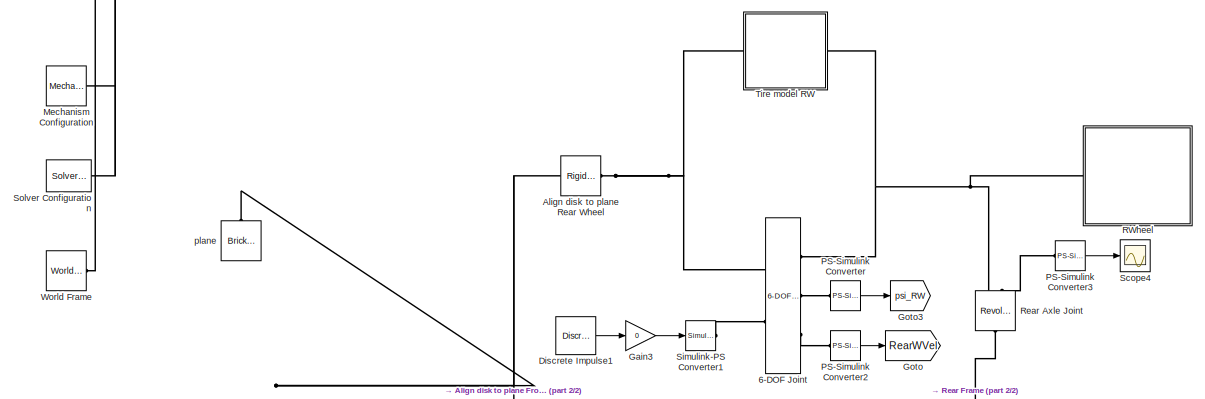
[diagram: root canvas - part 1/2, full width, top band]
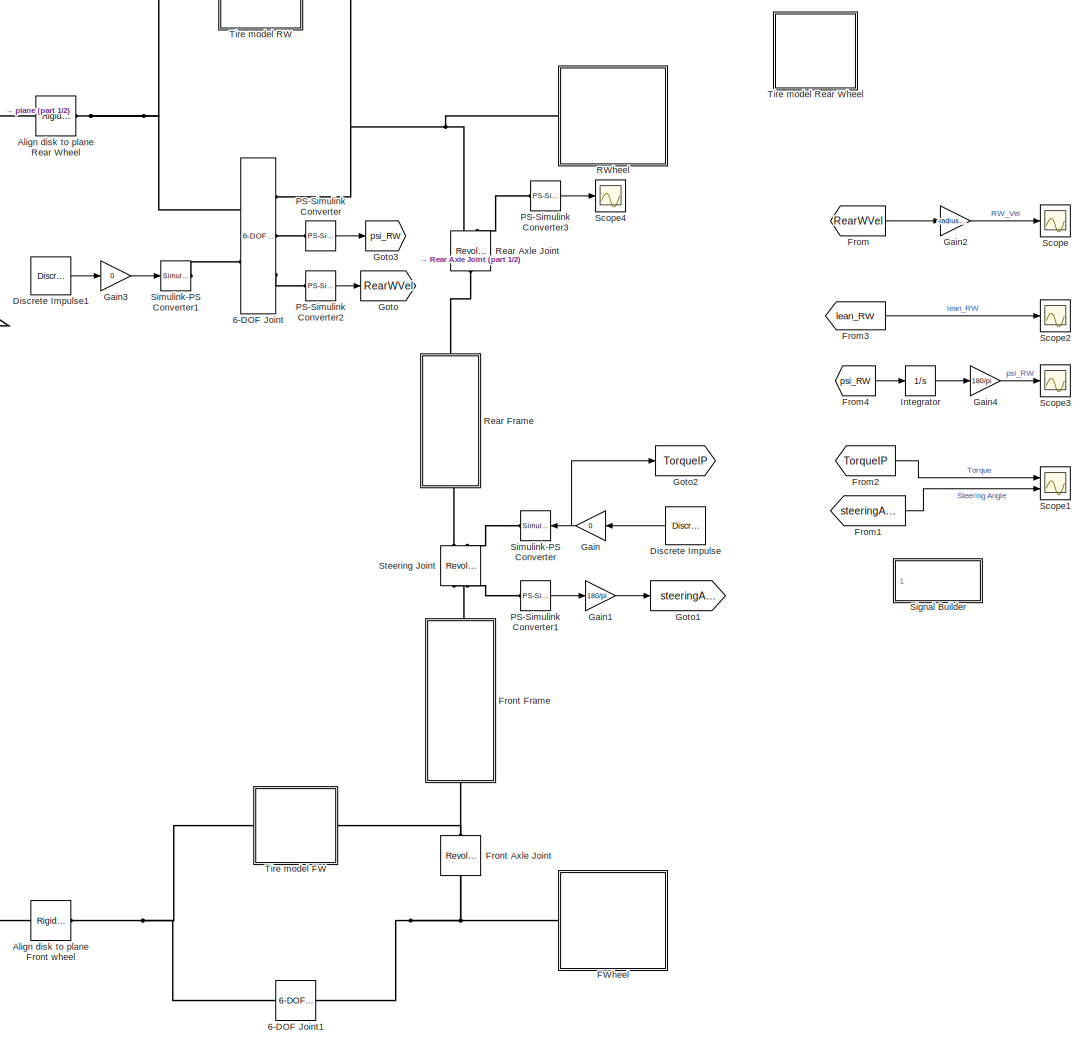
[diagram: root canvas - part 2/2, center side, full height]
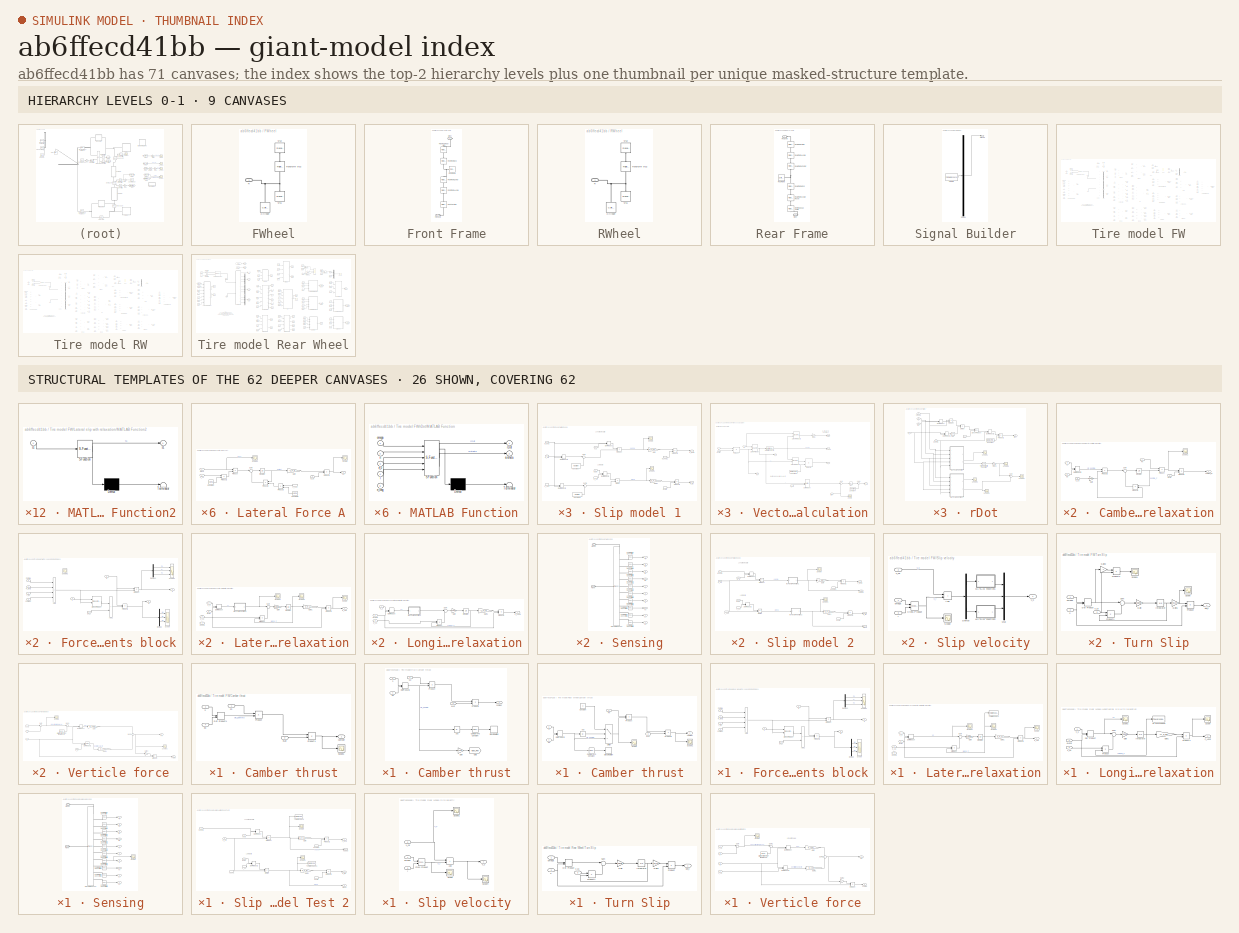
[diagram: thumbnail index - top-2 hierarchy levels (9 canvases) + 26 structural-template representatives of the remaining 62 canvases]
MODEL slx_ab6ffecd41bb
KIND model
CONFIG AbsTol = auto
CONFIG EnableMultiTasking = off
CONFIG FixedStep = auto
CONFIG InitFcn = BicycleInit
CONFIG MaxStep = auto
CONFIG MinStep = auto
CONFIG RelTol = 1e-3
CONFIG SampleTimeConstraint = Unconstrained
CONFIG Solver = VariableStepAuto
CONFIG SolverName = VariableStepAuto
CONFIG StartTime = 0.0
CONFIG StopTime = 100
BLOCK [Reference] 6-DOF Joint  REF=sm_lib/Joints/6-DOF Joint
  Ports = [0, 0, 0, 0, 0, 2, 3]
  SourceBlock = sm_lib/Joints/6-DOF Joint
  SourceProductBaseCode = MS
  SourceType = 6-DOF Joint
BLOCK [Reference] 6-DOF Joint1  REF=sm_lib/Joints/6-DOF Joint
  Ports = [0, 0, 0, 0, 0, 1, 1]
  SourceBlock = sm_lib/Joints/6-DOF Joint
  SourceProductBaseCode = MS
  SourceType = 6-DOF Joint
BLOCK [Reference] Align disk to plane Front wheel  REF=sm_lib/Frames and
Transforms/Rigid
Transform
  Ports = [0, 0, 0, 0, 0, 1, 1]
  SourceBlock = sm_lib/Frames and\nTransforms/Rigid\nTransform
  SourceProductBaseCode = MS
  SourceType = Rigid\nTransform
BLOCK [Reference] Align disk to plane Rear Wheel  REF=sm_lib/Frames and
Transforms/Rigid
Transform
  Ports = [0, 0, 0, 0, 0, 1, 1]
  SourceBlock = sm_lib/Frames and\nTransforms/Rigid\nTransform
  SourceProductBaseCode = MS
  SourceType = Rigid\nTransform
BLOCK [Reference] Discrete Impulse  REF=dspsrcs4/Discrete 
Impulse
  Ports = [0, 1]
  SourceBlock = dspsrcs4/Discrete \nImpulse
  SourceProductBaseCode = DS
  SourceType = Discrete Impulse
BLOCK [Reference] Discrete Impulse1  REF=dspsrcs4/Discrete 
Impulse
  Ports = [0, 1]
  SourceBlock = dspsrcs4/Discrete \nImpulse
  SourceProductBaseCode = DS
  SourceType = Discrete Impulse
BLOCK [SubSystem] FWheel
  AncestorBlock = Parts_Lib/Cylinder
  Ports = [0, 0, 0, 0, 0, 1]
  RequestExecContextInheritance = off
  Tag = CustomStyle
BLOCK [Reference] FWheel/Cylinder  REF=sm_lib/Body Elements/Cylindrical Solid
  NameLocation = left
  Ports = [0, 0, 0, 0, 0, 0, 1]
  SourceBlock = sm_lib/Body Elements/Cylindrical Solid
  SourceProductBaseCode = MS
  SourceType = Cylindrical Solid
BLOCK [PMIOPort] FWheel/R
  Side = Left
BLOCK [Reference] FWheel/Transform Vis2  REF=sm_lib/Frames and
Transforms/Rigid
Transform
  NameLocation = left
  Ports = [0, 0, 0, 0, 0, 1, 1]
  SourceBlock = sm_lib/Frames and\nTransforms/Rigid\nTransform
  SourceProductBaseCode = MS
  SourceType = Rigid\nTransform
BLOCK [Reference] FWheel/Vis1  REF=sm_lib/Body Elements/Revolved Solid
  NameLocation = right
  Ports = [0, 0, 0, 0, 0, 0, 1]
  SourceBlock = sm_lib/Body Elements/Revolved Solid
  SourceProductBaseCode = MS
  SourceType = Revolved Solid
BLOCK [Reference] FWheel/Vis2  REF=sm_lib/Body Elements/Revolved Solid
  NameLocation = right
  Ports = [0, 0, 0, 0, 0, 0, 1]
  SourceBlock = sm_lib/Body Elements/Revolved Solid
  SourceProductBaseCode = MS
  SourceType = Revolved Solid
BLOCK [From] From
  GotoTag = RearWVel
BLOCK [From] From1
  GotoTag = steeringAngle
BLOCK [From] From2
  GotoTag = TorqueIP
BLOCK [From] From3
  GotoTag = lean_RW
  TagVisibility = global
BLOCK [From] From4
  GotoTag = psi_RW
BLOCK [Reference] Front Axle Joint   REF=sm_lib/Joints/Revolute Joint
  NameLocation = right
  Ports = [0, 0, 0, 0, 0, 1, 1]
  SourceBlock = sm_lib/Joints/Revolute Joint
  SourceProductBaseCode = MS
  SourceType = Revolute Joint
BLOCK [SubSystem] Front Frame
  NameLocation = left
  Ports = [0, 0, 0, 0, 0, 1, 1]
  RequestExecContextInheritance = off
BLOCK [PMIOPort] Front Frame/Front Axle
  Port = 2
  Side = Left
BLOCK [Reference] Front Frame/Front Axle Align  REF=sm_lib/Frames and
Transforms/Rigid
Transform
  NameLocation = right
  Ports = [0, 0, 0, 0, 0, 1, 1]
  SourceBlock = sm_lib/Frames and\nTransforms/Rigid\nTransform
  SourceProductBaseCode = MS
  SourceType = Rigid\nTransform
BLOCK [Reference] Front Frame/Front Frame  REF=sm_lib/Body Elements/Cylindrical Solid
  NameLocation = top
  Ports = [0, 0, 0, 0, 0, 0, 1]
  SourceBlock = sm_lib/Body Elements/Cylindrical Solid
  SourceProductBaseCode = MS
  SourceType = Cylindrical Solid
BLOCK [Reference] Front Frame/Front Frame Angle  REF=sm_lib/Frames and
Transforms/Rigid
Transform
  NameLocation = right
  Ports = [0, 0, 0, 0, 0, 1, 1]
  SourceBlock = sm_lib/Frames and\nTransforms/Rigid\nTransform
  SourceProductBaseCode = MS
  SourceType = Rigid\nTransform
BLOCK [Reference] Front Frame/Front From Center  REF=sm_lib/Frames and
Transforms/Rigid
Transform
  NameLocation = right
  Ports = [0, 0, 0, 0, 0, 1, 1]
  SourceBlock = sm_lib/Frames and\nTransforms/Rigid\nTransform
  SourceProductBaseCode = MS
  SourceType = Rigid\nTransform
BLOCK [Reference] Front Frame/Front From End  REF=sm_lib/Frames and
Transforms/Rigid
Transform
  NameLocation = left
  Ports = [0, 0, 0, 0, 0, 1, 1]
  SourceBlock = sm_lib/Frames and\nTransforms/Rigid\nTransform
  SourceProductBaseCode = MS
  SourceType = Rigid\nTransform
BLOCK [Reference] Front Frame/Front and Rear Align  REF=sm_lib/Frames and
Transforms/Rigid
Transform
  NameLocation = right
  Ports = [0, 0, 0, 0, 0, 1, 1]
  SourceBlock = sm_lib/Frames and\nTransforms/Rigid\nTransform
  SourceProductBaseCode = MS
  SourceType = Rigid\nTransform
BLOCK [PMIOPort] Front Frame/Steer
  Side = Right
BLOCK [Gain] Gain
  Gain = 0
BLOCK [Gain] Gain1
  Gain = 180/pi
BLOCK [Gain] Gain2
  Gain = -radiusRW
BLOCK [Gain] Gain3
  Gain = 0
BLOCK [Gain] Gain4
  Gain = 180/pi
BLOCK [Goto] Goto
  GotoTag = RearWVel
BLOCK [Goto] Goto1
  GotoTag = steeringAngle
BLOCK [Goto] Goto2
  GotoTag = TorqueIP
BLOCK [Goto] Goto3
  GotoTag = psi_RW
BLOCK [Integrator] Integrator
  Ports = [1, 1]
BLOCK [Reference] Mechanism Configuration  REF=sm_lib/Utilities/Mechanism
Configuration
  Ports = [0, 0, 0, 0, 0, 0, 1]
  SourceBlock = sm_lib/Utilities/Mechanism\nConfiguration
  SourceProductBaseCode = MS
  SourceType = Mechanism\nConfiguration
BLOCK [Reference] PS-Simulink Converter  REF=nesl_utility/PS-Simulink
Converter
  Ports = [0, 1, 0, 0, 0, 1]
  SourceBlock = nesl_utility/PS-Simulink\nConverter
  SourceProductBaseCode = SS
  SourceType = PS-Simulink\nConverter
BLOCK [Reference] PS-Simulink Converter1  REF=nesl_utility/PS-Simulink
Converter
  Ports = [0, 1, 0, 0, 0, 1]
  SourceBlock = nesl_utility/PS-Simulink\nConverter
  SourceProductBaseCode = SS
  SourceType = PS-Simulink\nConverter
BLOCK [Reference] PS-Simulink Converter2  REF=nesl_utility/PS-Simulink
Converter
  Ports = [0, 1, 0, 0, 0, 1]
  SourceBlock = nesl_utility/PS-Simulink\nConverter
  SourceProductBaseCode = SS
  SourceType = PS-Simulink\nConverter
BLOCK [Reference] PS-Simulink Converter3  REF=nesl_utility/PS-Simulink
Converter
  Ports = [0, 1, 0, 0, 0, 1]
  SourceBlock = nesl_utility/PS-Simulink\nConverter
  SourceProductBaseCode = SS
  SourceType = PS-Simulink\nConverter
BLOCK [SubSystem] RWheel
  AncestorBlock = Parts_Lib/Cylinder
  Ports = [0, 0, 0, 0, 0, 1]
  RequestExecContextInheritance = off
  Tag = CustomStyle
BLOCK [Reference] RWheel/Cylinder  REF=sm_lib/Body Elements/Cylindrical Solid
  NameLocation = left
  Ports = [0, 0, 0, 0, 0, 0, 1]
  SourceBlock = sm_lib/Body Elements/Cylindrical Solid
  SourceProductBaseCode = MS
  SourceType = Cylindrical Solid
BLOCK [PMIOPort] RWheel/R
  Side = Left
BLOCK [Reference] RWheel/Transform Vis2  REF=sm_lib/Frames and
Transforms/Rigid
Transform
  NameLocation = left
  Ports = [0, 0, 0, 0, 0, 1, 1]
  SourceBlock = sm_lib/Frames and\nTransforms/Rigid\nTransform
  SourceProductBaseCode = MS
  SourceType = Rigid\nTransform
BLOCK [Reference] RWheel/Vis1  REF=sm_lib/Body Elements/Revolved Solid
  NameLocation = right
  Ports = [0, 0, 0, 0, 0, 0, 1]
  SourceBlock = sm_lib/Body Elements/Revolved Solid
  SourceProductBaseCode = MS
  SourceType = Revolved Solid
BLOCK [Reference] RWheel/Vis2  REF=sm_lib/Body Elements/Revolved Solid
  NameLocation = right
  Ports = [0, 0, 0, 0, 0, 0, 1]
  SourceBlock = sm_lib/Body Elements/Revolved Solid
  SourceProductBaseCode = MS
  SourceType = Revolved Solid
BLOCK [Reference] Rear Axle Joint  REF=sm_lib/Joints/Revolute Joint
  NameLocation = left
  Ports = [0, 0, 0, 0, 0, 1, 2]
  SourceBlock = sm_lib/Joints/Revolute Joint
  SourceProductBaseCode = MS
  SourceType = Revolute Joint
BLOCK [SubSystem] Rear Frame
  NameLocation = left
  Ports = [0, 0, 0, 0, 0, 1, 1]
  RequestExecContextInheritance = off
BLOCK [PMIOPort] Rear Frame/Rear Axle
  Side = Left
BLOCK [Reference] Rear Frame/Rear Frame  REF=sm_lib/Body Elements/Cylindrical Solid
  Ports = [0, 0, 0, 0, 0, 0, 1]
  SourceBlock = sm_lib/Body Elements/Cylindrical Solid
  SourceProductBaseCode = MS
  SourceType = Cylindrical Solid
BLOCK [Reference] Rear Frame/Rear Frame Align  REF=sm_lib/Frames and
Transforms/Rigid
Transform
  NameLocation = left
  Ports = [0, 0, 0, 0, 0, 1, 1]
  SourceBlock = sm_lib/Frames and\nTransforms/Rigid\nTransform
  SourceProductBaseCode = MS
  SourceType = Rigid\nTransform
BLOCK [Reference] Rear Frame/Rear Frame Angle  REF=sm_lib/Frames and
Transforms/Rigid
Transform
  NameLocation = left
  Ports = [0, 0, 0, 0, 0, 1, 1]
  SourceBlock = sm_lib/Frames and\nTransforms/Rigid\nTransform
  SourceProductBaseCode = MS
  SourceType = Rigid\nTransform
BLOCK [Reference] Rear Frame/Rear Frame Angle Reset  REF=sm_lib/Frames and
Transforms/Rigid
Transform
  NameLocation = left
  Ports = [0, 0, 0, 0, 0, 1, 1]
  SourceBlock = sm_lib/Frames and\nTransforms/Rigid\nTransform
  SourceProductBaseCode = MS
  SourceType = Rigid\nTransform
BLOCK [Reference] Rear Frame/Rear Frame Center  REF=sm_lib/Frames and
Transforms/Rigid
Transform
  NameLocation = left
  Ports = [0, 0, 0, 0, 0, 1, 1]
  SourceBlock = sm_lib/Frames and\nTransforms/Rigid\nTransform
  SourceProductBaseCode = MS
  SourceType = Rigid\nTransform
BLOCK [Reference] Rear Frame/Rear Frame End  REF=sm_lib/Frames and
Transforms/Rigid
Transform
  NameLocation = left
  Ports = [0, 0, 0, 0, 0, 1, 1]
  SourceBlock = sm_lib/Frames and\nTransforms/Rigid\nTransform
  SourceProductBaseCode = MS
  SourceType = Rigid\nTransform
BLOCK [PMIOPort] Rear Frame/Steer
  Port = 2
  Side = Right
BLOCK [Reference] Rear Frame/Steering Head Angle  REF=sm_lib/Frames and
Transforms/Rigid
Transform
  NameLocation = left
  Ports = [0, 0, 0, 0, 0, 1, 1]
  SourceBlock = sm_lib/Frames and\nTransforms/Rigid\nTransform
  SourceProductBaseCode = MS
  SourceType = Rigid\nTransform
BLOCK [Scope] Scope
  Floating = off
  NumInputPorts = 1
  Ports = [1]
  ScopeSpecificationString = Simulink.scopes.TimeScopeBlockCfg('CurrentConfiguration', extmgr.ConfigurationSet(extmgr.Configuration('Core','General UI',true),extmgr.Configuration('Core','Source UI',true),extmgr.Configuration('Sources','WiredSimulink',true,'DataLoggingVariableName','ScopeData1'),extmgr.Configuration('Visuals','Time Domain',true,'SerializedDisplays',{struct('MinYLimReal','-0.94701','MaxYLimReal','8.5231','YLabe...<+1435ch>
BLOCK [Scope] Scope1
  Floating = off
  NumInputPorts = 2
  Ports = [2]
  ScopeSpecificationString = Simulink.scopes.TimeScopeBlockCfg('CurrentConfiguration', extmgr.ConfigurationSet(extmgr.Configuration('Core','General UI',true),extmgr.Configuration('Core','Source UI',true),extmgr.Configuration('Sources','WiredSimulink',true,'DataLoggingVariableName','ScopeData2'),extmgr.Configuration('Visuals','Time Domain',true,'SerializedDisplays',{struct('MinYLimReal','-1.00000','MaxYLimReal','1.00000','YLab...<+2097ch>
BLOCK [Scope] Scope2
  Floating = off
  NumInputPorts = 1
  Ports = [1]
  ScopeSpecificationString = Simulink.scopes.TimeScopeBlockCfg('CurrentConfiguration', extmgr.ConfigurationSet(extmgr.Configuration('Core','General UI',true),extmgr.Configuration('Core','Source UI',true),extmgr.Configuration('Sources','WiredSimulink',true,'DataLoggingVariableName','ScopeData1'),extmgr.Configuration('Visuals','Time Domain',true,'SerializedDisplays',{struct('MinYLimReal','-0.02065','MaxYLimReal','0.02748','YLab...<+1429ch>
BLOCK [Scope] Scope3
  Floating = off
  NumInputPorts = 1
  Ports = [1]
  ScopeSpecificationString = Simulink.scopes.TimeScopeBlockCfg('CurrentConfiguration', extmgr.ConfigurationSet(extmgr.Configuration('Core','General UI',true),extmgr.Configuration('Core','Source UI',true),extmgr.Configuration('Sources','WiredSimulink',true,'DataLoggingVariableName','ScopeData1'),extmgr.Configuration('Visuals','Time Domain',true,'SerializedDisplays',{struct('MinYLimReal','-0.02753','MaxYLimReal','0.00306','YLab...<+1438ch>
BLOCK [Scope] Scope4
  Floating = off
  NumInputPorts = 1
  Ports = [1]
  ScopeSpecificationString = Simulink.scopes.TimeScopeBlockCfg('CurrentConfiguration', extmgr.ConfigurationSet(extmgr.Configuration('Core','General UI',true),extmgr.Configuration('Core','Source UI',true),extmgr.Configuration('Sources','WiredSimulink',true,'DataLoggingVariableName','ScopeData2'),extmgr.Configuration('Visuals','Time Domain',true,'SerializedDisplays',{struct('MinYLimReal','-0.02538','MaxYLimReal','-0.01957','YLa...<+1429ch>
BLOCK [SubSystem] Signal Builder
  ClipboardFcn = sigbuilder_block('clipboard');
  CloseFcn = sigbuilder_block('close');
  Commented = on
  ContinueFcn = sigbuilder_block('continue');
  CopyFcn = sigbuilder_block('copy');
  DeleteFcn = sigbuilder_block('delete');
  LoadFcn = sigbuilder_block('load');
  MaskHideContents = on
  ModelCloseFcn = sigbuilder_block('modelClose');
  NameChangeFcn = sigbuilder_block('namechange');
  OpenFcn = sigbuilder_block('open',[437.25 153 550.5 359.25 ]);
  PauseFcn = sigbuilder_block('pause');
  Ports = [0, 1]
  PreSaveFcn = sigbuilder_block('preSave');
  RequestExecContextInheritance = off
  StartFcn = sigbuilder_block('start');
  StopFcn = sigbuilder_block('stop');
  Tag = STV Subsys
BLOCK [Demux] Signal Builder/Demux
  DisplayOption = none
  Outputs = 1
  Ports = [1, 1]
  Tag = STV Demux
BLOCK [FromWorkspace] Signal Builder/FromWs
  Tag = STV FromWs
  VariableName = tuvar
BLOCK [Outport] Signal Builder/Signal 1
  Tag = STV Outport
  VectorParamsAs1DForOutWhenUnconnected = off
BLOCK [Reference] Simulink-PS Converter  REF=nesl_utility/Simulink-PS
Converter
  Ports = [1, 0, 0, 0, 0, 0, 1]
  SourceBlock = nesl_utility/Simulink-PS\nConverter
  SourceProductBaseCode = SS
  SourceType = Simulink-PS\nConverter
BLOCK [Reference] Simulink-PS Converter1  REF=nesl_utility/Simulink-PS
Converter
  Ports = [1, 0, 0, 0, 0, 0, 1]
  SourceBlock = nesl_utility/Simulink-PS\nConverter
  SourceProductBaseCode = SS
  SourceType = Simulink-PS\nConverter
BLOCK [Reference] Solver Configuration  REF=nesl_utility/Solver
Configuration
  Ports = [0, 0, 0, 0, 0, 0, 1]
  SourceBlock = nesl_utility/Solver\nConfiguration
  SourceProductBaseCode = SS
  SourceType = Solver\nConfiguration
BLOCK [Reference] Steering Joint  REF=sm_lib/Joints/Revolute Joint
  NameLocation = left
  Ports = [0, 0, 0, 0, 0, 2, 2]
  SourceBlock = sm_lib/Joints/Revolute Joint
  SourceProductBaseCode = MS
  SourceType = Revolute Joint
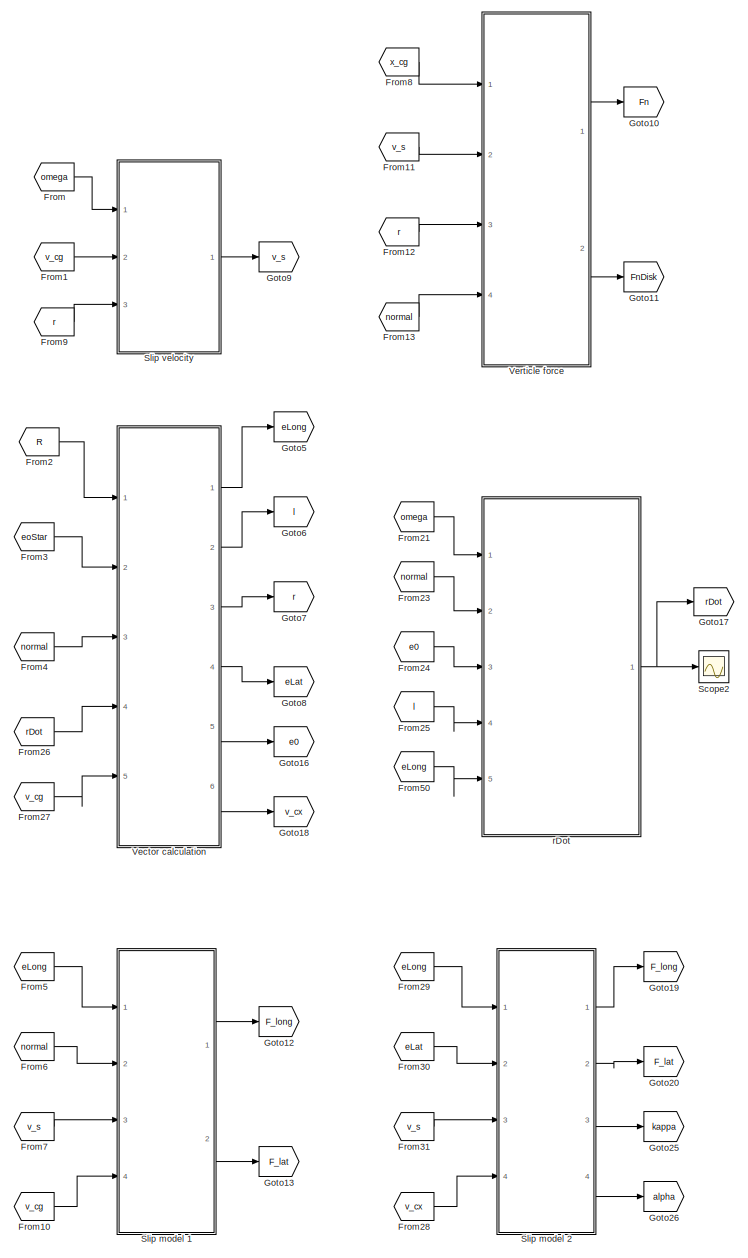
[diagram: Tire model FW - part 1/4, center side, full height]
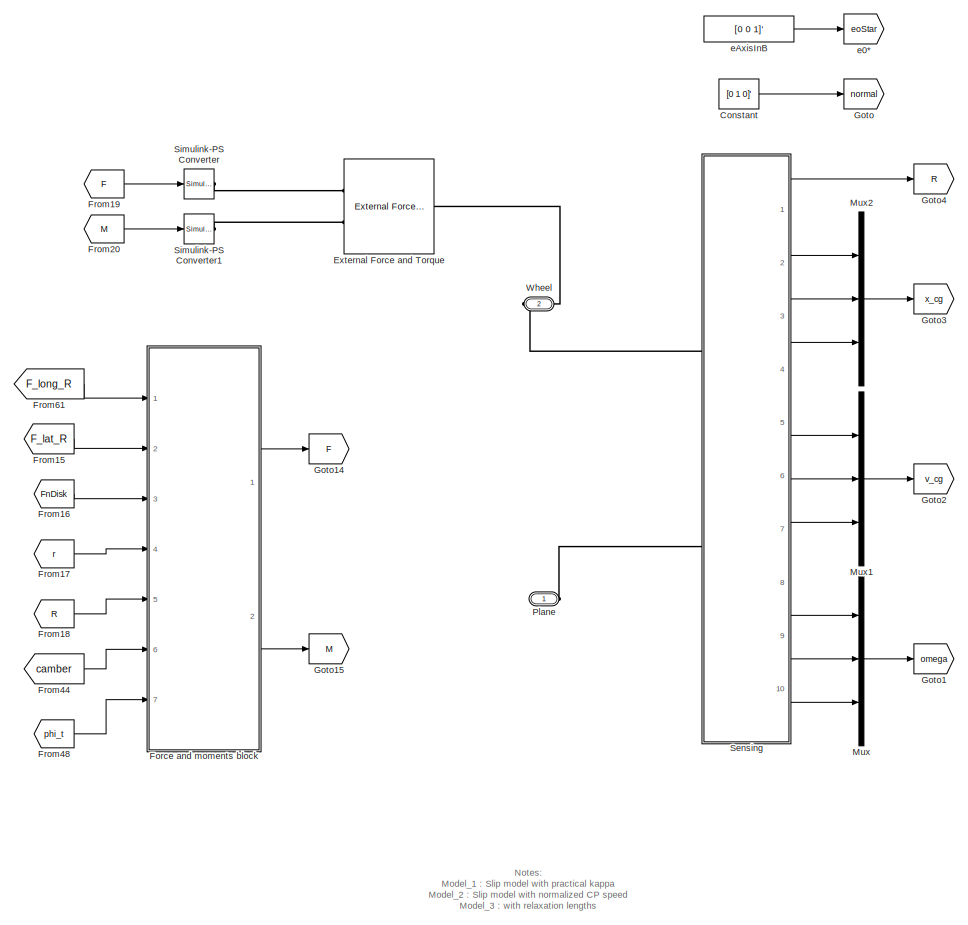
[diagram: Tire model FW - part 2/4, middle left region]
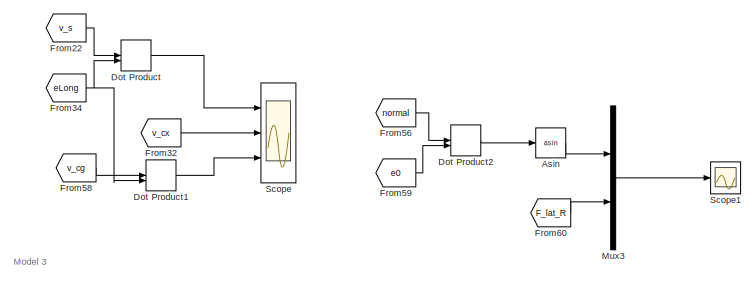
[diagram: Tire model FW - part 3/4, top right region]
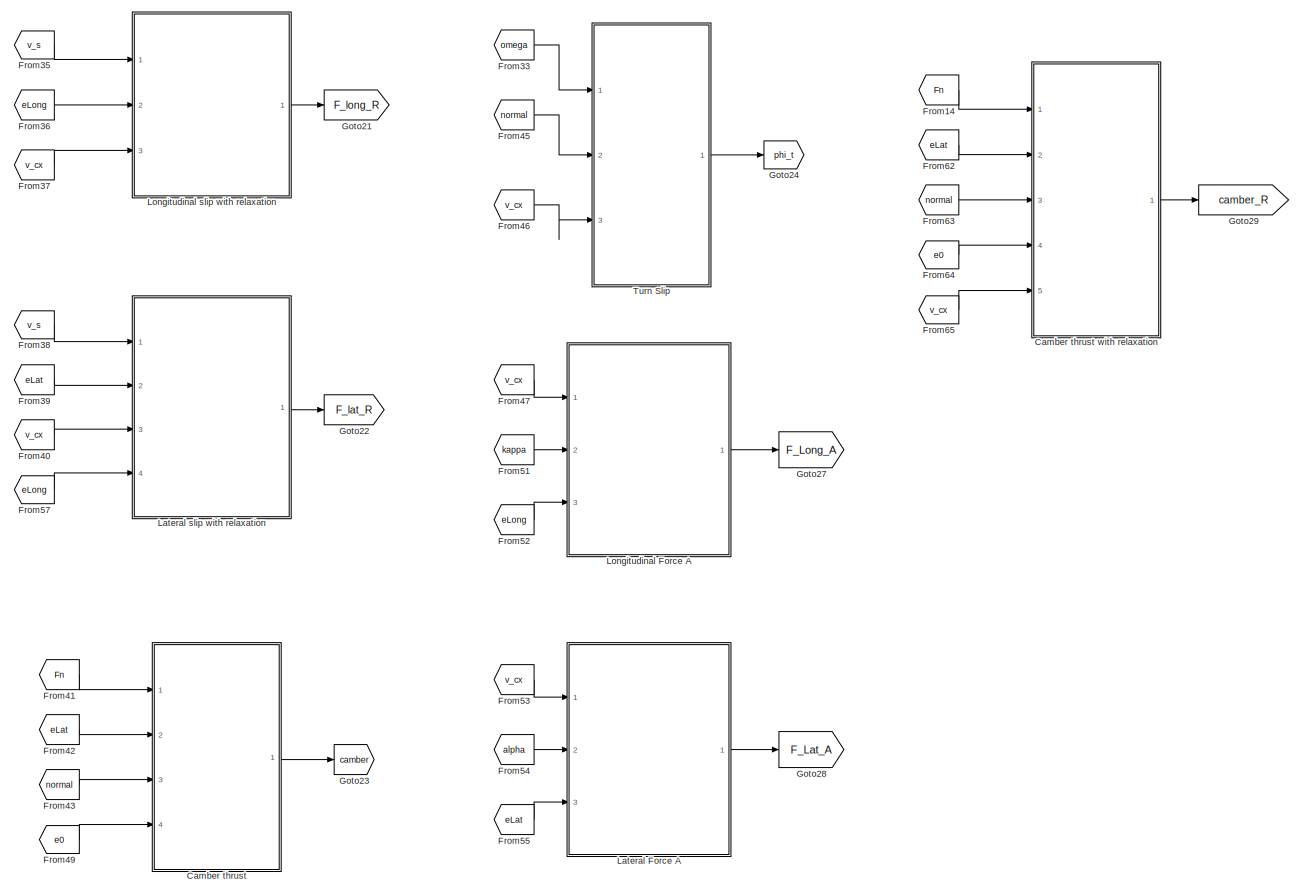
[diagram: Tire model FW - part 4/4, middle right region]
BLOCK [SubSystem] Tire model FW
  Ports = [0, 0, 0, 0, 0, 1, 1]
  RequestExecContextInheritance = off
BLOCK [Trigonometry] Tire model FW/Asin
  Operator = asin
  Ports = [1, 1]
BLOCK [SubSystem] Tire model FW/Camber thrust
  Ports = [4, 1]
  RequestExecContextInheritance = off
BLOCK [SubSystem] Tire model FW/Camber thrust with relaxation
  Commented = on
  Ports = [5, 1]
  RequestExecContextInheritance = off
BLOCK [DotProduct] Tire model FW/Camber thrust with relaxation/Dot Product1
  OutDataTypeStr = Inherit: Inherit via internal rule
BLOCK [Inport] Tire model FW/Camber thrust with relaxation/Fn
BLOCK [Gain] Tire model FW/Camber thrust with relaxation/Gain
  Gain = 1/sigma
BLOCK [Integrator] Tire model FW/Camber thrust with relaxation/Integrator
  Ports = [1, 1]
BLOCK [Product] Tire model FW/Camber thrust with relaxation/Product
  Ports = [2, 1]
BLOCK [Product] Tire model FW/Camber thrust with relaxation/Product1
  Ports = [2, 1]
BLOCK [Product] Tire model FW/Camber thrust with relaxation/Product2
  Ports = [2, 1]
BLOCK [Product] Tire model FW/Camber thrust with relaxation/Product3
  Ports = [2, 1]
BLOCK [Scope] Tire model FW/Camber thrust with relaxation/Scope1
  Floating = off
  NumInputPorts = 1
  Ports = [1]
  ScopeSpecificationString = Simulink.scopes.TimeScopeBlockCfg('CurrentConfiguration', extmgr.ConfigurationSet(extmgr.Configuration('Core','General UI',true),extmgr.Configuration('Core','Source UI',true),extmgr.Configuration('Sources','WiredSimulink',true,'DataLoggingVariableName','ScopeData3'),extmgr.Configuration('Visuals','Time Domain',true,'SerializedDisplays',{struct('MinYLimReal','-25.43511','MaxYLimReal','9.20191','YLa...<+1470ch>
BLOCK [Sum] Tire model FW/Camber thrust with relaxation/Sum
  Inputs = |+-
  Ports = [2, 1]
BLOCK [Inport] Tire model FW/Camber thrust with relaxation/V_cx
  Port = 5
BLOCK [Outport] Tire model FW/Camber thrust with relaxation/camber_R
  VectorParamsAs1DForOutWhenUnconnected = off
BLOCK [Inport] Tire model FW/Camber thrust with relaxation/e0
  Port = 4
BLOCK [Inport] Tire model FW/Camber thrust with relaxation/eLat
  Port = 2
BLOCK [Inport] Tire model FW/Camber thrust with relaxation/n
  Port = 3
BLOCK [DotProduct] Tire model FW/Camber thrust/Dot Product1
  OutDataTypeStr = Inherit: Inherit via internal rule
BLOCK [Inport] Tire model FW/Camber thrust/Fn
BLOCK [Product] Tire model FW/Camber thrust/Product
  Ports = [2, 1]
BLOCK [Product] Tire model FW/Camber thrust/Product1
  Ports = [2, 1]
BLOCK [Scope] Tire model FW/Camber thrust/Scope1
  Floating = off
  NumInputPorts = 1
  Ports = [1]
  ScopeSpecificationString = Simulink.scopes.TimeScopeBlockCfg('CurrentConfiguration', extmgr.ConfigurationSet(extmgr.Configuration('Core','General UI',true),extmgr.Configuration('Core','Source UI',true),extmgr.Configuration('Sources','WiredSimulink',true,'DataLoggingVariableName','ScopeData3'),extmgr.Configuration('Visuals','Time Domain',true,'SerializedDisplays',{struct('MinYLimReal','-25.43511','MaxYLimReal','9.20191','YLa...<+1499ch>
BLOCK [Outport] Tire model FW/Camber thrust/camber
  VectorParamsAs1DForOutWhenUnconnected = off
BLOCK [Inport] Tire model FW/Camber thrust/e0
  Port = 4
BLOCK [Inport] Tire model FW/Camber thrust/eLat
  Port = 2
BLOCK [Inport] Tire model FW/Camber thrust/n
  Port = 3
BLOCK [Constant] Tire model FW/Constant
  Value = [0 1 0]'
BLOCK [DotProduct] Tire model FW/Dot Product
  Commented = on
  OutDataTypeStr = Inherit: Inherit via internal rule
BLOCK [DotProduct] Tire model FW/Dot Product1
  Commented = on
  OutDataTypeStr = Inherit: Inherit via internal rule
BLOCK [DotProduct] Tire model FW/Dot Product2
  OutDataTypeStr = Inherit: Inherit via internal rule
BLOCK [Reference] Tire model FW/External Force and Torque  REF=sm_lib/Forces and
Torques/External Force
and Torque
  Ports = [0, 0, 0, 0, 0, 2, 1]
  SourceBlock = sm_lib/Forces and\nTorques/External Force\nand Torque
  SourceProductBaseCode = MS
  SourceType = External Force\nand Torque
BLOCK [SubSystem] Tire model FW/Force and moments block
  Ports = [7, 2]
  RequestExecContextInheritance = off
BLOCK [Sum] Tire model FW/Force and moments block/Add
  IconShape = rectangular
  Inputs = 4
  Ports = [4, 1]
BLOCK [Sum] Tire model FW/Force and moments block/Add1
  IconShape = rectangular
  Ports = [2, 1]
BLOCK [Reference] Tire model FW/Force and moments block/Cross Product  REF=vrlib/Utilities/Cross Product
  Ports = [2, 1]
  SourceBlock = vrlib/Utilities/Cross Product
  SourceProductBaseCode = SL
  SourceType = Cross Product
BLOCK [Demux] Tire model FW/Force and moments block/Demux
  Outputs = 3
  Ports = [1, 3]
BLOCK [Demux] Tire model FW/Force and moments block/Demux1
  Outputs = 3
  Ports = [1, 3]
BLOCK [Outport] Tire model FW/Force and moments block/F
  VectorParamsAs1DForOutWhenUnconnected = off
BLOCK [Inport] Tire model FW/Force and moments block/F_lat
  Port = 2
BLOCK [Inport] Tire model FW/Force and moments block/F_long
BLOCK [Inport] Tire model FW/Force and moments block/FnDisk
  Port = 3
BLOCK [Outport] Tire model FW/Force and moments block/M
  Port = 2
  VectorParamsAs1DForOutWhenUnconnected = off
BLOCK [Product] Tire model FW/Force and moments block/Product
  Inputs = /*
  Multiplication = Matrix(*)
  Ports = [2, 1]
BLOCK [Product] Tire model FW/Force and moments block/Product1
  Inputs = /*
  Multiplication = Matrix(*)
  Ports = [2, 1]
BLOCK [Inport] Tire model FW/Force and moments block/R
  Port = 5
BLOCK [Scope] Tire model FW/Force and moments block/Scope
  Floating = off
  NumInputPorts = 3
  Ports = [3]
  ScopeSpecificationString = Simulink.scopes.TimeScopeBlockCfg('CurrentConfiguration', extmgr.ConfigurationSet(extmgr.Configuration('Core','General UI',true),extmgr.Configuration('Core','Source UI',true),extmgr.Configuration('Sources','WiredSimulink',true,'DataLoggingVariableName','ScopeData5'),extmgr.Configuration('Visuals','Time Domain',true,'SerializedDisplays',{struct('MinYLimReal','-42.28617','MaxYLimReal','22.96915','YL...<+2808ch>
BLOCK [Scope] Tire model FW/Force and moments block/Scope1
  Floating = off
  NumInputPorts = 3
  Ports = [3]
  ScopeSpecificationString = Simulink.scopes.TimeScopeBlockCfg('CurrentConfiguration', extmgr.ConfigurationSet(extmgr.Configuration('Core','General UI',true),extmgr.Configuration('Core','Source UI',true),extmgr.Configuration('Sources','WiredSimulink',true,'DataLoggingVariableName','ScopeData4'),extmgr.Configuration('Visuals','Time Domain',true,'SerializedDisplays',{struct('MinYLimReal','-24.5245','MaxYLimReal','24.5245','YLab...<+2810ch>
BLOCK [Scope] Tire model FW/Force and moments block/Scope2
  Floating = off
  NumInputPorts = 1
  Ports = [1]
  ScopeSpecificationString = Simulink.scopes.TimeScopeBlockCfg('CurrentConfiguration', extmgr.ConfigurationSet(extmgr.Configuration('Core','General UI',true),extmgr.Configuration('Core','Source UI',true),extmgr.Configuration('Sources','WiredSimulink',true,'DataLoggingVariableName','ScopeData2'),extmgr.Configuration('Visuals','Time Domain',true,'SerializedDisplays',{struct('MinYLimReal','13.13469','MaxYLimReal','27.22852','YLa...<+1474ch>
BLOCK [Inport] Tire model FW/Force and moments block/camber
  Port = 6
BLOCK [Inport] Tire model FW/Force and moments block/phi_t
  Port = 7
BLOCK [Inport] Tire model FW/Force and moments block/r
  Port = 4
BLOCK [From] Tire model FW/From
  GotoTag = omega
BLOCK [From] Tire model FW/From1
  GotoTag = v_cg
BLOCK [From] Tire model FW/From10
  Commented = on
  GotoTag = v_cg
BLOCK [From] Tire model FW/From11
  GotoTag = v_s
BLOCK [From] Tire model FW/From12
  GotoTag = r
BLOCK [From] Tire model FW/From13
  GotoTag = normal
BLOCK [From] Tire model FW/From14
  Commented = on
  GotoTag = Fn
BLOCK [From] Tire model FW/From15
  GotoTag = F_lat_R
BLOCK [From] Tire model FW/From16
  GotoTag = FnDisk
BLOCK [From] Tire model FW/From17
  GotoTag = r
BLOCK [From] Tire model FW/From18
  GotoTag = R
BLOCK [From] Tire model FW/From19
  GotoTag = F
BLOCK [From] Tire model FW/From2
  GotoTag = R
BLOCK [From] Tire model FW/From20
  GotoTag = M
BLOCK [From] Tire model FW/From21
  GotoTag = omega
BLOCK [From] Tire model FW/From22
  Commented = on
  GotoTag = v_s
BLOCK [From] Tire model FW/From23
  GotoTag = normal
BLOCK [From] Tire model FW/From24
  GotoTag = e0
BLOCK [From] Tire model FW/From25
  GotoTag = l
BLOCK [From] Tire model FW/From26
  GotoTag = rDot
BLOCK [From] Tire model FW/From27
  GotoTag = v_cg
BLOCK [From] Tire model FW/From28
  GotoTag = v_cx
BLOCK [From] Tire model FW/From29
  GotoTag = eLong
BLOCK [From] Tire model FW/From3
  GotoTag = eoStar
BLOCK [From] Tire model FW/From30
  GotoTag = eLat
BLOCK [From] Tire model FW/From31
  GotoTag = v_s
BLOCK [From] Tire model FW/From32
  Commented = on
  GotoTag = v_cx
BLOCK [From] Tire model FW/From33
  GotoTag = omega
BLOCK [From] Tire model FW/From34
  Commented = on
  GotoTag = eLong
BLOCK [From] Tire model FW/From35
  GotoTag = v_s
BLOCK [From] Tire model FW/From36
  GotoTag = eLong
BLOCK [From] Tire model FW/From37
  GotoTag = v_cx
BLOCK [From] Tire model FW/From38
  GotoTag = v_s
BLOCK [From] Tire model FW/From39
  GotoTag = eLat
BLOCK [From] Tire model FW/From4
  GotoTag = normal
BLOCK [From] Tire model FW/From40
  GotoTag = v_cx
BLOCK [From] Tire model FW/From41
  GotoTag = Fn
BLOCK [From] Tire model FW/From42
  GotoTag = eLat
BLOCK [From] Tire model FW/From43
  GotoTag = normal
BLOCK [From] Tire model FW/From44
  GotoTag = camber
BLOCK [From] Tire model FW/From45
  GotoTag = normal
BLOCK [From] Tire model FW/From46
  GotoTag = v_cx
BLOCK [From] Tire model FW/From47
  Commented = on
  GotoTag = v_cx
BLOCK [From] Tire model FW/From48
  GotoTag = phi_t
BLOCK [From] Tire model FW/From49
  GotoTag = e0
BLOCK [From] Tire model FW/From5
  Commented = on
  GotoTag = eLong
BLOCK [From] Tire model FW/From50
  GotoTag = eLong
BLOCK [From] Tire model FW/From51
  Commented = on
  GotoTag = kappa
BLOCK [From] Tire model FW/From52
  Commented = on
  GotoTag = eLong
BLOCK [From] Tire model FW/From53
  Commented = on
  GotoTag = v_cx
BLOCK [From] Tire model FW/From54
  Commented = on
  GotoTag = alpha
BLOCK [From] Tire model FW/From55
  Commented = on
  GotoTag = eLat
BLOCK [From] Tire model FW/From56
  GotoTag = normal
BLOCK [From] Tire model FW/From57
  GotoTag = eLong
BLOCK [From] Tire model FW/From58
  Commented = on
  GotoTag = v_cg
BLOCK [From] Tire model FW/From59
  GotoTag = e0
BLOCK [From] Tire model FW/From6
  Commented = on
  GotoTag = normal
BLOCK [From] Tire model FW/From60
  GotoTag = F_lat_R
BLOCK [From] Tire model FW/From61
  GotoTag = F_long_R
BLOCK [From] Tire model FW/From62
  Commented = on
  GotoTag = eLat
BLOCK [From] Tire model FW/From63
  Commented = on
  GotoTag = normal
BLOCK [From] Tire model FW/From64
  Commented = on
  GotoTag = e0
BLOCK [From] Tire model FW/From65
  Commented = on
  GotoTag = v_cx
BLOCK [From] Tire model FW/From7
  Commented = on
  GotoTag = v_s
BLOCK [From] Tire model FW/From8
  GotoTag = x_cg
BLOCK [From] Tire model FW/From9
  GotoTag = r
BLOCK [Goto] Tire model FW/Goto
  GotoTag = normal
BLOCK [Goto] Tire model FW/Goto1
  GotoTag = omega
BLOCK [Goto] Tire model FW/Goto10
  GotoTag = Fn
BLOCK [Goto] Tire model FW/Goto11
  GotoTag = FnDisk
BLOCK [Goto] Tire model FW/Goto12
  Commented = on
  GotoTag = F_long
BLOCK [Goto] Tire model FW/Goto13
  Commented = on
  GotoTag = F_lat
BLOCK [Goto] Tire model FW/Goto14
  GotoTag = F
BLOCK [Goto] Tire model FW/Goto15
  GotoTag = M
BLOCK [Goto] Tire model FW/Goto16
  GotoTag = e0
BLOCK [Goto] Tire model FW/Goto17
  GotoTag = rDot
BLOCK [Goto] Tire model FW/Goto18
  GotoTag = v_cx
BLOCK [Goto] Tire model FW/Goto19
  GotoTag = F_long
BLOCK [Goto] Tire model FW/Goto2
  GotoTag = v_cg
BLOCK [Goto] Tire model FW/Goto20
  GotoTag = F_lat
BLOCK [Goto] Tire model FW/Goto21
  GotoTag = F_long_R
BLOCK [Goto] Tire model FW/Goto22
  GotoTag = F_lat_R
BLOCK [Goto] Tire model FW/Goto23
  GotoTag = camber
BLOCK [Goto] Tire model FW/Goto24
  GotoTag = phi_t
BLOCK [Goto] Tire model FW/Goto25
  GotoTag = kappa
BLOCK [Goto] Tire model FW/Goto26
  GotoTag = alpha
BLOCK [Goto] Tire model FW/Goto27
  Commented = on
  GotoTag = F_Long_A
BLOCK [Goto] Tire model FW/Goto28
  Commented = on
  GotoTag = F_Lat_A
BLOCK [Goto] Tire model FW/Goto29
  Commented = on
  GotoTag = camber_R
BLOCK [Goto] Tire model FW/Goto3
  GotoTag = x_cg
BLOCK [Goto] Tire model FW/Goto4
  GotoTag = R
BLOCK [Goto] Tire model FW/Goto5
  GotoTag = eLong
BLOCK [Goto] Tire model FW/Goto6
  GotoTag = l
BLOCK [Goto] Tire model FW/Goto7
  GotoTag = r
BLOCK [Goto] Tire model FW/Goto8
  GotoTag = eLat
BLOCK [Goto] Tire model FW/Goto9
  GotoTag = v_s
BLOCK [SubSystem] Tire model FW/Lateral Force A
  Commented = on
  Ports = [3, 1]
  RequestExecContextInheritance = off
BLOCK [Constant] Tire model FW/Lateral Force A/Constant
  Value = sigma
BLOCK [Constant] Tire model FW/Lateral Force A/Constant1
  Value = sigma
BLOCK [Outport] Tire model FW/Lateral Force A/Fz
  VectorParamsAs1DForOutWhenUnconnected = off
BLOCK [Gain] Tire model FW/Lateral Force A/Gain
  Gain = -C_F_alpha
BLOCK [Integrator] Tire model FW/Lateral Force A/Integrator
  Ports = [1, 1]
BLOCK [Product] Tire model FW/Lateral Force A/Product
  Ports = [2, 1]
BLOCK [Product] Tire model FW/Lateral Force A/Product1
  Ports = [2, 1]
BLOCK [Product] Tire model FW/Lateral Force A/Product2
  Ports = [2, 1]
BLOCK [Product] Tire model FW/Lateral Force A/Product3
  Ports = [2, 1]
BLOCK [Product] Tire model FW/Lateral Force A/Product4
  Ports = [2, 1]
BLOCK [Scope] Tire model FW/Lateral Force A/Scope
  Floating = off
  NumInputPorts = 1
  Ports = [1]
  ScopeSpecificationString = Simulink.scopes.TimeScopeBlockCfg('CurrentConfiguration', extmgr.ConfigurationSet(extmgr.Configuration('Core','General UI',true),extmgr.Configuration('Core','Source UI',true),extmgr.Configuration('Sources','WiredSimulink',true,'DataLoggingVariableName','ScopeData1'),extmgr.Configuration('Visuals','Time Domain',true,'SerializedDisplays',{struct('MinYLimReal','-50.51292','MaxYLimReal','37.87807','YL...<+1455ch>  <repeated x3 — deduplicated; at blocks: Scope>
BLOCK [Scope] Tire model FW/Lateral Force A/Scope1
  Floating = off
  NumInputPorts = 1
  Ports = [1]
  ScopeSpecificationString = Simulink.scopes.TimeScopeBlockCfg('CurrentConfiguration', extmgr.ConfigurationSet(extmgr.Configuration('Core','General UI',true),extmgr.Configuration('Core','Source UI',true),extmgr.Configuration('Sources','WiredSimulink',true,'DataLoggingVariableName','ScopeData2'),extmgr.Configuration('Visuals','Time Domain',true,'SerializedDisplays',{struct('MinYLimReal','-57.26425','MaxYLimReal','71.87686','YL...<+1425ch>  <repeated x3 — deduplicated; at blocks: Scope1>
BLOCK [Sum] Tire model FW/Lateral Force A/Sum
  Inputs = |+-
  Ports = [2, 1]
BLOCK [Inport] Tire model FW/Lateral Force A/alpha
  Port = 2
BLOCK [Inport] Tire model FW/Lateral Force A/eLat
  Port = 3
BLOCK [Inport] Tire model FW/Lateral Force A/v_cx
BLOCK [InportShadow] Tire model FW/Lateral Force A/v_cx1
BLOCK [SubSystem] Tire model FW/Lateral slip with relaxation
  Ports = [4, 1]
  RequestExecContextInheritance = off
BLOCK [DotProduct] Tire model FW/Lateral slip with relaxation/Dot Product
  OutDataTypeStr = Inherit: Inherit via internal rule
BLOCK [Outport] Tire model FW/Lateral slip with relaxation/F_Lat
  VectorParamsAs1DForOutWhenUnconnected = off
BLOCK [Gain] Tire model FW/Lateral slip with relaxation/Gain
  Gain = 1/sigma
BLOCK [Gain] Tire model FW/Lateral slip with relaxation/Gain1
  Gain = -C_F_alpha
BLOCK [Integrator] Tire model FW/Lateral slip with relaxation/Integrator
  Ports = [1, 1]
BLOCK [SubSystem] Tire model FW/Lateral slip with relaxation/MATLAB Function2
  Commented = through
  ErrorFcn = Stateflow.Translate.translate
  PermitHierarchicalResolution = ExplicitOnly
  Ports = [1, 1]
  RequestExecContextInheritance = off
  SFBlockType = MATLAB Function
  TreatAsAtomicUnit = on
BLOCK [Demux] Tire model FW/Lateral slip with relaxation/MATLAB Function2/ Demux 
  Outputs = 1
  Ports = [1, 1]
BLOCK [S-Function] Tire model FW/Lateral slip with relaxation/MATLAB Function2/ SFunction 
  EnableBusSupport = off
  FunctionName = sf_sfun
  PortCounts = [1 2]
  Ports = [1, 2]
  SFcnIsStateOwnerBlock = off
  SFunctionDeploymentMode = off
  Tag = Stateflow S-Function 3
BLOCK [Terminator] Tire model FW/Lateral slip with relaxation/MATLAB Function2/ Terminator 
BLOCK [Outport] Tire model FW/Lateral slip with relaxation/MATLAB Function2/s1
  VectorParamsAs1DForOutWhenUnconnected = off
BLOCK [Inport] Tire model FW/Lateral slip with relaxation/MATLAB Function2/s1 
BLOCK [Product] Tire model FW/Lateral slip with relaxation/Product
  Ports = [2, 1]
BLOCK [Product] Tire model FW/Lateral slip with relaxation/Product1
  Ports = [2, 1]
BLOCK [Scope] Tire model FW/Lateral slip with relaxation/Scope
  Floating = off
  NumInputPorts = 1
  Ports = [1]
  ScopeSpecificationString = Simulink.scopes.TimeScopeBlockCfg('CurrentConfiguration', extmgr.ConfigurationSet(extmgr.Configuration('Core','General UI',true),extmgr.Configuration('Core','Source UI',true),extmgr.Configuration('Sources','WiredSimulink',true,'DataLoggingVariableName','ScopeData4'),extmgr.Configuration('Visuals','Time Domain',true,'SerializedDisplays',{struct('MinYLimReal','-8.38765','MaxYLimReal','7.69064','YLab...<+1493ch>  <repeated x3 — deduplicated; at blocks: Scope>
BLOCK [Scope] Tire model FW/Lateral slip with relaxation/Scope1
  Floating = off
  NumInputPorts = 1
  Ports = [1]
  ScopeSpecificationString = Simulink.scopes.TimeScopeBlockCfg('CurrentConfiguration', extmgr.ConfigurationSet(extmgr.Configuration('Core','General UI',true),extmgr.Configuration('Core','Source UI',true),extmgr.Configuration('Sources','WiredSimulink',true,'DataLoggingVariableName','ScopeData3'),extmgr.Configuration('Visuals','Time Domain',true,'SerializedDisplays',{struct('MinYLimReal','-0.00076','MaxYLimReal','0.00071','YLab...<+1475ch>
BLOCK [Scope] Tire model FW/Lateral slip with relaxation/Scope2
  Floating = off
  NumInputPorts = 1
  Ports = [1]
  ScopeSpecificationString = Simulink.scopes.TimeScopeBlockCfg('CurrentConfiguration', extmgr.ConfigurationSet(extmgr.Configuration('Core','General UI',true),extmgr.Configuration('Core','Source UI',true),extmgr.Configuration('Sources','WiredSimulink',true,'DataLoggingVariableName','ScopeData2'),extmgr.Configuration('Visuals','Time Domain',true,'SerializedDisplays',{struct('MinYLimReal','-0.00018','MaxYLimReal','0.00002','YLab...<+1419ch>
BLOCK [Sum] Tire model FW/Lateral slip with relaxation/Sum
  Inputs = |+-
  Ports = [2, 1]
BLOCK [Inport] Tire model FW/Lateral slip with relaxation/eLat
  Port = 2
BLOCK [Inport] Tire model FW/Lateral slip with relaxation/eLong
  Port = 4
BLOCK [Inport] Tire model FW/Lateral slip with relaxation/v_cx
  Port = 3
BLOCK [Inport] Tire model FW/Lateral slip with relaxation/v_s
BLOCK [SubSystem] Tire model FW/Longitudinal Force A
  Commented = on
  Ports = [3, 1]
  RequestExecContextInheritance = off
BLOCK [Constant] Tire model FW/Longitudinal Force A/Constant
  Value = sigma
BLOCK [Constant] Tire model FW/Longitudinal Force A/Constant1
  Value = sigma
BLOCK [Outport] Tire model FW/Longitudinal Force A/Fx
  VectorParamsAs1DForOutWhenUnconnected = off
BLOCK [Gain] Tire model FW/Longitudinal Force A/Gain
  Gain = -C_F_kappa
BLOCK [Integrator] Tire model FW/Longitudinal Force A/Integrator
  Ports = [1, 1]
BLOCK [Product] Tire model FW/Longitudinal Force A/Product
  Ports = [2, 1]
BLOCK [Product] Tire model FW/Longitudinal Force A/Product1
  Ports = [2, 1]
BLOCK [Product] Tire model FW/Longitudinal Force A/Product2
  Ports = [2, 1]
BLOCK [Product] Tire model FW/Longitudinal Force A/Product3
  Ports = [2, 1]
BLOCK [Product] Tire model FW/Longitudinal Force A/Product4
  Ports = [2, 1]
BLOCK [Scope] Tire model FW/Longitudinal Force A/Scope
  Floating = off
  NumInputPorts = 1
  Ports = [1]
  ScopeSpecificationString = Simulink.scopes.TimeScopeBlockCfg('CurrentConfiguration', extmgr.ConfigurationSet(extmgr.Configuration('Core','General UI',true),extmgr.Configuration('Core','Source UI',true),extmgr.Configuration('Sources','WiredSimulink',true,'DataLoggingVariableName','ScopeData1'),extmgr.Configuration('Visuals','Time Domain',true,'SerializedDisplays',{struct('MinYLimReal','-58.40108','MaxYLimReal','60.5257','YLa...<+1451ch>  <repeated x3 — deduplicated; at blocks: Scope>
BLOCK [Scope] Tire model FW/Longitudinal Force A/Scope1
  Floating = off
  NumInputPorts = 1
  Ports = [1]
  ScopeSpecificationString = Simulink.scopes.TimeScopeBlockCfg('CurrentConfiguration', extmgr.ConfigurationSet(extmgr.Configuration('Core','General UI',true),extmgr.Configuration('Core','Source UI',true),extmgr.Configuration('Sources','WiredSimulink',true,'DataLoggingVariableName','ScopeData2'),extmgr.Configuration('Visuals','Time Domain',true,'SerializedDisplays',{struct('MinYLimReal','-119.66099','MaxYLimReal','135.70614','...<+1408ch>  <repeated x3 — deduplicated; at blocks: Scope1>
BLOCK [Sum] Tire model FW/Longitudinal Force A/Sum
  Inputs = |+-
  Ports = [2, 1]
BLOCK [Inport] Tire model FW/Longitudinal Force A/eLong
  Port = 3
BLOCK [Inport] Tire model FW/Longitudinal Force A/kappa
  Port = 2
BLOCK [Inport] Tire model FW/Longitudinal Force A/v_cx
BLOCK [InportShadow] Tire model FW/Longitudinal Force A/v_cx1
BLOCK [SubSystem] Tire model FW/Longitudinal slip with relaxation
  Ports = [3, 1]
  RequestExecContextInheritance = off
BLOCK [DotProduct] Tire model FW/Longitudinal slip with relaxation/Dot Product
  OutDataTypeStr = Inherit: Inherit via internal rule
BLOCK [Outport] Tire model FW/Longitudinal slip with relaxation/F_Long
  VectorParamsAs1DForOutWhenUnconnected = off
BLOCK [Gain] Tire model FW/Longitudinal slip with relaxation/Gain
  Gain = 1/sigma
BLOCK [Gain] Tire model FW/Longitudinal slip with relaxation/Gain1
  Gain = -C_F_kappa
BLOCK [Integrator] Tire model FW/Longitudinal slip with relaxation/Integrator
  Ports = [1, 1]
BLOCK [SubSystem] Tire model FW/Longitudinal slip with relaxation/MATLAB Function2
  Commented = through
  ErrorFcn = Stateflow.Translate.translate
  PermitHierarchicalResolution = ExplicitOnly
  Ports = [1, 1]
  RequestExecContextInheritance = off
  SFBlockType = MATLAB Function
  TreatAsAtomicUnit = on
BLOCK [Demux] Tire model FW/Longitudinal slip with relaxation/MATLAB Function2/ Demux 
  Outputs = 1
  Ports = [1, 1]
BLOCK [S-Function] Tire model FW/Longitudinal slip with relaxation/MATLAB Function2/ SFunction 
  EnableBusSupport = off
  FunctionName = sf_sfun
  PortCounts = [1 2]
  Ports = [1, 2]
  SFcnIsStateOwnerBlock = off
  SFunctionDeploymentMode = off
  Tag = Stateflow S-Function 4
BLOCK [Terminator] Tire model FW/Longitudinal slip with relaxation/MATLAB Function2/ Terminator 
BLOCK [Outport] Tire model FW/Longitudinal slip with relaxation/MATLAB Function2/s1
  VectorParamsAs1DForOutWhenUnconnected = off
BLOCK [Inport] Tire model FW/Longitudinal slip with relaxation/MATLAB Function2/s1 
BLOCK [Product] Tire model FW/Longitudinal slip with relaxation/Product
  Ports = [2, 1]
BLOCK [Product] Tire model FW/Longitudinal slip with relaxation/Product1
  Ports = [2, 1]
BLOCK [Sum] Tire model FW/Longitudinal slip with relaxation/Sum
  Inputs = |+-
  Ports = [2, 1]
BLOCK [Inport] Tire model FW/Longitudinal slip with relaxation/eLong
  Port = 2
BLOCK [Inport] Tire model FW/Longitudinal slip with relaxation/v_cx
  Port = 3
BLOCK [Inport] Tire model FW/Longitudinal slip with relaxation/v_s
BLOCK [Mux] Tire model FW/Mux
  DisplayOption = bar
  Inputs = 3
  Ports = [3, 1]
BLOCK [Mux] Tire model FW/Mux1
  DisplayOption = bar
  Inputs = 3
  Ports = [3, 1]
BLOCK [Mux] Tire model FW/Mux2
  DisplayOption = bar
  Inputs = 3
  Ports = [3, 1]
BLOCK [Mux] Tire model FW/Mux3
  DisplayOption = bar
  Inputs = 2
  Ports = [2, 1]
BLOCK [PMIOPort] Tire model FW/Plane
  Side = Left
BLOCK [Scope] Tire model FW/Scope
  Commented = on
  Floating = off
  NumInputPorts = 3
  Ports = [3]
  ScopeSpecificationString = Simulink.scopes.TimeScopeBlockCfg('CurrentConfiguration', extmgr.ConfigurationSet(extmgr.Configuration('Core','General UI',true),extmgr.Configuration('Core','Source UI',true),extmgr.Configuration('Sources','WiredSimulink',true,'DataLoggingVariableName','ScopeData1'),extmgr.Configuration('Visuals','Time Domain',true,'SerializedDisplays',{struct('MinYLimReal','-12014490364.71066','MaxYLimReal','8765...<+2859ch>  <repeated x3 — deduplicated; at blocks: Scope>
BLOCK [Scope] Tire model FW/Scope1
  Floating = off
  NumInputPorts = 1
  Ports = [1]
  ScopeSpecificationString = Simulink.scopes.TimeScopeBlockCfg('CurrentConfiguration', extmgr.ConfigurationSet(extmgr.Configuration('Core','General UI',true),extmgr.Configuration('Core','Source UI',true),extmgr.Configuration('Sources','WiredSimulink',true,'DataLoggingVariableName','ScopeData4'),extmgr.Configuration('Visuals','Time Domain',true,'SerializedDisplays',{struct('MinYLimReal','-0.0000000095','MaxYLimReal','0.0000000...<+1574ch>  <repeated x3 — deduplicated; at blocks: Scope1>
BLOCK [Scope] Tire model FW/Scope2
  Floating = off
  NumInputPorts = 1
  Ports = [1]
  ScopeSpecificationString = Simulink.scopes.TimeScopeBlockCfg('CurrentConfiguration', extmgr.ConfigurationSet(extmgr.Configuration('Core','General UI',true),extmgr.Configuration('Core','Source UI',true),extmgr.Configuration('Sources','WiredSimulink',true,'DataLoggingVariableName','ScopeData5'),extmgr.Configuration('Visuals','Time Domain',true,'SerializedDisplays',{struct('MinYLimReal','-14.12789','MaxYLimReal','1.56977','YLa...<+1367ch>  <repeated x3 — deduplicated; at blocks: Scope2>
BLOCK [SubSystem] Tire model FW/Sensing
  Ports = [0, 10, 0, 0, 0, 2]
  RequestExecContextInheritance = off
BLOCK [Reference] Tire model FW/Sensing/PS-Simulink Converter  REF=nesl_utility/PS-Simulink
Converter
  Ports = [0, 1, 0, 0, 0, 1]
  SourceBlock = nesl_utility/PS-Simulink\nConverter
  SourceProductBaseCode = SS
  SourceType = PS-Simulink\nConverter
BLOCK [Reference] Tire model FW/Sensing/PS-Simulink Converter1  REF=nesl_utility/PS-Simulink
Converter
  Ports = [0, 1, 0, 0, 0, 1]
  SourceBlock = nesl_utility/PS-Simulink\nConverter
  SourceProductBaseCode = SS
  SourceType = PS-Simulink\nConverter
BLOCK [Reference] Tire model FW/Sensing/PS-Simulink Converter2  REF=nesl_utility/PS-Simulink
Converter
  Ports = [0, 1, 0, 0, 0, 1]
  SourceBlock = nesl_utility/PS-Simulink\nConverter
  SourceProductBaseCode = SS
  SourceType = PS-Simulink\nConverter
BLOCK [Reference] Tire model FW/Sensing/PS-Simulink Converter3  REF=nesl_utility/PS-Simulink
Converter
  Ports = [0, 1, 0, 0, 0, 1]
  SourceBlock = nesl_utility/PS-Simulink\nConverter
  SourceProductBaseCode = SS
  SourceType = PS-Simulink\nConverter
BLOCK [Reference] Tire model FW/Sensing/PS-Simulink Converter4  REF=nesl_utility/PS-Simulink
Converter
  Ports = [0, 1, 0, 0, 0, 1]
  SourceBlock = nesl_utility/PS-Simulink\nConverter
  SourceProductBaseCode = SS
  SourceType = PS-Simulink\nConverter
BLOCK [Reference] Tire model FW/Sensing/PS-Simulink Converter5  REF=nesl_utility/PS-Simulink
Converter
  Ports = [0, 1, 0, 0, 0, 1]
  SourceBlock = nesl_utility/PS-Simulink\nConverter
  SourceProductBaseCode = SS
  SourceType = PS-Simulink\nConverter
BLOCK [Reference] Tire model FW/Sensing/PS-Simulink Converter6  REF=nesl_utility/PS-Simulink
Converter
  Ports = [0, 1, 0, 0, 0, 1]
  SourceBlock = nesl_utility/PS-Simulink\nConverter
  SourceProductBaseCode = SS
  SourceType = PS-Simulink\nConverter
BLOCK [Reference] Tire model FW/Sensing/PS-Simulink Converter7  REF=nesl_utility/PS-Simulink
Converter
  Ports = [0, 1, 0, 0, 0, 1]
  SourceBlock = nesl_utility/PS-Simulink\nConverter
  SourceProductBaseCode = SS
  SourceType = PS-Simulink\nConverter
BLOCK [Reference] Tire model FW/Sensing/PS-Simulink Converter8  REF=nesl_utility/PS-Simulink
Converter
  Ports = [0, 1, 0, 0, 0, 1]
  SourceBlock = nesl_utility/PS-Simulink\nConverter
  SourceProductBaseCode = SS
  SourceType = PS-Simulink\nConverter
BLOCK [Reference] Tire model FW/Sensing/PS-Simulink Converter9  REF=nesl_utility/PS-Simulink
Converter
  Ports = [0, 1, 0, 0, 0, 1]
  SourceBlock = nesl_utility/PS-Simulink\nConverter
  SourceProductBaseCode = SS
  SourceType = PS-Simulink\nConverter
BLOCK [PMIOPort] Tire model FW/Sensing/Plane
  Port = 2
  Side = Left
BLOCK [Outport] Tire model FW/Sensing/R
  VectorParamsAs1DForOutWhenUnconnected = off
BLOCK [Reference] Tire model FW/Sensing/Transform Sensor  REF=sm_lib/Frames and
Transforms/Transform
Sensor
  Ports = [0, 0, 0, 0, 0, 1, 11]
  SourceBlock = sm_lib/Frames and\nTransforms/Transform\nSensor
  SourceProductBaseCode = MS
  SourceType = Transform\nSensor
BLOCK [PMIOPort] Tire model FW/Sensing/Wheel
  NameLocation = top
  Side = Left
BLOCK [Outport] Tire model FW/Sensing/vx
  Port = 5
  VectorParamsAs1DForOutWhenUnconnected = off
BLOCK [Outport] Tire model FW/Sensing/vy
  Port = 6
  VectorParamsAs1DForOutWhenUnconnected = off
BLOCK [Outport] Tire model FW/Sensing/vz
  Port = 7
  VectorParamsAs1DForOutWhenUnconnected = off
BLOCK [Outport] Tire model FW/Sensing/wx
  Port = 8
  VectorParamsAs1DForOutWhenUnconnected = off
BLOCK [Outport] Tire model FW/Sensing/wy
  Port = 9
  VectorParamsAs1DForOutWhenUnconnected = off
BLOCK [Outport] Tire model FW/Sensing/wz
  Port = 10
  VectorParamsAs1DForOutWhenUnconnected = off
BLOCK [Outport] Tire model FW/Sensing/x
  Port = 2
  VectorParamsAs1DForOutWhenUnconnected = off
BLOCK [Outport] Tire model FW/Sensing/y
  Port = 3
  VectorParamsAs1DForOutWhenUnconnected = off
BLOCK [Outport] Tire model FW/Sensing/z
  Port = 4
  VectorParamsAs1DForOutWhenUnconnected = off
BLOCK [Reference] Tire model FW/Simulink-PS Converter  REF=nesl_utility/Simulink-PS
Converter
  Ports = [1, 0, 0, 0, 0, 0, 1]
  SourceBlock = nesl_utility/Simulink-PS\nConverter
  SourceProductBaseCode = SS
  SourceType = Simulink-PS\nConverter
BLOCK [Reference] Tire model FW/Simulink-PS Converter1  REF=nesl_utility/Simulink-PS
Converter
  Ports = [1, 0, 0, 0, 0, 0, 1]
  SourceBlock = nesl_utility/Simulink-PS\nConverter
  SourceProductBaseCode = SS
  SourceType = Simulink-PS\nConverter
BLOCK [SubSystem] Tire model FW/Slip model 1
  Commented = on
  Ports = [4, 2]
  RequestExecContextInheritance = off
BLOCK [Constant] Tire model FW/Slip model 1/Constant
  Value = epsilon
BLOCK [Constant] Tire model FW/Slip model 1/Constant1
  Value = epsilon
BLOCK [Product] Tire model FW/Slip model 1/Divide
  Inputs = */
  Ports = [2, 1]
BLOCK [DotProduct] Tire model FW/Slip model 1/Dot Product
  OutDataTypeStr = Inherit: Inherit via internal rule
BLOCK [DotProduct] Tire model FW/Slip model 1/Dot Product1
  OutDataTypeStr = Inherit: Inherit via internal rule
BLOCK [DotProduct] Tire model FW/Slip model 1/Dot Product2
  OutDataTypeStr = Inherit: Inherit via internal rule
BLOCK [DotProduct] Tire model FW/Slip model 1/Dot Product3
  OutDataTypeStr = Inherit: Inherit via internal rule
BLOCK [Outport] Tire model FW/Slip model 1/F_lat
  Port = 2
  VectorParamsAs1DForOutWhenUnconnected = off
BLOCK [Outport] Tire model FW/Slip model 1/F_long
  VectorParamsAs1DForOutWhenUnconnected = off
BLOCK [Gain] Tire model FW/Slip model 1/Gain
  Gain = -C_F_kappa
BLOCK [Gain] Tire model FW/Slip model 1/Gain1
  Gain = -C_F_alpha
BLOCK [Product] Tire model FW/Slip model 1/Product
  Inputs = */
  Ports = [2, 1]
BLOCK [Product] Tire model FW/Slip model 1/Product1
  Ports = [2, 1]
BLOCK [Product] Tire model FW/Slip model 1/Product2
  Ports = [2, 1]
BLOCK [Scope] Tire model FW/Slip model 1/Scope
  Floating = off
  NumInputPorts = 1
  Ports = [1]
  ScopeSpecificationString = Simulink.scopes.TimeScopeBlockCfg('CurrentConfiguration', extmgr.ConfigurationSet(extmgr.Configuration('Core','General UI',true),extmgr.Configuration('Core','Source UI',true),extmgr.Configuration('Sources','WiredSimulink',true),extmgr.Configuration('Visuals','Time Domain',true,'SerializedDisplays',{struct('MinYLimReal','-0.00000000000000009','MaxYLimReal','0.00000000000000001','YLabelReal','','Min...<+1476ch>  <repeated x3 — deduplicated; at blocks: Scope>
BLOCK [Scope] Tire model FW/Slip model 1/Scope1
  Floating = off
  NumInputPorts = 1
  Ports = [1]
  ScopeSpecificationString = Simulink.scopes.TimeScopeBlockCfg('CurrentConfiguration', extmgr.ConfigurationSet(extmgr.Configuration('Core','General UI',true),extmgr.Configuration('Core','Source UI',true),extmgr.Configuration('Sources','WiredSimulink',true,'DataLoggingVariableName','ScopeData1'),extmgr.Configuration('Visuals','Time Domain',true,'SerializedDisplays',{struct('MinYLimReal','-0.02013','MaxYLimReal','0.00224','YLab...<+1418ch>  <repeated x3 — deduplicated; at blocks: Scope1>
BLOCK [Sum] Tire model FW/Slip model 1/Sum
  Inputs = |++
  Ports = [2, 1]
BLOCK [Sum] Tire model FW/Slip model 1/Sum1
  Inputs = |++
  Ports = [2, 1]
BLOCK [Inport] Tire model FW/Slip model 1/eLat
  Port = 2
BLOCK [InportShadow] Tire model FW/Slip model 1/eLat1
  Port = 2
BLOCK [Inport] Tire model FW/Slip model 1/eLong
BLOCK [InportShadow] Tire model FW/Slip model 1/eLong1
BLOCK [Inport] Tire model FW/Slip model 1/v_cg
  Port = 4
BLOCK [InportShadow] Tire model FW/Slip model 1/v_cg1
  Port = 4
BLOCK [Inport] Tire model FW/Slip model 1/v_s
  Port = 3
BLOCK [InportShadow] Tire model FW/Slip model 1/v_s1
  Port = 3
BLOCK [SubSystem] Tire model FW/Slip model 2
  Ports = [4, 4]
  RequestExecContextInheritance = off
BLOCK [Product] Tire model FW/Slip model 2/Divide
  Inputs = */
  Ports = [2, 1]
BLOCK [DotProduct] Tire model FW/Slip model 2/Dot Product
  OutDataTypeStr = Inherit: Inherit via internal rule
BLOCK [DotProduct] Tire model FW/Slip model 2/Dot Product1
  OutDataTypeStr = Inherit: Inherit via internal rule
BLOCK [Outport] Tire model FW/Slip model 2/F_lat
  Port = 2
  VectorParamsAs1DForOutWhenUnconnected = off
BLOCK [Outport] Tire model FW/Slip model 2/F_long
  VectorParamsAs1DForOutWhenUnconnected = off
BLOCK [Gain] Tire model FW/Slip model 2/Gain
  Gain = -C_F_kappa
BLOCK [Gain] Tire model FW/Slip model 2/Gain1
  Gain = -C_F_alpha
BLOCK [SubSystem] Tire model FW/Slip model 2/MATLAB Function1
  Commented = through
  ErrorFcn = Stateflow.Translate.translate
  PermitHierarchicalResolution = ExplicitOnly
  Ports = [1, 1]
  RequestExecContextInheritance = off
  SFBlockType = MATLAB Function
  TreatAsAtomicUnit = on
BLOCK [Demux] Tire model FW/Slip model 2/MATLAB Function1/ Demux 
  Outputs = 1
  Ports = [1, 1]
BLOCK [S-Function] Tire model FW/Slip model 2/MATLAB Function1/ SFunction 
  EnableBusSupport = off
  FunctionName = sf_sfun
  PortCounts = [1 2]
  Ports = [1, 2]
  SFcnIsStateOwnerBlock = off
  SFunctionDeploymentMode = off
  Tag = Stateflow S-Function 11
BLOCK [Terminator] Tire model FW/Slip model 2/MATLAB Function1/ Terminator 
BLOCK [Outport] Tire model FW/Slip model 2/MATLAB Function1/s1
  VectorParamsAs1DForOutWhenUnconnected = off
BLOCK [Inport] Tire model FW/Slip model 2/MATLAB Function1/s1 
BLOCK [SubSystem] Tire model FW/Slip model 2/MATLAB Function2
  Commented = through
  ErrorFcn = Stateflow.Translate.translate
  PermitHierarchicalResolution = ExplicitOnly
  Ports = [1, 1]
  RequestExecContextInheritance = off
  SFBlockType = MATLAB Function
  TreatAsAtomicUnit = on
BLOCK [Demux] Tire model FW/Slip model 2/MATLAB Function2/ Demux 
  Outputs = 1
  Ports = [1, 1]
BLOCK [S-Function] Tire model FW/Slip model 2/MATLAB Function2/ SFunction 
  EnableBusSupport = off
  FunctionName = sf_sfun
  PortCounts = [1 2]
  Ports = [1, 2]
  SFcnIsStateOwnerBlock = off
  SFunctionDeploymentMode = off
  Tag = Stateflow S-Function 12
BLOCK [Terminator] Tire model FW/Slip model 2/MATLAB Function2/ Terminator 
BLOCK [Outport] Tire model FW/Slip model 2/MATLAB Function2/s1
  VectorParamsAs1DForOutWhenUnconnected = off
BLOCK [Inport] Tire model FW/Slip model 2/MATLAB Function2/s1 
BLOCK [Product] Tire model FW/Slip model 2/Product
  Inputs = */
  Ports = [2, 1]
BLOCK [Product] Tire model FW/Slip model 2/Product1
  Ports = [2, 1]
BLOCK [Product] Tire model FW/Slip model 2/Product2
  Ports = [2, 1]
BLOCK [Scope] Tire model FW/Slip model 2/Scope
  Floating = off
  NumInputPorts = 1
  Ports = [1]
  ScopeSpecificationString = Simulink.scopes.TimeScopeBlockCfg('CurrentConfiguration', extmgr.ConfigurationSet(extmgr.Configuration('Core','General UI',true),extmgr.Configuration('Core','Source UI',true),extmgr.Configuration('Sources','WiredSimulink',true),extmgr.Configuration('Visuals','Time Domain',true,'SerializedDisplays',{struct('MinYLimReal','-0.00224','MaxYLimReal','0.00455','YLabelReal','','MinYLimMag','0.00000','MaxY...<+1436ch>
BLOCK [Scope] Tire model FW/Slip model 2/Scope1
  Floating = off
  NumInputPorts = 1
  Ports = [1]
  ScopeSpecificationString = Simulink.scopes.TimeScopeBlockCfg('CurrentConfiguration', extmgr.ConfigurationSet(extmgr.Configuration('Core','General UI',true),extmgr.Configuration('Core','Source UI',true),extmgr.Configuration('Sources','WiredSimulink',true,'DataLoggingVariableName','ScopeData1'),extmgr.Configuration('Visuals','Time Domain',true,'SerializedDisplays',{struct('MinYLimReal','-0.01851','MaxYLimReal','0.0104','YLabe...<+1427ch>
BLOCK [Outport] Tire model FW/Slip model 2/alpha
  Port = 4
  VectorParamsAs1DForOutWhenUnconnected = off
BLOCK [Inport] Tire model FW/Slip model 2/eLat
  Port = 2
BLOCK [InportShadow] Tire model FW/Slip model 2/eLat1
  Port = 2
BLOCK [Inport] Tire model FW/Slip model 2/eLong
BLOCK [InportShadow] Tire model FW/Slip model 2/eLong1
BLOCK [Outport] Tire model FW/Slip model 2/kappa
  Port = 3
  VectorParamsAs1DForOutWhenUnconnected = off
BLOCK [Inport] Tire model FW/Slip model 2/v_cx
  Port = 4
BLOCK [InportShadow] Tire model FW/Slip model 2/v_cx1
  Port = 4
BLOCK [Inport] Tire model FW/Slip model 2/v_s
  Port = 3
BLOCK [InportShadow] Tire model FW/Slip model 2/v_s1
  Port = 3
BLOCK [SubSystem] Tire model FW/Slip velocity
  Ports = [3, 1]
  RequestExecContextInheritance = off
BLOCK [Sum] Tire model FW/Slip velocity/Add
  IconShape = rectangular
  Ports = [2, 1]
BLOCK [Reference] Tire model FW/Slip velocity/Cross Product  REF=vrlib/Utilities/Cross Product
  Ports = [2, 1]
  SourceBlock = vrlib/Utilities/Cross Product
  SourceProductBaseCode = SL
  SourceType = Cross Product
BLOCK [Demux] Tire model FW/Slip velocity/Demux
  Outputs = 3
  Ports = [1, 3]
BLOCK [SubSystem] Tire model FW/Slip velocity/MATLAB Function1
  ErrorFcn = Stateflow.Translate.translate
  PermitHierarchicalResolution = ExplicitOnly
  Ports = [1, 1]
  RequestExecContextInheritance = off
  SFBlockType = MATLAB Function
  TreatAsAtomicUnit = on
BLOCK [Demux] Tire model FW/Slip velocity/MATLAB Function1/ Demux 
  Outputs = 1
  Ports = [1, 1]
BLOCK [S-Function] Tire model FW/Slip velocity/MATLAB Function1/ SFunction 
  EnableBusSupport = off
  FunctionName = sf_sfun
  PortCounts = [1 2]
  Ports = [1, 2]
  SFcnIsStateOwnerBlock = off
  SFunctionDeploymentMode = off
  Tag = Stateflow S-Function 13
BLOCK [Terminator] Tire model FW/Slip velocity/MATLAB Function1/ Terminator 
BLOCK [Outport] Tire model FW/Slip velocity/MATLAB Function1/s1
  VectorParamsAs1DForOutWhenUnconnected = off
BLOCK [Inport] Tire model FW/Slip velocity/MATLAB Function1/s1 
BLOCK [SubSystem] Tire model FW/Slip velocity/MATLAB Function2
  ErrorFcn = Stateflow.Translate.translate
  PermitHierarchicalResolution = ExplicitOnly
  Ports = [1, 1]
  RequestExecContextInheritance = off
  SFBlockType = MATLAB Function
  TreatAsAtomicUnit = on
BLOCK [Demux] Tire model FW/Slip velocity/MATLAB Function2/ Demux 
  Outputs = 1
  Ports = [1, 1]
BLOCK [S-Function] Tire model FW/Slip velocity/MATLAB Function2/ SFunction 
  EnableBusSupport = off
  FunctionName = sf_sfun
  PortCounts = [1 2]
  Ports = [1, 2]
  SFcnIsStateOwnerBlock = off
  SFunctionDeploymentMode = off
  Tag = Stateflow S-Function 14
BLOCK [Terminator] Tire model FW/Slip velocity/MATLAB Function2/ Terminator 
BLOCK [Outport] Tire model FW/Slip velocity/MATLAB Function2/s1
  VectorParamsAs1DForOutWhenUnconnected = off
BLOCK [Inport] Tire model FW/Slip velocity/MATLAB Function2/s1 
BLOCK [Mux] Tire model FW/Slip velocity/Mux
  DisplayOption = bar
  Inputs = 3
  Ports = [3, 1]
BLOCK [Scope] Tire model FW/Slip velocity/Scope
  Floating = off
  NumInputPorts = 1
  Ports = [1]
  ScopeSpecificationString = Simulink.scopes.TimeScopeBlockCfg('CurrentConfiguration', extmgr.ConfigurationSet(extmgr.Configuration('Core','General UI',true),extmgr.Configuration('Core','Source UI',true),extmgr.Configuration('Sources','WiredSimulink',true,'DataLoggingVariableName','ScopeData6'),extmgr.Configuration('Visuals','Time Domain',true,'SerializedDisplays',{struct('MinYLimReal','-0.6975','MaxYLimReal','0.0775','YLabel...<+1472ch>  <repeated x3 — deduplicated; at blocks: Scope>
BLOCK [Inport] Tire model FW/Slip velocity/omega
BLOCK [Inport] Tire model FW/Slip velocity/r
  Port = 3
BLOCK [Inport] Tire model FW/Slip velocity/v_cg
  Port = 2
BLOCK [Outport] Tire model FW/Slip velocity/v_s
  VectorParamsAs1DForOutWhenUnconnected = off
BLOCK [SubSystem] Tire model FW/Turn Slip
  Ports = [3, 1]
  RequestExecContextInheritance = off
BLOCK [DotProduct] Tire model FW/Turn Slip/Dot Product
  OutDataTypeStr = Inherit: Inherit via internal rule
BLOCK [Gain] Tire model FW/Turn Slip/Gain
  Gain = 1/sigma
BLOCK [Gain] Tire model FW/Turn Slip/Gain1
  Gain = -CM_phi
BLOCK [Gain] Tire model FW/Turn Slip/Gain2
  Gain = -1
BLOCK [Integrator] Tire model FW/Turn Slip/Integrator
  Ports = [1, 1]
BLOCK [Product] Tire model FW/Turn Slip/Product
  Ports = [2, 1]
BLOCK [Product] Tire model FW/Turn Slip/Product1
  Ports = [2, 1]
BLOCK [Product] Tire model FW/Turn Slip/Product2
  Inputs = */
  Ports = [2, 1]
BLOCK [Scope] Tire model FW/Turn Slip/Scope
  Floating = off
  NumInputPorts = 1
  Ports = [1]
  ScopeSpecificationString = Simulink.scopes.TimeScopeBlockCfg('CurrentConfiguration', extmgr.ConfigurationSet(extmgr.Configuration('Core','General UI',true),extmgr.Configuration('Core','Source UI',true),extmgr.Configuration('Sources','WiredSimulink',true,'DataLoggingVariableName','ScopeData1'),extmgr.Configuration('Visuals','Time Domain',true,'SerializedDisplays',{struct('MinYLimReal','-0.01262','MaxYLimReal','0.00696','YLab...<+1418ch>
BLOCK [Scope] Tire model FW/Turn Slip/Scope1
  Floating = off
  NumInputPorts = 1
  Ports = [1]
  ScopeSpecificationString = Simulink.scopes.TimeScopeBlockCfg('CurrentConfiguration', extmgr.ConfigurationSet(extmgr.Configuration('Core','General UI',true),extmgr.Configuration('Core','Source UI',true),extmgr.Configuration('Sources','WiredSimulink',true,'DataLoggingVariableName','ScopeData2'),extmgr.Configuration('Visuals','Time Domain',true,'SerializedDisplays',{struct('MinYLimReal','-107.54508','MaxYLimReal','42.56786','Y...<+1434ch>
BLOCK [Sum] Tire model FW/Turn Slip/Sum
  Inputs = |+-
  Ports = [2, 1]
BLOCK [Inport] Tire model FW/Turn Slip/n
  Port = 2
BLOCK [Inport] Tire model FW/Turn Slip/omega
BLOCK [Outport] Tire model FW/Turn Slip/phi_t
  VectorParamsAs1DForOutWhenUnconnected = off
BLOCK [Inport] Tire model FW/Turn Slip/v_cx
  Port = 3
BLOCK [SubSystem] Tire model FW/Vector calculation
  Ports = [5, 6]
  RequestExecContextInheritance = off
BLOCK [Abs] Tire model FW/Vector calculation/Abs
  SaturateOnIntegerOverflow = off
  ZeroCross = off
BLOCK [Constant] Tire model FW/Vector calculation/Constant
  Value = epsilon
BLOCK [Constant] Tire model FW/Vector calculation/Constant1
  Value = radiusFW
BLOCK [Reference] Tire model FW/Vector calculation/Cross Product  REF=vrlib/Utilities/Cross Product
  Ports = [2, 1]
  SourceBlock = vrlib/Utilities/Cross Product
  SourceProductBaseCode = SL
  SourceType = Cross Product
BLOCK [Reference] Tire model FW/Vector calculation/Cross Product1  REF=vrlib/Utilities/Cross Product
  Ports = [2, 1]
  SourceBlock = vrlib/Utilities/Cross Product
  SourceProductBaseCode = SL
  SourceType = Cross Product
BLOCK [Reference] Tire model FW/Vector calculation/Cross Product2  REF=vrlib/Utilities/Cross Product
  Ports = [2, 1]
  SourceBlock = vrlib/Utilities/Cross Product
  SourceProductBaseCode = SL
  SourceType = Cross Product
BLOCK [DotProduct] Tire model FW/Vector calculation/Dot Product
  OutDataTypeStr = Inherit: Inherit via internal rule
BLOCK [Gain] Tire model FW/Vector calculation/Gain1
  Commented = through
  Gain = -1
BLOCK [Reference] Tire model FW/Vector calculation/Normalize Vector  REF=vrlib/Utilities/Normalize Vector
  Ports = [1, 1]
  SourceBlock = vrlib/Utilities/Normalize Vector
  SourceProductBaseCode = SL
  SourceType = Normalize Vector
BLOCK [Product] Tire model FW/Vector calculation/Product
  Multiplication = Matrix(*)
  Ports = [2, 1]
BLOCK [Product] Tire model FW/Vector calculation/Product1
  Ports = [2, 1]
BLOCK [Inport] Tire model FW/Vector calculation/R
BLOCK [Scope] Tire model FW/Vector calculation/Scope
  Floating = off
  NumInputPorts = 1
  Ports = [1]
  ScopeSpecificationString = Simulink.scopes.TimeScopeBlockCfg('CurrentConfiguration', extmgr.ConfigurationSet(extmgr.Configuration('Core','General UI',true),extmgr.Configuration('Core','Source UI',true),extmgr.Configuration('Sources','WiredSimulink',true,'DataLoggingVariableName','ScopeData3'),extmgr.Configuration('Visuals','Time Domain',true,'SerializedDisplays',{struct('MinYLimReal','-0.0000000000000000000002','MaxYLimReal...<+1552ch>  <repeated x3 — deduplicated; at blocks: Scope>
BLOCK [Sum] Tire model FW/Vector calculation/Sum
  Inputs = |+-
  Ports = [2, 1]
BLOCK [Sum] Tire model FW/Vector calculation/Sum1
  Inputs = |++
  Ports = [2, 1]
BLOCK [Outport] Tire model FW/Vector calculation/e0
  Port = 5
  VectorParamsAs1DForOutWhenUnconnected = off
BLOCK [Inport] Tire model FW/Vector calculation/e0star
  Port = 2
BLOCK [Outport] Tire model FW/Vector calculation/eLat
  Port = 4
  VectorParamsAs1DForOutWhenUnconnected = off
BLOCK [Outport] Tire model FW/Vector calculation/eLong
  VectorParamsAs1DForOutWhenUnconnected = off
BLOCK [Outport] Tire model FW/Vector calculation/l
  Port = 2
  VectorParamsAs1DForOutWhenUnconnected = off
BLOCK [Inport] Tire model FW/Vector calculation/n
  Port = 3
BLOCK [Outport] Tire model FW/Vector calculation/r
  Port = 3
  VectorParamsAs1DForOutWhenUnconnected = off
BLOCK [Inport] Tire model FW/Vector calculation/rDot
  Port = 4
BLOCK [Inport] Tire model FW/Vector calculation/v_cg
  Port = 5
BLOCK [Outport] Tire model FW/Vector calculation/v_cx
  Port = 6
  VectorParamsAs1DForOutWhenUnconnected = off
BLOCK [SubSystem] Tire model FW/Verticle force
  Ports = [4, 2]
  RequestExecContextInheritance = off
BLOCK [DotProduct] Tire model FW/Verticle force/Dot Product
  OutDataTypeStr = Inherit: Inherit via internal rule
BLOCK [DotProduct] Tire model FW/Verticle force/Dot Product1
  OutDataTypeStr = Inherit: Inherit via internal rule
BLOCK [Outport] Tire model FW/Verticle force/Fn
  VectorParamsAs1DForOutWhenUnconnected = off
BLOCK [Outport] Tire model FW/Verticle force/FnDisk
  Port = 2
  VectorParamsAs1DForOutWhenUnconnected = off
BLOCK [Gain] Tire model FW/Verticle force/Gain
  Gain = -k_contact_FW
BLOCK [Gain] Tire model FW/Verticle force/Gain1
  Gain = -b_contact_FW
BLOCK [Gain] Tire model FW/Verticle force/Gain2
  Commented = through
  Gain = -1
BLOCK [Constant] Tire model FW/Verticle force/Initial position of CP from ground
  Value = [0 0 0]'
BLOCK [Product] Tire model FW/Verticle force/Product
  Ports = [2, 1]
BLOCK [Scope] Tire model FW/Verticle force/Scope
  Floating = off
  NumInputPorts = 1
  Ports = [1]
  ScopeSpecificationString = Simulink.scopes.TimeScopeBlockCfg('CurrentConfiguration', extmgr.ConfigurationSet(extmgr.Configuration('Core','General UI',true),extmgr.Configuration('Core','Source UI',true),extmgr.Configuration('Sources','WiredSimulink',true,'DataLoggingVariableName','ScopeData1'),extmgr.Configuration('Visuals','Time Domain',true,'SerializedDisplays',{struct('MinYLimReal','-0.00000204','MaxYLimReal','-0.0000019'...<+1562ch>
BLOCK [Scope] Tire model FW/Verticle force/Scope1
  Floating = off
  NumInputPorts = 1
  Ports = [1]
  ScopeSpecificationString = Simulink.scopes.TimeScopeBlockCfg('CurrentConfiguration', extmgr.ConfigurationSet(extmgr.Configuration('Core','General UI',true),extmgr.Configuration('Core','Source UI',true),extmgr.Configuration('Sources','WiredSimulink',true,'DataLoggingVariableName','ScopeData1'),extmgr.Configuration('Visuals','Time Domain',true,'SerializedDisplays',{struct('MinYLimReal','-2.14613','MaxYLimReal','43.13505','YLa...<+1468ch>
BLOCK [Sum] Tire model FW/Verticle force/Sum
  Inputs = |++
  Ports = [2, 1]
BLOCK [Sum] Tire model FW/Verticle force/Sum1
  Inputs = |+-
  Ports = [2, 1]
BLOCK [Sum] Tire model FW/Verticle force/Sum2
  Ports = [2, 1]
BLOCK [Inport] Tire model FW/Verticle force/n
  Port = 4
BLOCK [Inport] Tire model FW/Verticle force/r
  Port = 3
BLOCK [Inport] Tire model FW/Verticle force/v_s
  Port = 2
BLOCK [Inport] Tire model FW/Verticle force/x_cg
BLOCK [PMIOPort] Tire model FW/Wheel
  NameLocation = top
  Port = 2
  Side = Right
BLOCK [Goto] Tire model FW/e0*
  GotoTag = eoStar
BLOCK [Constant] Tire model FW/eAxisInB
  Value = [0 0 1]'
BLOCK [SubSystem] Tire model FW/rDot
  Ports = [5, 1]
  RequestExecContextInheritance = off
BLOCK [Constant] Tire model FW/rDot/Constant
  Value = radiusRW
BLOCK [Reference] Tire model FW/rDot/Cross Product  REF=vrlib/Utilities/Cross Product
  Ports = [2, 1]
  SourceBlock = vrlib/Utilities/Cross Product
  SourceProductBaseCode = SL
  SourceType = Cross Product
BLOCK [Product] Tire model FW/rDot/Divide
  Inputs = */
  Ports = [2, 1]
BLOCK [DotProduct] Tire model FW/rDot/Dot Product
  OutDataTypeStr = Inherit: Inherit via internal rule
BLOCK [DotProduct] Tire model FW/rDot/Dot Product1
  OutDataTypeStr = Inherit: Inherit via internal rule
BLOCK [DotProduct] Tire model FW/rDot/Dot Product2
  OutDataTypeStr = Inherit: Inherit via internal rule
BLOCK [Gain] Tire model FW/rDot/Gain1
  Commented = on
  Gain = 180/pi
BLOCK [SubSystem] Tire model FW/rDot/MATLAB Function
  Commented = on
  ErrorFcn = Stateflow.Translate.translate
  PermitHierarchicalResolution = ExplicitOnly
  Ports = [5, 2]
  RequestExecContextInheritance = off
  SFBlockType = MATLAB Function
  TreatAsAtomicUnit = on
BLOCK [Demux] Tire model FW/rDot/MATLAB Function/ Demux 
  Outputs = 1
  Ports = [1, 1]
BLOCK [S-Function] Tire model FW/rDot/MATLAB Function/ SFunction 
  EnableBusSupport = off
  FunctionName = sf_sfun
  Parameters = radiusRW
  PortCounts = [5 3]
  Ports = [5, 3]
  SFcnIsStateOwnerBlock = off
  SFunctionDeploymentMode = off
  Tag = Stateflow S-Function 17
BLOCK [Terminator] Tire model FW/rDot/MATLAB Function/ Terminator 
BLOCK [Inport] Tire model FW/rDot/MATLAB Function/e_0
  Port = 3
BLOCK [Inport] Tire model FW/rDot/MATLAB Function/e_long
  Port = 5
BLOCK [Inport] Tire model FW/rDot/MATLAB Function/l
  Port = 4
BLOCK [Inport] Tire model FW/rDot/MATLAB Function/n
  Port = 2
BLOCK [Inport] Tire model FW/rDot/MATLAB Function/omega
BLOCK [Outport] Tire model FW/rDot/MATLAB Function/rDot
  VectorParamsAs1DForOutWhenUnconnected = off
BLOCK [Outport] Tire model FW/rDot/MATLAB Function/sintheta
  Port = 2
  VectorParamsAs1DForOutWhenUnconnected = off
BLOCK [SubSystem] Tire model FW/rDot/MATLAB Function1
  Commented = on
  ErrorFcn = Stateflow.Translate.translate
  PermitHierarchicalResolution = ExplicitOnly
  Ports = [5, 2]
  RequestExecContextInheritance = off
  SFBlockType = MATLAB Function
  TreatAsAtomicUnit = on
BLOCK [Demux] Tire model FW/rDot/MATLAB Function1/ Demux 
  Outputs = 1
  Ports = [1, 1]
BLOCK [S-Function] Tire model FW/rDot/MATLAB Function1/ SFunction 
  EnableBusSupport = off
  FunctionName = sf_sfun
  PortCounts = [5 3]
  Ports = [5, 3]
  SFcnIsStateOwnerBlock = off
  SFunctionDeploymentMode = off
  Tag = Stateflow S-Function 18
BLOCK [Terminator] Tire model FW/rDot/MATLAB Function1/ Terminator 
BLOCK [Inport] Tire model FW/rDot/MATLAB Function1/e_0
  Port = 3
BLOCK [Inport] Tire model FW/rDot/MATLAB Function1/e_long
  Port = 5
BLOCK [Outport] Tire model FW/rDot/MATLAB Function1/gamma
  Port = 2
  VectorParamsAs1DForOutWhenUnconnected = off
BLOCK [Inport] Tire model FW/rDot/MATLAB Function1/l
  Port = 4
BLOCK [Inport] Tire model FW/rDot/MATLAB Function1/n
  Port = 2
BLOCK [Inport] Tire model FW/rDot/MATLAB Function1/omega
BLOCK [Outport] Tire model FW/rDot/MATLAB Function1/rDot
  VectorParamsAs1DForOutWhenUnconnected = off
BLOCK [Product] Tire model FW/rDot/Product
  Ports = [2, 1]
BLOCK [Product] Tire model FW/rDot/Product1
  Ports = [2, 1]
BLOCK [Scope] Tire model FW/rDot/Scope1
  Commented = on
  Floating = off
  NumInputPorts = 1
  Ports = [1]
  ScopeSpecificationString = Simulink.scopes.TimeScopeBlockCfg('CurrentConfiguration', extmgr.ConfigurationSet(extmgr.Configuration('Core','General UI',true),extmgr.Configuration('Core','Source UI',true),extmgr.Configuration('Sources','WiredSimulink',true,'DataLoggingVariableName','ScopeData5'),extmgr.Configuration('Visuals','Time Domain',true,'SerializedDisplays',{struct('MinYLimReal','-0.00151','MaxYLimReal','0.01347','YLab...<+1408ch>  <repeated x3 — deduplicated; at blocks: Scope1>
BLOCK [Scope] Tire model FW/rDot/Scope2
  Commented = on
  Floating = off
  NumInputPorts = 1
  Ports = [1]
  ScopeSpecificationString = Simulink.scopes.TimeScopeBlockCfg('CurrentConfiguration', extmgr.ConfigurationSet(extmgr.Configuration('Core','General UI',true),extmgr.Configuration('Core','Source UI',true),extmgr.Configuration('Sources','WiredSimulink',true,'DataLoggingVariableName','ScopeData4'),extmgr.Configuration('Visuals','Time Domain',true,'SerializedDisplays',{struct('MinYLimReal','-0.00504','MaxYLimReal','0.04489','YLab...<+1410ch>  <repeated x3 — deduplicated; at blocks: Scope2>
BLOCK [Scope] Tire model FW/rDot/Scope4
  Commented = on
  Floating = off
  NumInputPorts = 1
  Ports = [1]
  ScopeSpecificationString = Simulink.scopes.TimeScopeBlockCfg('CurrentConfiguration', extmgr.ConfigurationSet(extmgr.Configuration('Core','General UI',true),extmgr.Configuration('Core','Source UI',true),extmgr.Configuration('Sources','WiredSimulink',true,'DataLoggingVariableName','ScopeData7'),extmgr.Configuration('Visuals','Time Domain',true,'SerializedDisplays',{struct('MinYLimReal','-0.05773','MaxYLimReal','0.51433','YLab...<+1393ch>  <repeated x3 — deduplicated; at blocks: Scope4>
BLOCK [Scope] Tire model FW/rDot/Scope5
  Commented = on
  Floating = off
  NumInputPorts = 1
  Ports = [1]
  ScopeSpecificationString = Simulink.scopes.TimeScopeBlockCfg('CurrentConfiguration', extmgr.ConfigurationSet(extmgr.Configuration('Core','General UI',true),extmgr.Configuration('Core','Source UI',true),extmgr.Configuration('Sources','WiredSimulink',true,'DataLoggingVariableName','ScopeData8'),extmgr.Configuration('Visuals','Time Domain',true,'SerializedDisplays',{struct('MinYLimReal','89.48574','MaxYLimReal','90.05714','YLa...<+1399ch>  <repeated x3 — deduplicated; at blocks: Scope5>
BLOCK [Scope] Tire model FW/rDot/Scope6
  Commented = on
  Floating = off
  NumInputPorts = 1
  Ports = [1]
  ScopeSpecificationString = Simulink.scopes.TimeScopeBlockCfg('CurrentConfiguration', extmgr.ConfigurationSet(extmgr.Configuration('Core','General UI',true),extmgr.Configuration('Core','Source UI',true),extmgr.Configuration('Sources','WiredSimulink',true,'DataLoggingVariableName','ScopeData9'),extmgr.Configuration('Visuals','Time Domain',true,'SerializedDisplays',{struct('MinYLimReal','89.99881','MaxYLimReal','90.00013','YLa...<+1397ch>  <repeated x3 — deduplicated; at blocks: Scope6>
BLOCK [Sqrt] Tire model FW/rDot/Sqrt
BLOCK [Sum] Tire model FW/rDot/Sum
  Commented = on
  Inputs = |++
  Ports = [2, 1]
BLOCK [Trigonometry] Tire model FW/rDot/Trigonometric Function
  Commented = on
  Operator = asin
  Ports = [1, 1]
BLOCK [Inport] Tire model FW/rDot/e0
  Port = 3
BLOCK [InportShadow] Tire model FW/rDot/e01
  Port = 3
BLOCK [Inport] Tire model FW/rDot/eLong
  Port = 5
BLOCK [Inport] Tire model FW/rDot/l
  Port = 4
BLOCK [Inport] Tire model FW/rDot/n
  Port = 2
BLOCK [Inport] Tire model FW/rDot/omega
BLOCK [Outport] Tire model FW/rDot/rDot
  VectorParamsAs1DForOutWhenUnconnected = off
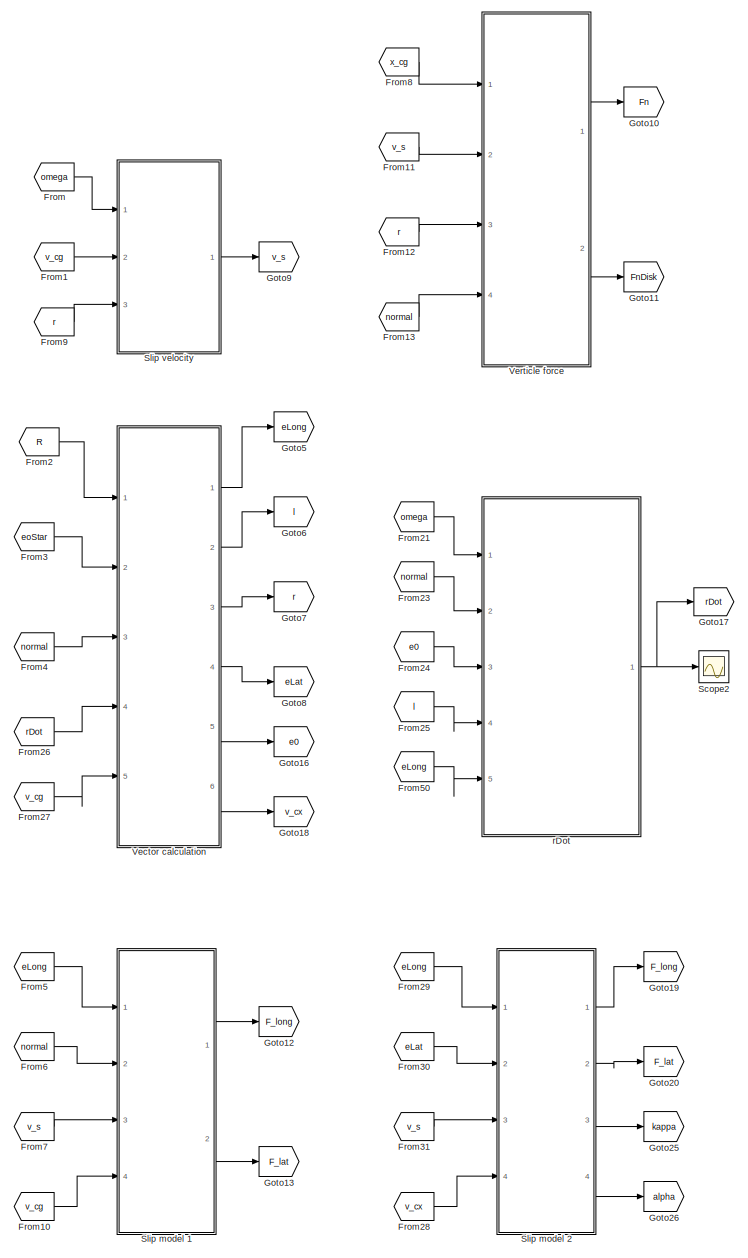
[diagram: Tire model RW - part 1/4, center side, full height]
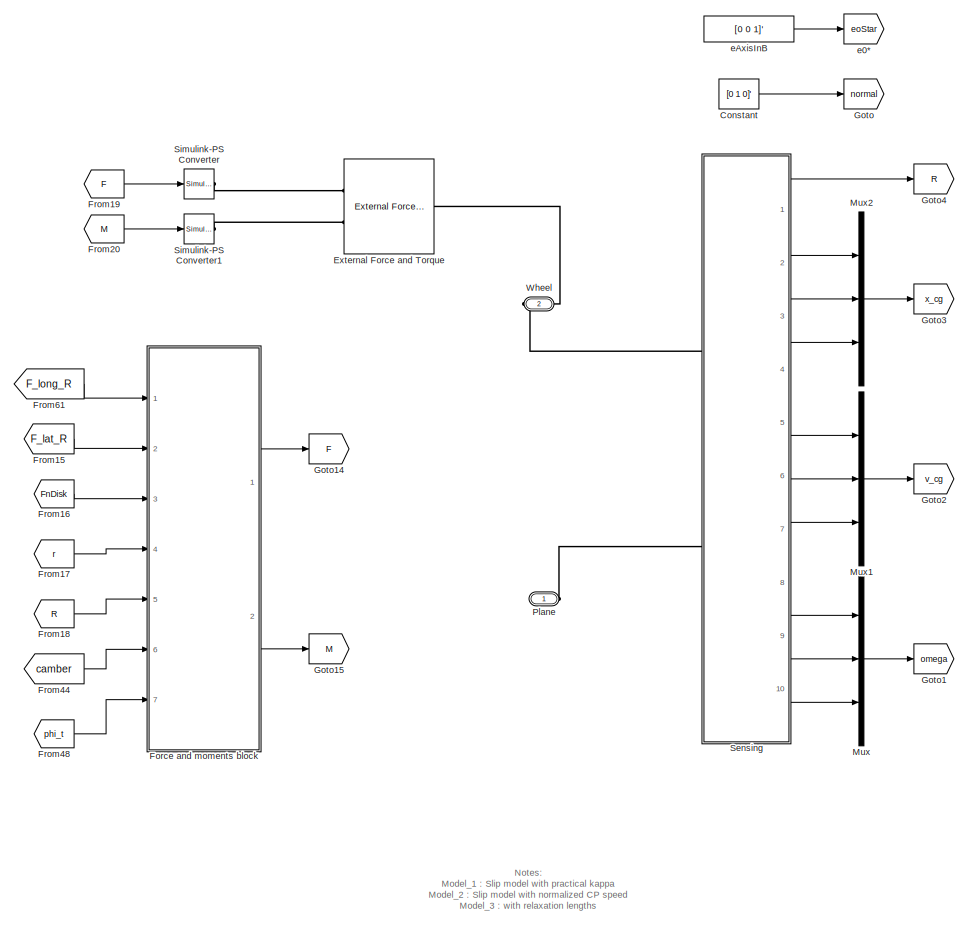
[diagram: Tire model RW - part 2/4, middle left region]
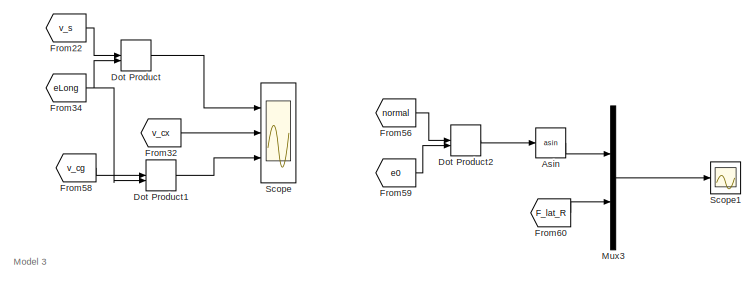
[diagram: Tire model RW - part 3/4, top right region]
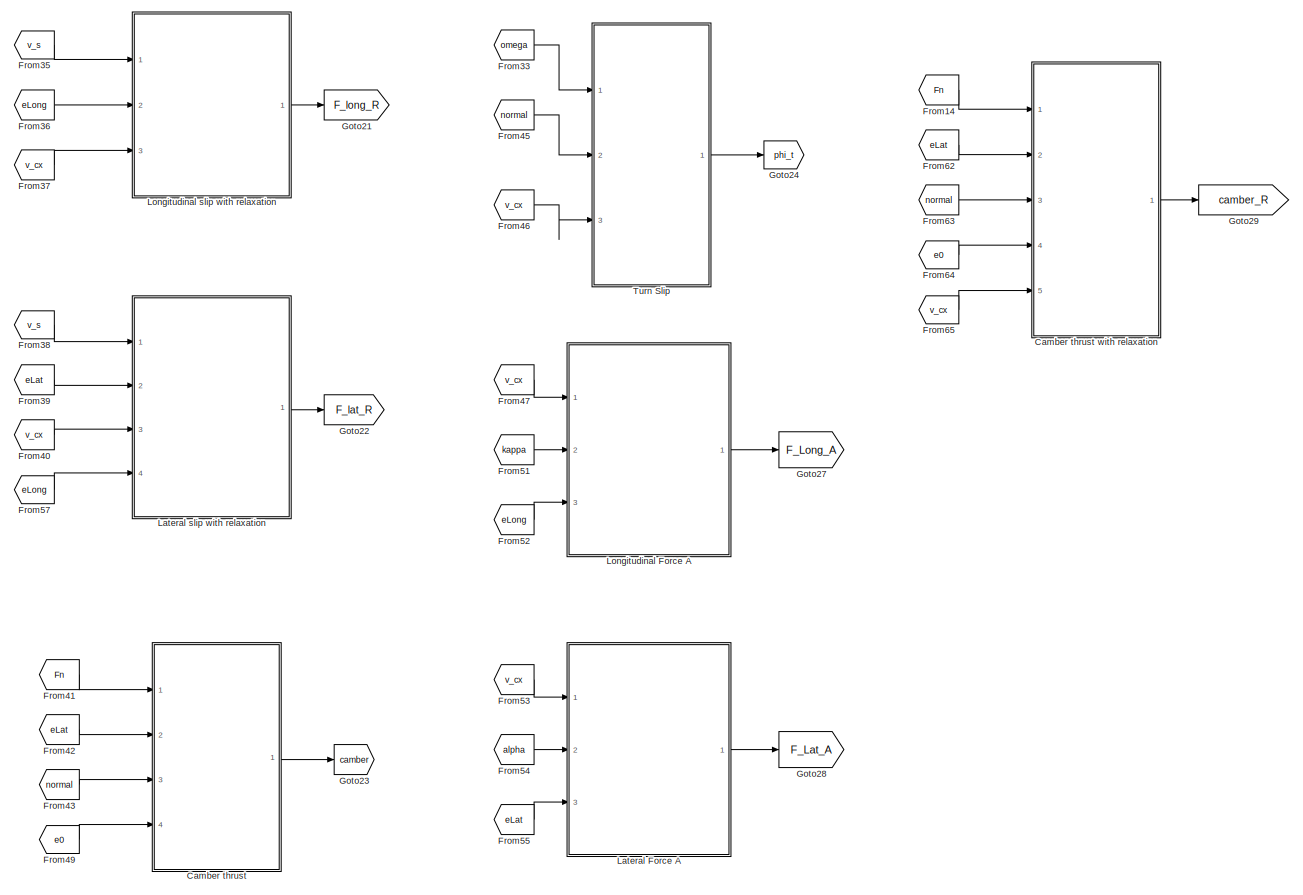
[diagram: Tire model RW - part 4/4, middle right region]
BLOCK [SubSystem] Tire model RW
  Ports = [0, 0, 0, 0, 0, 1, 1]
  RequestExecContextInheritance = off
BLOCK [Trigonometry] Tire model RW/Asin
  Operator = asin
  Ports = [1, 1]
BLOCK [SubSystem] Tire model RW/Camber thrust
  Ports = [4, 1]
  RequestExecContextInheritance = off
BLOCK [SubSystem] Tire model RW/Camber thrust with relaxation
  Commented = on
  Ports = [5, 1]
  RequestExecContextInheritance = off
BLOCK [DotProduct] Tire model RW/Camber thrust with relaxation/Dot Product1
  OutDataTypeStr = Inherit: Inherit via internal rule
BLOCK [Inport] Tire model RW/Camber thrust with relaxation/Fn
BLOCK [Gain] Tire model RW/Camber thrust with relaxation/Gain
  Gain = 1/sigma
BLOCK [Integrator] Tire model RW/Camber thrust with relaxation/Integrator
  Ports = [1, 1]
BLOCK [Product] Tire model RW/Camber thrust with relaxation/Product
  Ports = [2, 1]
BLOCK [Product] Tire model RW/Camber thrust with relaxation/Product1
  Ports = [2, 1]
BLOCK [Product] Tire model RW/Camber thrust with relaxation/Product2
  Ports = [2, 1]
BLOCK [Product] Tire model RW/Camber thrust with relaxation/Product3
  Ports = [2, 1]
BLOCK [Scope] Tire model RW/Camber thrust with relaxation/Scope1
  Floating = off
  NumInputPorts = 1
  Ports = [1]
  ScopeSpecificationString = Simulink.scopes.TimeScopeBlockCfg('CurrentConfiguration', extmgr.ConfigurationSet(extmgr.Configuration('Core','General UI',true),extmgr.Configuration('Core','Source UI',true),extmgr.Configuration('Sources','WiredSimulink',true,'DataLoggingVariableName','ScopeData3'),extmgr.Configuration('Visuals','Time Domain',true,'SerializedDisplays',{struct('MinYLimReal','-25.43511','MaxYLimReal','9.20191','YLa...<+1470ch>
BLOCK [Sum] Tire model RW/Camber thrust with relaxation/Sum
  Inputs = |+-
  Ports = [2, 1]
BLOCK [Inport] Tire model RW/Camber thrust with relaxation/V_cx
  Port = 5
BLOCK [Outport] Tire model RW/Camber thrust with relaxation/camber_R
  VectorParamsAs1DForOutWhenUnconnected = off
BLOCK [Inport] Tire model RW/Camber thrust with relaxation/e0
  Port = 4
BLOCK [Inport] Tire model RW/Camber thrust with relaxation/eLat
  Port = 2
BLOCK [Inport] Tire model RW/Camber thrust with relaxation/n
  Port = 3
BLOCK [Abs] Tire model RW/Camber thrust/Abs
  SaturateOnIntegerOverflow = off
BLOCK [Reference] Tire model RW/Camber thrust/Compare To Constant  REF=simulink/Logic and Bit
Operations/Compare
To Constant
  Ports = [1, 1]
  SourceBlock = simulink/Logic and Bit\nOperations/Compare\nTo Constant
  SourceProductBaseCode = SL
  SourceType = Compare To Constant
BLOCK [DotProduct] Tire model RW/Camber thrust/Dot Product1
  OutDataTypeStr = Inherit: Inherit via internal rule
BLOCK [Inport] Tire model RW/Camber thrust/Fn
BLOCK [Gain] Tire model RW/Camber thrust/Gain
  Gain = 180/pi
BLOCK [Goto] Tire model RW/Camber thrust/Goto
  GotoTag = lean_RW
  TagVisibility = global
BLOCK [Product] Tire model RW/Camber thrust/Product
  Ports = [2, 1]
BLOCK [Product] Tire model RW/Camber thrust/Product1
  Ports = [2, 1]
BLOCK [Stop] Tire model RW/Camber thrust/Stop Simulation
BLOCK [Outport] Tire model RW/Camber thrust/camber
  VectorParamsAs1DForOutWhenUnconnected = off
BLOCK [Inport] Tire model RW/Camber thrust/e0
  Port = 4
BLOCK [Inport] Tire model RW/Camber thrust/eLat
  Port = 2
BLOCK [Inport] Tire model RW/Camber thrust/n
  Port = 3
BLOCK [Constant] Tire model RW/Constant
  Value = [0 1 0]'
BLOCK [DotProduct] Tire model RW/Dot Product
  Commented = on
  OutDataTypeStr = Inherit: Inherit via internal rule
BLOCK [DotProduct] Tire model RW/Dot Product1
  Commented = on
  OutDataTypeStr = Inherit: Inherit via internal rule
BLOCK [DotProduct] Tire model RW/Dot Product2
  OutDataTypeStr = Inherit: Inherit via internal rule
BLOCK [Reference] Tire model RW/External Force and Torque  REF=sm_lib/Forces and
Torques/External Force
and Torque
  Ports = [0, 0, 0, 0, 0, 2, 1]
  SourceBlock = sm_lib/Forces and\nTorques/External Force\nand Torque
  SourceProductBaseCode = MS
  SourceType = External Force\nand Torque
BLOCK [SubSystem] Tire model RW/Force and moments block
  Ports = [7, 2]
  RequestExecContextInheritance = off
BLOCK [Sum] Tire model RW/Force and moments block/Add
  IconShape = rectangular
  Inputs = 4
  Ports = [4, 1]
BLOCK [Sum] Tire model RW/Force and moments block/Add1
  IconShape = rectangular
  Ports = [2, 1]
BLOCK [Reference] Tire model RW/Force and moments block/Cross Product  REF=vrlib/Utilities/Cross Product
  Ports = [2, 1]
  SourceBlock = vrlib/Utilities/Cross Product
  SourceProductBaseCode = SL
  SourceType = Cross Product
BLOCK [Demux] Tire model RW/Force and moments block/Demux
  Outputs = 3
  Ports = [1, 3]
BLOCK [Demux] Tire model RW/Force and moments block/Demux1
  Outputs = 3
  Ports = [1, 3]
BLOCK [Outport] Tire model RW/Force and moments block/F
  VectorParamsAs1DForOutWhenUnconnected = off
BLOCK [Inport] Tire model RW/Force and moments block/F_lat
  Port = 2
BLOCK [Inport] Tire model RW/Force and moments block/F_long
BLOCK [Inport] Tire model RW/Force and moments block/FnDisk
  Port = 3
BLOCK [Outport] Tire model RW/Force and moments block/M
  Port = 2
  VectorParamsAs1DForOutWhenUnconnected = off
BLOCK [Product] Tire model RW/Force and moments block/Product
  Inputs = /*
  Multiplication = Matrix(*)
  Ports = [2, 1]
BLOCK [Product] Tire model RW/Force and moments block/Product1
  Inputs = /*
  Multiplication = Matrix(*)
  Ports = [2, 1]
BLOCK [Inport] Tire model RW/Force and moments block/R
  Port = 5
BLOCK [Scope] Tire model RW/Force and moments block/Scope
  Floating = off
  NumInputPorts = 3
  Ports = [3]
  ScopeSpecificationString = Simulink.scopes.TimeScopeBlockCfg('CurrentConfiguration', extmgr.ConfigurationSet(extmgr.Configuration('Core','General UI',true),extmgr.Configuration('Core','Source UI',true),extmgr.Configuration('Sources','WiredSimulink',true,'DataLoggingVariableName','ScopeData5'),extmgr.Configuration('Visuals','Time Domain',true,'SerializedDisplays',{struct('MinYLimReal','-42.28617','MaxYLimReal','22.96915','YL...<+2808ch>
BLOCK [Scope] Tire model RW/Force and moments block/Scope1
  Floating = off
  NumInputPorts = 3
  Ports = [3]
  ScopeSpecificationString = Simulink.scopes.TimeScopeBlockCfg('CurrentConfiguration', extmgr.ConfigurationSet(extmgr.Configuration('Core','General UI',true),extmgr.Configuration('Core','Source UI',true),extmgr.Configuration('Sources','WiredSimulink',true,'DataLoggingVariableName','ScopeData4'),extmgr.Configuration('Visuals','Time Domain',true,'SerializedDisplays',{struct('MinYLimReal','-24.5245','MaxYLimReal','24.5245','YLab...<+2810ch>
BLOCK [Scope] Tire model RW/Force and moments block/Scope2
  Floating = off
  NumInputPorts = 1
  Ports = [1]
  ScopeSpecificationString = Simulink.scopes.TimeScopeBlockCfg('CurrentConfiguration', extmgr.ConfigurationSet(extmgr.Configuration('Core','General UI',true),extmgr.Configuration('Core','Source UI',true),extmgr.Configuration('Sources','WiredSimulink',true,'DataLoggingVariableName','ScopeData2'),extmgr.Configuration('Visuals','Time Domain',true,'SerializedDisplays',{struct('MinYLimReal','13.13469','MaxYLimReal','27.22852','YLa...<+1474ch>
BLOCK [Inport] Tire model RW/Force and moments block/camber
  Port = 6
BLOCK [Inport] Tire model RW/Force and moments block/phi_t
  Port = 7
BLOCK [Inport] Tire model RW/Force and moments block/r
  Port = 4
BLOCK [From] Tire model RW/From
  GotoTag = omega
BLOCK [From] Tire model RW/From1
  GotoTag = v_cg
BLOCK [From] Tire model RW/From10
  Commented = on
  GotoTag = v_cg
BLOCK [From] Tire model RW/From11
  GotoTag = v_s
BLOCK [From] Tire model RW/From12
  GotoTag = r
BLOCK [From] Tire model RW/From13
  GotoTag = normal
BLOCK [From] Tire model RW/From14
  Commented = on
  GotoTag = Fn
BLOCK [From] Tire model RW/From15
  GotoTag = F_lat_R
BLOCK [From] Tire model RW/From16
  GotoTag = FnDisk
BLOCK [From] Tire model RW/From17
  GotoTag = r
BLOCK [From] Tire model RW/From18
  GotoTag = R
BLOCK [From] Tire model RW/From19
  GotoTag = F
BLOCK [From] Tire model RW/From2
  GotoTag = R
BLOCK [From] Tire model RW/From20
  GotoTag = M
BLOCK [From] Tire model RW/From21
  GotoTag = omega
BLOCK [From] Tire model RW/From22
  Commented = on
  GotoTag = v_s
BLOCK [From] Tire model RW/From23
  GotoTag = normal
BLOCK [From] Tire model RW/From24
  GotoTag = e0
BLOCK [From] Tire model RW/From25
  GotoTag = l
BLOCK [From] Tire model RW/From26
  GotoTag = rDot
BLOCK [From] Tire model RW/From27
  GotoTag = v_cg
BLOCK [From] Tire model RW/From28
  GotoTag = v_cx
BLOCK [From] Tire model RW/From29
  GotoTag = eLong
BLOCK [From] Tire model RW/From3
  GotoTag = eoStar
BLOCK [From] Tire model RW/From30
  GotoTag = eLat
BLOCK [From] Tire model RW/From31
  GotoTag = v_s
BLOCK [From] Tire model RW/From32
  Commented = on
  GotoTag = v_cx
BLOCK [From] Tire model RW/From33
  GotoTag = omega
BLOCK [From] Tire model RW/From34
  Commented = on
  GotoTag = eLong
BLOCK [From] Tire model RW/From35
  GotoTag = v_s
BLOCK [From] Tire model RW/From36
  GotoTag = eLong
BLOCK [From] Tire model RW/From37
  GotoTag = v_cx
BLOCK [From] Tire model RW/From38
  GotoTag = v_s
BLOCK [From] Tire model RW/From39
  GotoTag = eLat
BLOCK [From] Tire model RW/From4
  GotoTag = normal
BLOCK [From] Tire model RW/From40
  GotoTag = v_cx
BLOCK [From] Tire model RW/From41
  GotoTag = Fn
BLOCK [From] Tire model RW/From42
  GotoTag = eLat
BLOCK [From] Tire model RW/From43
  GotoTag = normal
BLOCK [From] Tire model RW/From44
  GotoTag = camber
BLOCK [From] Tire model RW/From45
  GotoTag = normal
BLOCK [From] Tire model RW/From46
  GotoTag = v_cx
BLOCK [From] Tire model RW/From47
  Commented = on
  GotoTag = v_cx
BLOCK [From] Tire model RW/From48
  GotoTag = phi_t
BLOCK [From] Tire model RW/From49
  GotoTag = e0
BLOCK [From] Tire model RW/From5
  Commented = on
  GotoTag = eLong
BLOCK [From] Tire model RW/From50
  GotoTag = eLong
BLOCK [From] Tire model RW/From51
  Commented = on
  GotoTag = kappa
BLOCK [From] Tire model RW/From52
  Commented = on
  GotoTag = eLong
BLOCK [From] Tire model RW/From53
  Commented = on
  GotoTag = v_cx
BLOCK [From] Tire model RW/From54
  Commented = on
  GotoTag = alpha
BLOCK [From] Tire model RW/From55
  Commented = on
  GotoTag = eLat
BLOCK [From] Tire model RW/From56
  GotoTag = normal
BLOCK [From] Tire model RW/From57
  GotoTag = eLong
BLOCK [From] Tire model RW/From58
  Commented = on
  GotoTag = v_cg
BLOCK [From] Tire model RW/From59
  GotoTag = e0
BLOCK [From] Tire model RW/From6
  Commented = on
  GotoTag = normal
BLOCK [From] Tire model RW/From60
  GotoTag = F_lat_R
BLOCK [From] Tire model RW/From61
  GotoTag = F_long_R
BLOCK [From] Tire model RW/From62
  Commented = on
  GotoTag = eLat
BLOCK [From] Tire model RW/From63
  Commented = on
  GotoTag = normal
BLOCK [From] Tire model RW/From64
  Commented = on
  GotoTag = e0
BLOCK [From] Tire model RW/From65
  Commented = on
  GotoTag = v_cx
BLOCK [From] Tire model RW/From7
  Commented = on
  GotoTag = v_s
BLOCK [From] Tire model RW/From8
  GotoTag = x_cg
BLOCK [From] Tire model RW/From9
  GotoTag = r
BLOCK [Goto] Tire model RW/Goto
  GotoTag = normal
BLOCK [Goto] Tire model RW/Goto1
  GotoTag = omega
BLOCK [Goto] Tire model RW/Goto10
  GotoTag = Fn
BLOCK [Goto] Tire model RW/Goto11
  GotoTag = FnDisk
BLOCK [Goto] Tire model RW/Goto12
  Commented = on
  GotoTag = F_long
BLOCK [Goto] Tire model RW/Goto13
  Commented = on
  GotoTag = F_lat
BLOCK [Goto] Tire model RW/Goto14
  GotoTag = F
BLOCK [Goto] Tire model RW/Goto15
  GotoTag = M
BLOCK [Goto] Tire model RW/Goto16
  GotoTag = e0
BLOCK [Goto] Tire model RW/Goto17
  GotoTag = rDot
BLOCK [Goto] Tire model RW/Goto18
  GotoTag = v_cx
BLOCK [Goto] Tire model RW/Goto19
  GotoTag = F_long
BLOCK [Goto] Tire model RW/Goto2
  GotoTag = v_cg
BLOCK [Goto] Tire model RW/Goto20
  GotoTag = F_lat
BLOCK [Goto] Tire model RW/Goto21
  GotoTag = F_long_R
BLOCK [Goto] Tire model RW/Goto22
  GotoTag = F_lat_R
BLOCK [Goto] Tire model RW/Goto23
  GotoTag = camber
BLOCK [Goto] Tire model RW/Goto24
  GotoTag = phi_t
BLOCK [Goto] Tire model RW/Goto25
  GotoTag = kappa
BLOCK [Goto] Tire model RW/Goto26
  GotoTag = alpha
BLOCK [Goto] Tire model RW/Goto27
  Commented = on
  GotoTag = F_Long_A
BLOCK [Goto] Tire model RW/Goto28
  Commented = on
  GotoTag = F_Lat_A
BLOCK [Goto] Tire model RW/Goto29
  Commented = on
  GotoTag = camber_R
BLOCK [Goto] Tire model RW/Goto3
  GotoTag = x_cg
BLOCK [Goto] Tire model RW/Goto4
  GotoTag = R
BLOCK [Goto] Tire model RW/Goto5
  GotoTag = eLong
BLOCK [Goto] Tire model RW/Goto6
  GotoTag = l
BLOCK [Goto] Tire model RW/Goto7
  GotoTag = r
BLOCK [Goto] Tire model RW/Goto8
  GotoTag = eLat
BLOCK [Goto] Tire model RW/Goto9
  GotoTag = v_s
BLOCK [SubSystem] Tire model RW/Lateral Force A
  Commented = on
  Ports = [3, 1]
  RequestExecContextInheritance = off
BLOCK [Constant] Tire model RW/Lateral Force A/Constant
  Value = sigma
BLOCK [Constant] Tire model RW/Lateral Force A/Constant1
  Value = sigma
BLOCK [Outport] Tire model RW/Lateral Force A/Fz
  VectorParamsAs1DForOutWhenUnconnected = off
BLOCK [Gain] Tire model RW/Lateral Force A/Gain
  Gain = -C_F_alpha
BLOCK [Integrator] Tire model RW/Lateral Force A/Integrator
  Ports = [1, 1]
BLOCK [Product] Tire model RW/Lateral Force A/Product
  Ports = [2, 1]
BLOCK [Product] Tire model RW/Lateral Force A/Product1
  Ports = [2, 1]
BLOCK [Product] Tire model RW/Lateral Force A/Product2
  Ports = [2, 1]
BLOCK [Product] Tire model RW/Lateral Force A/Product3
  Ports = [2, 1]
BLOCK [Product] Tire model RW/Lateral Force A/Product4
  Ports = [2, 1]
BLOCK [Scope] Tire model RW/Lateral Force A/Scope
  Floating = off
  NumInputPorts = 1
  Ports = [1]
BLOCK [Scope] Tire model RW/Lateral Force A/Scope1
  Floating = off
  NumInputPorts = 1
  Ports = [1]
BLOCK [Sum] Tire model RW/Lateral Force A/Sum
  Inputs = |+-
  Ports = [2, 1]
BLOCK [Inport] Tire model RW/Lateral Force A/alpha
  Port = 2
BLOCK [Inport] Tire model RW/Lateral Force A/eLat
  Port = 3
BLOCK [Inport] Tire model RW/Lateral Force A/v_cx
BLOCK [InportShadow] Tire model RW/Lateral Force A/v_cx1
BLOCK [SubSystem] Tire model RW/Lateral slip with relaxation
  Ports = [4, 1]
  RequestExecContextInheritance = off
BLOCK [DotProduct] Tire model RW/Lateral slip with relaxation/Dot Product
  OutDataTypeStr = Inherit: Inherit via internal rule
BLOCK [Outport] Tire model RW/Lateral slip with relaxation/F_Lat
  VectorParamsAs1DForOutWhenUnconnected = off
BLOCK [Gain] Tire model RW/Lateral slip with relaxation/Gain
  Gain = 1/sigma
BLOCK [Gain] Tire model RW/Lateral slip with relaxation/Gain1
  Gain = -C_F_alpha
BLOCK [Integrator] Tire model RW/Lateral slip with relaxation/Integrator
  Ports = [1, 1]
BLOCK [SubSystem] Tire model RW/Lateral slip with relaxation/MATLAB Function2
  Commented = through
  ErrorFcn = Stateflow.Translate.translate
  PermitHierarchicalResolution = ExplicitOnly
  Ports = [1, 1]
  RequestExecContextInheritance = off
  SFBlockType = MATLAB Function
  TreatAsAtomicUnit = on
BLOCK [Demux] Tire model RW/Lateral slip with relaxation/MATLAB Function2/ Demux 
  Outputs = 1
  Ports = [1, 1]
BLOCK [S-Function] Tire model RW/Lateral slip with relaxation/MATLAB Function2/ SFunction 
  EnableBusSupport = off
  FunctionName = sf_sfun
  PortCounts = [1 2]
  Ports = [1, 2]
  SFcnIsStateOwnerBlock = off
  SFunctionDeploymentMode = off
  Tag = Stateflow S-Function 6
BLOCK [Terminator] Tire model RW/Lateral slip with relaxation/MATLAB Function2/ Terminator 
BLOCK [Outport] Tire model RW/Lateral slip with relaxation/MATLAB Function2/s1
  VectorParamsAs1DForOutWhenUnconnected = off
BLOCK [Inport] Tire model RW/Lateral slip with relaxation/MATLAB Function2/s1 
BLOCK [Product] Tire model RW/Lateral slip with relaxation/Product
  Ports = [2, 1]
BLOCK [Product] Tire model RW/Lateral slip with relaxation/Product1
  Ports = [2, 1]
BLOCK [Scope] Tire model RW/Lateral slip with relaxation/Scope
  Floating = off
  NumInputPorts = 1
  Ports = [1]
BLOCK [Scope] Tire model RW/Lateral slip with relaxation/Scope1
  Floating = off
  NumInputPorts = 1
  Ports = [1]
  ScopeSpecificationString = Simulink.scopes.TimeScopeBlockCfg('CurrentConfiguration', extmgr.ConfigurationSet(extmgr.Configuration('Core','General UI',true),extmgr.Configuration('Core','Source UI',true),extmgr.Configuration('Sources','WiredSimulink',true,'DataLoggingVariableName','ScopeData3'),extmgr.Configuration('Visuals','Time Domain',true,'SerializedDisplays',{struct('MinYLimReal','-0.00076','MaxYLimReal','0.00071','YLab...<+1475ch>
BLOCK [Scope] Tire model RW/Lateral slip with relaxation/Scope2
  Floating = off
  NumInputPorts = 1
  Ports = [1]
  ScopeSpecificationString = Simulink.scopes.TimeScopeBlockCfg('CurrentConfiguration', extmgr.ConfigurationSet(extmgr.Configuration('Core','General UI',true),extmgr.Configuration('Core','Source UI',true),extmgr.Configuration('Sources','WiredSimulink',true,'DataLoggingVariableName','ScopeData2'),extmgr.Configuration('Visuals','Time Domain',true,'SerializedDisplays',{struct('MinYLimReal','-0.00018','MaxYLimReal','0.00002','YLab...<+1419ch>
BLOCK [Sum] Tire model RW/Lateral slip with relaxation/Sum
  Inputs = |+-
  Ports = [2, 1]
BLOCK [Inport] Tire model RW/Lateral slip with relaxation/eLat
  Port = 2
BLOCK [Inport] Tire model RW/Lateral slip with relaxation/eLong
  Port = 4
BLOCK [Inport] Tire model RW/Lateral slip with relaxation/v_cx
  Port = 3
BLOCK [Inport] Tire model RW/Lateral slip with relaxation/v_s
BLOCK [SubSystem] Tire model RW/Longitudinal Force A
  Commented = on
  Ports = [3, 1]
  RequestExecContextInheritance = off
BLOCK [Constant] Tire model RW/Longitudinal Force A/Constant
  Value = sigma
BLOCK [Constant] Tire model RW/Longitudinal Force A/Constant1
  Value = sigma
BLOCK [Outport] Tire model RW/Longitudinal Force A/Fx
  VectorParamsAs1DForOutWhenUnconnected = off
BLOCK [Gain] Tire model RW/Longitudinal Force A/Gain
  Gain = -C_F_kappa
BLOCK [Integrator] Tire model RW/Longitudinal Force A/Integrator
  Ports = [1, 1]
BLOCK [Product] Tire model RW/Longitudinal Force A/Product
  Ports = [2, 1]
BLOCK [Product] Tire model RW/Longitudinal Force A/Product1
  Ports = [2, 1]
BLOCK [Product] Tire model RW/Longitudinal Force A/Product2
  Ports = [2, 1]
BLOCK [Product] Tire model RW/Longitudinal Force A/Product3
  Ports = [2, 1]
BLOCK [Product] Tire model RW/Longitudinal Force A/Product4
  Ports = [2, 1]
BLOCK [Scope] Tire model RW/Longitudinal Force A/Scope
  Floating = off
  NumInputPorts = 1
  Ports = [1]
BLOCK [Scope] Tire model RW/Longitudinal Force A/Scope1
  Floating = off
  NumInputPorts = 1
  Ports = [1]
BLOCK [Sum] Tire model RW/Longitudinal Force A/Sum
  Inputs = |+-
  Ports = [2, 1]
BLOCK [Inport] Tire model RW/Longitudinal Force A/eLong
  Port = 3
BLOCK [Inport] Tire model RW/Longitudinal Force A/kappa
  Port = 2
BLOCK [Inport] Tire model RW/Longitudinal Force A/v_cx
BLOCK [InportShadow] Tire model RW/Longitudinal Force A/v_cx1
BLOCK [SubSystem] Tire model RW/Longitudinal slip with relaxation
  Ports = [3, 1]
  RequestExecContextInheritance = off
BLOCK [DotProduct] Tire model RW/Longitudinal slip with relaxation/Dot Product
  OutDataTypeStr = Inherit: Inherit via internal rule
BLOCK [Outport] Tire model RW/Longitudinal slip with relaxation/F_Long
  VectorParamsAs1DForOutWhenUnconnected = off
BLOCK [Gain] Tire model RW/Longitudinal slip with relaxation/Gain
  Gain = 1/sigma
BLOCK [Gain] Tire model RW/Longitudinal slip with relaxation/Gain1
  Gain = -C_F_kappa
BLOCK [Integrator] Tire model RW/Longitudinal slip with relaxation/Integrator
  Ports = [1, 1]
BLOCK [SubSystem] Tire model RW/Longitudinal slip with relaxation/MATLAB Function2
  Commented = through
  ErrorFcn = Stateflow.Translate.translate
  PermitHierarchicalResolution = ExplicitOnly
  Ports = [1, 1]
  RequestExecContextInheritance = off
  SFBlockType = MATLAB Function
  TreatAsAtomicUnit = on
BLOCK [Demux] Tire model RW/Longitudinal slip with relaxation/MATLAB Function2/ Demux 
  Outputs = 1
  Ports = [1, 1]
BLOCK [S-Function] Tire model RW/Longitudinal slip with relaxation/MATLAB Function2/ SFunction 
  EnableBusSupport = off
  FunctionName = sf_sfun
  PortCounts = [1 2]
  Ports = [1, 2]
  SFcnIsStateOwnerBlock = off
  SFunctionDeploymentMode = off
  Tag = Stateflow S-Function 5
BLOCK [Terminator] Tire model RW/Longitudinal slip with relaxation/MATLAB Function2/ Terminator 
BLOCK [Outport] Tire model RW/Longitudinal slip with relaxation/MATLAB Function2/s1
  VectorParamsAs1DForOutWhenUnconnected = off
BLOCK [Inport] Tire model RW/Longitudinal slip with relaxation/MATLAB Function2/s1 
BLOCK [Product] Tire model RW/Longitudinal slip with relaxation/Product
  Ports = [2, 1]
BLOCK [Product] Tire model RW/Longitudinal slip with relaxation/Product1
  Ports = [2, 1]
BLOCK [Sum] Tire model RW/Longitudinal slip with relaxation/Sum
  Inputs = |+-
  Ports = [2, 1]
BLOCK [Inport] Tire model RW/Longitudinal slip with relaxation/eLong
  Port = 2
BLOCK [Inport] Tire model RW/Longitudinal slip with relaxation/v_cx
  Port = 3
BLOCK [Inport] Tire model RW/Longitudinal slip with relaxation/v_s
BLOCK [Mux] Tire model RW/Mux
  DisplayOption = bar
  Inputs = 3
  Ports = [3, 1]
BLOCK [Mux] Tire model RW/Mux1
  DisplayOption = bar
  Inputs = 3
  Ports = [3, 1]
BLOCK [Mux] Tire model RW/Mux2
  DisplayOption = bar
  Inputs = 3
  Ports = [3, 1]
BLOCK [Mux] Tire model RW/Mux3
  DisplayOption = bar
  Inputs = 2
  Ports = [2, 1]
BLOCK [PMIOPort] Tire model RW/Plane
  Side = Left
BLOCK [Scope] Tire model RW/Scope
  Commented = on
  Floating = off
  NumInputPorts = 3
  Ports = [3]
BLOCK [Scope] Tire model RW/Scope1
  Floating = off
  NumInputPorts = 1
  Ports = [1]
BLOCK [Scope] Tire model RW/Scope2
  Floating = off
  NumInputPorts = 1
  Ports = [1]
BLOCK [SubSystem] Tire model RW/Sensing
  Ports = [0, 10, 0, 0, 0, 2]
  RequestExecContextInheritance = off
BLOCK [Reference] Tire model RW/Sensing/PS-Simulink Converter  REF=nesl_utility/PS-Simulink
Converter
  Ports = [0, 1, 0, 0, 0, 1]
  SourceBlock = nesl_utility/PS-Simulink\nConverter
  SourceProductBaseCode = SS
  SourceType = PS-Simulink\nConverter
BLOCK [Reference] Tire model RW/Sensing/PS-Simulink Converter1  REF=nesl_utility/PS-Simulink
Converter
  Ports = [0, 1, 0, 0, 0, 1]
  SourceBlock = nesl_utility/PS-Simulink\nConverter
  SourceProductBaseCode = SS
  SourceType = PS-Simulink\nConverter
BLOCK [Reference] Tire model RW/Sensing/PS-Simulink Converter2  REF=nesl_utility/PS-Simulink
Converter
  Ports = [0, 1, 0, 0, 0, 1]
  SourceBlock = nesl_utility/PS-Simulink\nConverter
  SourceProductBaseCode = SS
  SourceType = PS-Simulink\nConverter
BLOCK [Reference] Tire model RW/Sensing/PS-Simulink Converter3  REF=nesl_utility/PS-Simulink
Converter
  Ports = [0, 1, 0, 0, 0, 1]
  SourceBlock = nesl_utility/PS-Simulink\nConverter
  SourceProductBaseCode = SS
  SourceType = PS-Simulink\nConverter
BLOCK [Reference] Tire model RW/Sensing/PS-Simulink Converter4  REF=nesl_utility/PS-Simulink
Converter
  Ports = [0, 1, 0, 0, 0, 1]
  SourceBlock = nesl_utility/PS-Simulink\nConverter
  SourceProductBaseCode = SS
  SourceType = PS-Simulink\nConverter
BLOCK [Reference] Tire model RW/Sensing/PS-Simulink Converter5  REF=nesl_utility/PS-Simulink
Converter
  Ports = [0, 1, 0, 0, 0, 1]
  SourceBlock = nesl_utility/PS-Simulink\nConverter
  SourceProductBaseCode = SS
  SourceType = PS-Simulink\nConverter
BLOCK [Reference] Tire model RW/Sensing/PS-Simulink Converter6  REF=nesl_utility/PS-Simulink
Converter
  Ports = [0, 1, 0, 0, 0, 1]
  SourceBlock = nesl_utility/PS-Simulink\nConverter
  SourceProductBaseCode = SS
  SourceType = PS-Simulink\nConverter
BLOCK [Reference] Tire model RW/Sensing/PS-Simulink Converter7  REF=nesl_utility/PS-Simulink
Converter
  Ports = [0, 1, 0, 0, 0, 1]
  SourceBlock = nesl_utility/PS-Simulink\nConverter
  SourceProductBaseCode = SS
  SourceType = PS-Simulink\nConverter
BLOCK [Reference] Tire model RW/Sensing/PS-Simulink Converter8  REF=nesl_utility/PS-Simulink
Converter
  Ports = [0, 1, 0, 0, 0, 1]
  SourceBlock = nesl_utility/PS-Simulink\nConverter
  SourceProductBaseCode = SS
  SourceType = PS-Simulink\nConverter
BLOCK [Reference] Tire model RW/Sensing/PS-Simulink Converter9  REF=nesl_utility/PS-Simulink
Converter
  Ports = [0, 1, 0, 0, 0, 1]
  SourceBlock = nesl_utility/PS-Simulink\nConverter
  SourceProductBaseCode = SS
  SourceType = PS-Simulink\nConverter
BLOCK [PMIOPort] Tire model RW/Sensing/Plane
  Port = 2
  Side = Left
BLOCK [Outport] Tire model RW/Sensing/R
  VectorParamsAs1DForOutWhenUnconnected = off
BLOCK [Reference] Tire model RW/Sensing/Transform Sensor  REF=sm_lib/Frames and
Transforms/Transform
Sensor
  Ports = [0, 0, 0, 0, 0, 1, 11]
  SourceBlock = sm_lib/Frames and\nTransforms/Transform\nSensor
  SourceProductBaseCode = MS
  SourceType = Transform\nSensor
BLOCK [PMIOPort] Tire model RW/Sensing/Wheel
  NameLocation = top
  Side = Left
BLOCK [Outport] Tire model RW/Sensing/vx
  Port = 5
  VectorParamsAs1DForOutWhenUnconnected = off
BLOCK [Outport] Tire model RW/Sensing/vy
  Port = 6
  VectorParamsAs1DForOutWhenUnconnected = off
BLOCK [Outport] Tire model RW/Sensing/vz
  Port = 7
  VectorParamsAs1DForOutWhenUnconnected = off
BLOCK [Outport] Tire model RW/Sensing/wx
  Port = 8
  VectorParamsAs1DForOutWhenUnconnected = off
BLOCK [Outport] Tire model RW/Sensing/wy
  Port = 9
  VectorParamsAs1DForOutWhenUnconnected = off
BLOCK [Outport] Tire model RW/Sensing/wz
  Port = 10
  VectorParamsAs1DForOutWhenUnconnected = off
BLOCK [Outport] Tire model RW/Sensing/x
  Port = 2
  VectorParamsAs1DForOutWhenUnconnected = off
BLOCK [Outport] Tire model RW/Sensing/y
  Port = 3
  VectorParamsAs1DForOutWhenUnconnected = off
BLOCK [Outport] Tire model RW/Sensing/z
  Port = 4
  VectorParamsAs1DForOutWhenUnconnected = off
BLOCK [Reference] Tire model RW/Simulink-PS Converter  REF=nesl_utility/Simulink-PS
Converter
  Ports = [1, 0, 0, 0, 0, 0, 1]
  SourceBlock = nesl_utility/Simulink-PS\nConverter
  SourceProductBaseCode = SS
  SourceType = Simulink-PS\nConverter
BLOCK [Reference] Tire model RW/Simulink-PS Converter1  REF=nesl_utility/Simulink-PS
Converter
  Ports = [1, 0, 0, 0, 0, 0, 1]
  SourceBlock = nesl_utility/Simulink-PS\nConverter
  SourceProductBaseCode = SS
  SourceType = Simulink-PS\nConverter
BLOCK [SubSystem] Tire model RW/Slip model 1
  Commented = on
  Ports = [4, 2]
  RequestExecContextInheritance = off
BLOCK [Constant] Tire model RW/Slip model 1/Constant
  Value = epsilon
BLOCK [Constant] Tire model RW/Slip model 1/Constant1
  Value = epsilon
BLOCK [Product] Tire model RW/Slip model 1/Divide
  Inputs = */
  Ports = [2, 1]
BLOCK [DotProduct] Tire model RW/Slip model 1/Dot Product
  OutDataTypeStr = Inherit: Inherit via internal rule
BLOCK [DotProduct] Tire model RW/Slip model 1/Dot Product1
  OutDataTypeStr = Inherit: Inherit via internal rule
BLOCK [DotProduct] Tire model RW/Slip model 1/Dot Product2
  OutDataTypeStr = Inherit: Inherit via internal rule
BLOCK [DotProduct] Tire model RW/Slip model 1/Dot Product3
  OutDataTypeStr = Inherit: Inherit via internal rule
BLOCK [Outport] Tire model RW/Slip model 1/F_lat
  Port = 2
  VectorParamsAs1DForOutWhenUnconnected = off
BLOCK [Outport] Tire model RW/Slip model 1/F_long
  VectorParamsAs1DForOutWhenUnconnected = off
BLOCK [Gain] Tire model RW/Slip model 1/Gain
  Gain = -C_F_kappa
BLOCK [Gain] Tire model RW/Slip model 1/Gain1
  Gain = -C_F_alpha
BLOCK [Product] Tire model RW/Slip model 1/Product
  Inputs = */
  Ports = [2, 1]
BLOCK [Product] Tire model RW/Slip model 1/Product1
  Ports = [2, 1]
BLOCK [Product] Tire model RW/Slip model 1/Product2
  Ports = [2, 1]
BLOCK [Scope] Tire model RW/Slip model 1/Scope
  Floating = off
  NumInputPorts = 1
  Ports = [1]
BLOCK [Scope] Tire model RW/Slip model 1/Scope1
  Floating = off
  NumInputPorts = 1
  Ports = [1]
BLOCK [Sum] Tire model RW/Slip model 1/Sum
  Inputs = |++
  Ports = [2, 1]
BLOCK [Sum] Tire model RW/Slip model 1/Sum1
  Inputs = |++
  Ports = [2, 1]
BLOCK [Inport] Tire model RW/Slip model 1/eLat
  Port = 2
BLOCK [InportShadow] Tire model RW/Slip model 1/eLat1
  Port = 2
BLOCK [Inport] Tire model RW/Slip model 1/eLong
BLOCK [InportShadow] Tire model RW/Slip model 1/eLong1
BLOCK [Inport] Tire model RW/Slip model 1/v_cg
  Port = 4
BLOCK [InportShadow] Tire model RW/Slip model 1/v_cg1
  Port = 4
BLOCK [Inport] Tire model RW/Slip model 1/v_s
  Port = 3
BLOCK [InportShadow] Tire model RW/Slip model 1/v_s1
  Port = 3
BLOCK [SubSystem] Tire model RW/Slip model 2
  Ports = [4, 4]
  RequestExecContextInheritance = off
BLOCK [Product] Tire model RW/Slip model 2/Divide
  Inputs = */
  Ports = [2, 1]
BLOCK [DotProduct] Tire model RW/Slip model 2/Dot Product
  OutDataTypeStr = Inherit: Inherit via internal rule
BLOCK [DotProduct] Tire model RW/Slip model 2/Dot Product1
  OutDataTypeStr = Inherit: Inherit via internal rule
BLOCK [Outport] Tire model RW/Slip model 2/F_lat
  Port = 2
  VectorParamsAs1DForOutWhenUnconnected = off
BLOCK [Outport] Tire model RW/Slip model 2/F_long
  VectorParamsAs1DForOutWhenUnconnected = off
BLOCK [Gain] Tire model RW/Slip model 2/Gain
  Gain = -C_F_kappa
BLOCK [Gain] Tire model RW/Slip model 2/Gain1
  Gain = -C_F_alpha
BLOCK [SubSystem] Tire model RW/Slip model 2/MATLAB Function1
  Commented = through
  ErrorFcn = Stateflow.Translate.translate
  PermitHierarchicalResolution = ExplicitOnly
  Ports = [1, 1]
  RequestExecContextInheritance = off
  SFBlockType = MATLAB Function
  TreatAsAtomicUnit = on
BLOCK [Demux] Tire model RW/Slip model 2/MATLAB Function1/ Demux 
  Outputs = 1
  Ports = [1, 1]
BLOCK [S-Function] Tire model RW/Slip model 2/MATLAB Function1/ SFunction 
  EnableBusSupport = off
  FunctionName = sf_sfun
  PortCounts = [1 2]
  Ports = [1, 2]
  SFcnIsStateOwnerBlock = off
  SFunctionDeploymentMode = off
  Tag = Stateflow S-Function 7
BLOCK [Terminator] Tire model RW/Slip model 2/MATLAB Function1/ Terminator 
BLOCK [Outport] Tire model RW/Slip model 2/MATLAB Function1/s1
  VectorParamsAs1DForOutWhenUnconnected = off
BLOCK [Inport] Tire model RW/Slip model 2/MATLAB Function1/s1 
BLOCK [SubSystem] Tire model RW/Slip model 2/MATLAB Function2
  Commented = through
  ErrorFcn = Stateflow.Translate.translate
  PermitHierarchicalResolution = ExplicitOnly
  Ports = [1, 1]
  RequestExecContextInheritance = off
  SFBlockType = MATLAB Function
  TreatAsAtomicUnit = on
BLOCK [Demux] Tire model RW/Slip model 2/MATLAB Function2/ Demux 
  Outputs = 1
  Ports = [1, 1]
BLOCK [S-Function] Tire model RW/Slip model 2/MATLAB Function2/ SFunction 
  EnableBusSupport = off
  FunctionName = sf_sfun
  PortCounts = [1 2]
  Ports = [1, 2]
  SFcnIsStateOwnerBlock = off
  SFunctionDeploymentMode = off
  Tag = Stateflow S-Function 8
BLOCK [Terminator] Tire model RW/Slip model 2/MATLAB Function2/ Terminator 
BLOCK [Outport] Tire model RW/Slip model 2/MATLAB Function2/s1
  VectorParamsAs1DForOutWhenUnconnected = off
BLOCK [Inport] Tire model RW/Slip model 2/MATLAB Function2/s1 
BLOCK [Product] Tire model RW/Slip model 2/Product
  Inputs = */
  Ports = [2, 1]
BLOCK [Product] Tire model RW/Slip model 2/Product1
  Ports = [2, 1]
BLOCK [Product] Tire model RW/Slip model 2/Product2
  Ports = [2, 1]
BLOCK [Scope] Tire model RW/Slip model 2/Scope
  Floating = off
  NumInputPorts = 1
  Ports = [1]
  ScopeSpecificationString = Simulink.scopes.TimeScopeBlockCfg('CurrentConfiguration', extmgr.ConfigurationSet(extmgr.Configuration('Core','General UI',true),extmgr.Configuration('Core','Source UI',true),extmgr.Configuration('Sources','WiredSimulink',true),extmgr.Configuration('Visuals','Time Domain',true,'SerializedDisplays',{struct('MinYLimReal','-0.00224','MaxYLimReal','0.00455','YLabelReal','','MinYLimMag','0.00000','MaxY...<+1436ch>
BLOCK [Scope] Tire model RW/Slip model 2/Scope1
  Floating = off
  NumInputPorts = 1
  Ports = [1]
  ScopeSpecificationString = Simulink.scopes.TimeScopeBlockCfg('CurrentConfiguration', extmgr.ConfigurationSet(extmgr.Configuration('Core','General UI',true),extmgr.Configuration('Core','Source UI',true),extmgr.Configuration('Sources','WiredSimulink',true,'DataLoggingVariableName','ScopeData1'),extmgr.Configuration('Visuals','Time Domain',true,'SerializedDisplays',{struct('MinYLimReal','-0.01851','MaxYLimReal','0.0104','YLabe...<+1427ch>
BLOCK [Outport] Tire model RW/Slip model 2/alpha
  Port = 4
  VectorParamsAs1DForOutWhenUnconnected = off
BLOCK [Inport] Tire model RW/Slip model 2/eLat
  Port = 2
BLOCK [InportShadow] Tire model RW/Slip model 2/eLat1
  Port = 2
BLOCK [Inport] Tire model RW/Slip model 2/eLong
BLOCK [InportShadow] Tire model RW/Slip model 2/eLong1
BLOCK [Outport] Tire model RW/Slip model 2/kappa
  Port = 3
  VectorParamsAs1DForOutWhenUnconnected = off
BLOCK [Inport] Tire model RW/Slip model 2/v_cx
  Port = 4
BLOCK [InportShadow] Tire model RW/Slip model 2/v_cx1
  Port = 4
BLOCK [Inport] Tire model RW/Slip model 2/v_s
  Port = 3
BLOCK [InportShadow] Tire model RW/Slip model 2/v_s1
  Port = 3
BLOCK [SubSystem] Tire model RW/Slip velocity
  Ports = [3, 1]
  RequestExecContextInheritance = off
BLOCK [Sum] Tire model RW/Slip velocity/Add
  IconShape = rectangular
  Ports = [2, 1]
BLOCK [Reference] Tire model RW/Slip velocity/Cross Product  REF=vrlib/Utilities/Cross Product
  Ports = [2, 1]
  SourceBlock = vrlib/Utilities/Cross Product
  SourceProductBaseCode = SL
  SourceType = Cross Product
BLOCK [Demux] Tire model RW/Slip velocity/Demux
  Outputs = 3
  Ports = [1, 3]
BLOCK [SubSystem] Tire model RW/Slip velocity/MATLAB Function1
  ErrorFcn = Stateflow.Translate.translate
  PermitHierarchicalResolution = ExplicitOnly
  Ports = [1, 1]
  RequestExecContextInheritance = off
  SFBlockType = MATLAB Function
  TreatAsAtomicUnit = on
BLOCK [Demux] Tire model RW/Slip velocity/MATLAB Function1/ Demux 
  Outputs = 1
  Ports = [1, 1]
BLOCK [S-Function] Tire model RW/Slip velocity/MATLAB Function1/ SFunction 
  EnableBusSupport = off
  FunctionName = sf_sfun
  PortCounts = [1 2]
  Ports = [1, 2]
  SFcnIsStateOwnerBlock = off
  SFunctionDeploymentMode = off
  Tag = Stateflow S-Function 9
BLOCK [Terminator] Tire model RW/Slip velocity/MATLAB Function1/ Terminator 
BLOCK [Outport] Tire model RW/Slip velocity/MATLAB Function1/s1
  VectorParamsAs1DForOutWhenUnconnected = off
BLOCK [Inport] Tire model RW/Slip velocity/MATLAB Function1/s1 
BLOCK [SubSystem] Tire model RW/Slip velocity/MATLAB Function2
  ErrorFcn = Stateflow.Translate.translate
  PermitHierarchicalResolution = ExplicitOnly
  Ports = [1, 1]
  RequestExecContextInheritance = off
  SFBlockType = MATLAB Function
  TreatAsAtomicUnit = on
BLOCK [Demux] Tire model RW/Slip velocity/MATLAB Function2/ Demux 
  Outputs = 1
  Ports = [1, 1]
BLOCK [S-Function] Tire model RW/Slip velocity/MATLAB Function2/ SFunction 
  EnableBusSupport = off
  FunctionName = sf_sfun
  PortCounts = [1 2]
  Ports = [1, 2]
  SFcnIsStateOwnerBlock = off
  SFunctionDeploymentMode = off
  Tag = Stateflow S-Function 10
BLOCK [Terminator] Tire model RW/Slip velocity/MATLAB Function2/ Terminator 
BLOCK [Outport] Tire model RW/Slip velocity/MATLAB Function2/s1
  VectorParamsAs1DForOutWhenUnconnected = off
BLOCK [Inport] Tire model RW/Slip velocity/MATLAB Function2/s1 
BLOCK [Mux] Tire model RW/Slip velocity/Mux
  DisplayOption = bar
  Inputs = 3
  Ports = [3, 1]
BLOCK [Scope] Tire model RW/Slip velocity/Scope
  Floating = off
  NumInputPorts = 1
  Ports = [1]
BLOCK [Inport] Tire model RW/Slip velocity/omega
BLOCK [Inport] Tire model RW/Slip velocity/r
  Port = 3
BLOCK [Inport] Tire model RW/Slip velocity/v_cg
  Port = 2
BLOCK [Outport] Tire model RW/Slip velocity/v_s
  VectorParamsAs1DForOutWhenUnconnected = off
BLOCK [SubSystem] Tire model RW/Turn Slip
  Ports = [3, 1]
  RequestExecContextInheritance = off
BLOCK [DotProduct] Tire model RW/Turn Slip/Dot Product
  OutDataTypeStr = Inherit: Inherit via internal rule
BLOCK [Gain] Tire model RW/Turn Slip/Gain
  Gain = 1/sigma
BLOCK [Gain] Tire model RW/Turn Slip/Gain1
  Gain = -CM_phi
BLOCK [Gain] Tire model RW/Turn Slip/Gain2
  Gain = -1
BLOCK [Integrator] Tire model RW/Turn Slip/Integrator
  Ports = [1, 1]
BLOCK [Product] Tire model RW/Turn Slip/Product
  Ports = [2, 1]
BLOCK [Product] Tire model RW/Turn Slip/Product1
  Ports = [2, 1]
BLOCK [Product] Tire model RW/Turn Slip/Product2
  Inputs = */
  Ports = [2, 1]
BLOCK [Scope] Tire model RW/Turn Slip/Scope
  Floating = off
  NumInputPorts = 1
  Ports = [1]
  ScopeSpecificationString = Simulink.scopes.TimeScopeBlockCfg('CurrentConfiguration', extmgr.ConfigurationSet(extmgr.Configuration('Core','General UI',true),extmgr.Configuration('Core','Source UI',true),extmgr.Configuration('Sources','WiredSimulink',true,'DataLoggingVariableName','ScopeData1'),extmgr.Configuration('Visuals','Time Domain',true,'SerializedDisplays',{struct('MinYLimReal','-0.01262','MaxYLimReal','0.00696','YLab...<+1418ch>
BLOCK [Scope] Tire model RW/Turn Slip/Scope1
  Floating = off
  NumInputPorts = 1
  Ports = [1]
  ScopeSpecificationString = Simulink.scopes.TimeScopeBlockCfg('CurrentConfiguration', extmgr.ConfigurationSet(extmgr.Configuration('Core','General UI',true),extmgr.Configuration('Core','Source UI',true),extmgr.Configuration('Sources','WiredSimulink',true,'DataLoggingVariableName','ScopeData2'),extmgr.Configuration('Visuals','Time Domain',true,'SerializedDisplays',{struct('MinYLimReal','-107.54508','MaxYLimReal','42.56786','Y...<+1434ch>
BLOCK [Sum] Tire model RW/Turn Slip/Sum
  Inputs = |+-
  Ports = [2, 1]
BLOCK [Inport] Tire model RW/Turn Slip/n
  Port = 2
BLOCK [Inport] Tire model RW/Turn Slip/omega
BLOCK [Outport] Tire model RW/Turn Slip/phi_t
  VectorParamsAs1DForOutWhenUnconnected = off
BLOCK [Inport] Tire model RW/Turn Slip/v_cx
  Port = 3
BLOCK [SubSystem] Tire model RW/Vector calculation
  Ports = [5, 6]
  RequestExecContextInheritance = off
BLOCK [Abs] Tire model RW/Vector calculation/Abs
  SaturateOnIntegerOverflow = off
  ZeroCross = off
BLOCK [Constant] Tire model RW/Vector calculation/Constant
  Value = epsilon
BLOCK [Constant] Tire model RW/Vector calculation/Constant1
  Value = radiusRW
BLOCK [Reference] Tire model RW/Vector calculation/Cross Product  REF=vrlib/Utilities/Cross Product
  Ports = [2, 1]
  SourceBlock = vrlib/Utilities/Cross Product
  SourceProductBaseCode = SL
  SourceType = Cross Product
BLOCK [Reference] Tire model RW/Vector calculation/Cross Product1  REF=vrlib/Utilities/Cross Product
  Ports = [2, 1]
  SourceBlock = vrlib/Utilities/Cross Product
  SourceProductBaseCode = SL
  SourceType = Cross Product
BLOCK [Reference] Tire model RW/Vector calculation/Cross Product2  REF=vrlib/Utilities/Cross Product
  Ports = [2, 1]
  SourceBlock = vrlib/Utilities/Cross Product
  SourceProductBaseCode = SL
  SourceType = Cross Product
BLOCK [DotProduct] Tire model RW/Vector calculation/Dot Product
  OutDataTypeStr = Inherit: Inherit via internal rule
BLOCK [Gain] Tire model RW/Vector calculation/Gain1
  Commented = through
  Gain = -1
BLOCK [Reference] Tire model RW/Vector calculation/Normalize Vector  REF=vrlib/Utilities/Normalize Vector
  Ports = [1, 1]
  SourceBlock = vrlib/Utilities/Normalize Vector
  SourceProductBaseCode = SL
  SourceType = Normalize Vector
BLOCK [Product] Tire model RW/Vector calculation/Product
  Multiplication = Matrix(*)
  Ports = [2, 1]
BLOCK [Product] Tire model RW/Vector calculation/Product1
  Ports = [2, 1]
BLOCK [Inport] Tire model RW/Vector calculation/R
BLOCK [Scope] Tire model RW/Vector calculation/Scope
  Floating = off
  NumInputPorts = 1
  Ports = [1]
BLOCK [Sum] Tire model RW/Vector calculation/Sum
  Inputs = |+-
  Ports = [2, 1]
BLOCK [Sum] Tire model RW/Vector calculation/Sum1
  Inputs = |++
  Ports = [2, 1]
BLOCK [Outport] Tire model RW/Vector calculation/e0
  Port = 5
  VectorParamsAs1DForOutWhenUnconnected = off
BLOCK [Inport] Tire model RW/Vector calculation/e0star
  Port = 2
BLOCK [Outport] Tire model RW/Vector calculation/eLat
  Port = 4
  VectorParamsAs1DForOutWhenUnconnected = off
BLOCK [Outport] Tire model RW/Vector calculation/eLong
  VectorParamsAs1DForOutWhenUnconnected = off
BLOCK [Outport] Tire model RW/Vector calculation/l
  Port = 2
  VectorParamsAs1DForOutWhenUnconnected = off
BLOCK [Inport] Tire model RW/Vector calculation/n
  Port = 3
BLOCK [Outport] Tire model RW/Vector calculation/r
  Port = 3
  VectorParamsAs1DForOutWhenUnconnected = off
BLOCK [Inport] Tire model RW/Vector calculation/rDot
  Port = 4
BLOCK [Inport] Tire model RW/Vector calculation/v_cg
  Port = 5
BLOCK [Outport] Tire model RW/Vector calculation/v_cx
  Port = 6
  VectorParamsAs1DForOutWhenUnconnected = off
BLOCK [SubSystem] Tire model RW/Verticle force
  Ports = [4, 2]
  RequestExecContextInheritance = off
BLOCK [DotProduct] Tire model RW/Verticle force/Dot Product
  OutDataTypeStr = Inherit: Inherit via internal rule
BLOCK [DotProduct] Tire model RW/Verticle force/Dot Product1
  OutDataTypeStr = Inherit: Inherit via internal rule
BLOCK [Outport] Tire model RW/Verticle force/Fn
  VectorParamsAs1DForOutWhenUnconnected = off
BLOCK [Outport] Tire model RW/Verticle force/FnDisk
  Port = 2
  VectorParamsAs1DForOutWhenUnconnected = off
BLOCK [Gain] Tire model RW/Verticle force/Gain
  Gain = -k_contact_RW
BLOCK [Gain] Tire model RW/Verticle force/Gain1
  Gain = -b_contact_RW
BLOCK [Gain] Tire model RW/Verticle force/Gain2
  Commented = through
  Gain = -1
BLOCK [Constant] Tire model RW/Verticle force/Initial position of CP from ground
  Value = [0 0 0]'
BLOCK [Product] Tire model RW/Verticle force/Product
  Ports = [2, 1]
BLOCK [Scope] Tire model RW/Verticle force/Scope
  Floating = off
  NumInputPorts = 1
  Ports = [1]
  ScopeSpecificationString = Simulink.scopes.TimeScopeBlockCfg('CurrentConfiguration', extmgr.ConfigurationSet(extmgr.Configuration('Core','General UI',true),extmgr.Configuration('Core','Source UI',true),extmgr.Configuration('Sources','WiredSimulink',true,'DataLoggingVariableName','ScopeData1'),extmgr.Configuration('Visuals','Time Domain',true,'SerializedDisplays',{struct('MinYLimReal','-0.00000204','MaxYLimReal','-0.0000019'...<+1562ch>
BLOCK [Scope] Tire model RW/Verticle force/Scope1
  Floating = off
  NumInputPorts = 1
  Ports = [1]
  ScopeSpecificationString = Simulink.scopes.TimeScopeBlockCfg('CurrentConfiguration', extmgr.ConfigurationSet(extmgr.Configuration('Core','General UI',true),extmgr.Configuration('Core','Source UI',true),extmgr.Configuration('Sources','WiredSimulink',true,'DataLoggingVariableName','ScopeData1'),extmgr.Configuration('Visuals','Time Domain',true,'SerializedDisplays',{struct('MinYLimReal','-2.14613','MaxYLimReal','43.13505','YLa...<+1468ch>
BLOCK [Sum] Tire model RW/Verticle force/Sum
  Inputs = |++
  Ports = [2, 1]
BLOCK [Sum] Tire model RW/Verticle force/Sum1
  Inputs = |+-
  Ports = [2, 1]
BLOCK [Sum] Tire model RW/Verticle force/Sum2
  Ports = [2, 1]
BLOCK [Inport] Tire model RW/Verticle force/n
  Port = 4
BLOCK [Inport] Tire model RW/Verticle force/r
  Port = 3
BLOCK [Inport] Tire model RW/Verticle force/v_s
  Port = 2
BLOCK [Inport] Tire model RW/Verticle force/x_cg
BLOCK [PMIOPort] Tire model RW/Wheel
  NameLocation = top
  Port = 2
  Side = Right
BLOCK [Goto] Tire model RW/e0*
  GotoTag = eoStar
BLOCK [Constant] Tire model RW/eAxisInB
  Value = [0 0 1]'
BLOCK [SubSystem] Tire model RW/rDot
  Ports = [5, 1]
  RequestExecContextInheritance = off
BLOCK [Constant] Tire model RW/rDot/Constant
  Value = radiusRW
BLOCK [Reference] Tire model RW/rDot/Cross Product  REF=vrlib/Utilities/Cross Product
  Ports = [2, 1]
  SourceBlock = vrlib/Utilities/Cross Product
  SourceProductBaseCode = SL
  SourceType = Cross Product
BLOCK [Product] Tire model RW/rDot/Divide
  Inputs = */
  Ports = [2, 1]
BLOCK [DotProduct] Tire model RW/rDot/Dot Product
  OutDataTypeStr = Inherit: Inherit via internal rule
BLOCK [DotProduct] Tire model RW/rDot/Dot Product1
  OutDataTypeStr = Inherit: Inherit via internal rule
BLOCK [DotProduct] Tire model RW/rDot/Dot Product2
  OutDataTypeStr = Inherit: Inherit via internal rule
BLOCK [Gain] Tire model RW/rDot/Gain1
  Commented = on
  Gain = 180/pi
BLOCK [SubSystem] Tire model RW/rDot/MATLAB Function
  Commented = on
  ErrorFcn = Stateflow.Translate.translate
  PermitHierarchicalResolution = ExplicitOnly
  Ports = [5, 2]
  RequestExecContextInheritance = off
  SFBlockType = MATLAB Function
  TreatAsAtomicUnit = on
BLOCK [Demux] Tire model RW/rDot/MATLAB Function/ Demux 
  Outputs = 1
  Ports = [1, 1]
BLOCK [S-Function] Tire model RW/rDot/MATLAB Function/ SFunction 
  EnableBusSupport = off
  FunctionName = sf_sfun
  Parameters = radiusRW
  PortCounts = [5 3]
  Ports = [5, 3]
  SFcnIsStateOwnerBlock = off
  SFunctionDeploymentMode = off
  Tag = Stateflow S-Function 15
BLOCK [Terminator] Tire model RW/rDot/MATLAB Function/ Terminator 
BLOCK [Inport] Tire model RW/rDot/MATLAB Function/e_0
  Port = 3
BLOCK [Inport] Tire model RW/rDot/MATLAB Function/e_long
  Port = 5
BLOCK [Inport] Tire model RW/rDot/MATLAB Function/l
  Port = 4
BLOCK [Inport] Tire model RW/rDot/MATLAB Function/n
  Port = 2
BLOCK [Inport] Tire model RW/rDot/MATLAB Function/omega
BLOCK [Outport] Tire model RW/rDot/MATLAB Function/rDot
  VectorParamsAs1DForOutWhenUnconnected = off
BLOCK [Outport] Tire model RW/rDot/MATLAB Function/sintheta
  Port = 2
  VectorParamsAs1DForOutWhenUnconnected = off
BLOCK [SubSystem] Tire model RW/rDot/MATLAB Function1
  Commented = on
  ErrorFcn = Stateflow.Translate.translate
  PermitHierarchicalResolution = ExplicitOnly
  Ports = [5, 2]
  RequestExecContextInheritance = off
  SFBlockType = MATLAB Function
  TreatAsAtomicUnit = on
BLOCK [Demux] Tire model RW/rDot/MATLAB Function1/ Demux 
  Outputs = 1
  Ports = [1, 1]
BLOCK [S-Function] Tire model RW/rDot/MATLAB Function1/ SFunction 
  EnableBusSupport = off
  FunctionName = sf_sfun
  PortCounts = [5 3]
  Ports = [5, 3]
  SFcnIsStateOwnerBlock = off
  SFunctionDeploymentMode = off
  Tag = Stateflow S-Function 16
BLOCK [Terminator] Tire model RW/rDot/MATLAB Function1/ Terminator 
BLOCK [Inport] Tire model RW/rDot/MATLAB Function1/e_0
  Port = 3
BLOCK [Inport] Tire model RW/rDot/MATLAB Function1/e_long
  Port = 5
BLOCK [Outport] Tire model RW/rDot/MATLAB Function1/gamma
  Port = 2
  VectorParamsAs1DForOutWhenUnconnected = off
BLOCK [Inport] Tire model RW/rDot/MATLAB Function1/l
  Port = 4
BLOCK [Inport] Tire model RW/rDot/MATLAB Function1/n
  Port = 2
BLOCK [Inport] Tire model RW/rDot/MATLAB Function1/omega
BLOCK [Outport] Tire model RW/rDot/MATLAB Function1/rDot
  VectorParamsAs1DForOutWhenUnconnected = off
BLOCK [Product] Tire model RW/rDot/Product
  Ports = [2, 1]
BLOCK [Product] Tire model RW/rDot/Product1
  Ports = [2, 1]
BLOCK [Scope] Tire model RW/rDot/Scope1
  Commented = on
  Floating = off
  NumInputPorts = 1
  Ports = [1]
BLOCK [Scope] Tire model RW/rDot/Scope2
  Commented = on
  Floating = off
  NumInputPorts = 1
  Ports = [1]
BLOCK [Scope] Tire model RW/rDot/Scope4
  Commented = on
  Floating = off
  NumInputPorts = 1
  Ports = [1]
BLOCK [Scope] Tire model RW/rDot/Scope5
  Commented = on
  Floating = off
  NumInputPorts = 1
  Ports = [1]
BLOCK [Scope] Tire model RW/rDot/Scope6
  Commented = on
  Floating = off
  NumInputPorts = 1
  Ports = [1]
BLOCK [Sqrt] Tire model RW/rDot/Sqrt
BLOCK [Sum] Tire model RW/rDot/Sum
  Commented = on
  Inputs = |++
  Ports = [2, 1]
BLOCK [Trigonometry] Tire model RW/rDot/Trigonometric Function
  Commented = on
  Operator = asin
  Ports = [1, 1]
BLOCK [Inport] Tire model RW/rDot/e0
  Port = 3
BLOCK [InportShadow] Tire model RW/rDot/e01
  Port = 3
BLOCK [Inport] Tire model RW/rDot/eLong
  Port = 5
BLOCK [Inport] Tire model RW/rDot/l
  Port = 4
BLOCK [Inport] Tire model RW/rDot/n
  Port = 2
BLOCK [Inport] Tire model RW/rDot/omega
BLOCK [Outport] Tire model RW/rDot/rDot
  VectorParamsAs1DForOutWhenUnconnected = off
BLOCK [SubSystem] Tire model Rear Wheel
  Commented = on
  Ports = [0, 0, 0, 0, 0, 1, 1]
  RequestExecContextInheritance = off
BLOCK [Trigonometry] Tire model Rear Wheel/Asin
  Operator = asin
  Ports = [1, 1]
BLOCK [SubSystem] Tire model Rear Wheel/Camber thrust
  Ports = [4, 1]
  RequestExecContextInheritance = off
BLOCK [Abs] Tire model Rear Wheel/Camber thrust/Abs
  SaturateOnIntegerOverflow = off
BLOCK [Reference] Tire model Rear Wheel/Camber thrust/Compare To Constant  REF=simulink/Logic and Bit
Operations/Compare
To Constant
  Ports = [1, 1]
  SourceBlock = simulink/Logic and Bit\nOperations/Compare\nTo Constant
  SourceProductBaseCode = SL
  SourceType = Compare To Constant
BLOCK [Constant] Tire model Rear Wheel/Camber thrust/Constant
  Value = 0
BLOCK [DotProduct] Tire model Rear Wheel/Camber thrust/Dot Product1
  OutDataTypeStr = Inherit: Inherit via internal rule
BLOCK [Inport] Tire model Rear Wheel/Camber thrust/Fn
BLOCK [Product] Tire model Rear Wheel/Camber thrust/Product
  Ports = [2, 1]
BLOCK [Product] Tire model Rear Wheel/Camber thrust/Product1
  Ports = [2, 1]
BLOCK [Scope] Tire model Rear Wheel/Camber thrust/Scope
  Floating = off
  NumInputPorts = 1
  Ports = [1]
  ScopeSpecificationString = Simulink.scopes.TimeScopeBlockCfg('CurrentConfiguration', extmgr.ConfigurationSet(extmgr.Configuration('Core','General UI',true),extmgr.Configuration('Core','Source UI',true),extmgr.Configuration('Sources','WiredSimulink',true,'DataLoggingVariableName','ScopeData6'),extmgr.Configuration('Visuals','Time Domain',true,'SerializedDisplays',{struct('MinYLimReal','-1.11375','MaxYLimReal','0.12375','YLab...<+1365ch>
BLOCK [Scope] Tire model Rear Wheel/Camber thrust/Scope1
  Floating = off
  NumInputPorts = 1
  Ports = [1]
  ScopeSpecificationString = Simulink.scopes.TimeScopeBlockCfg('CurrentConfiguration', extmgr.ConfigurationSet(extmgr.Configuration('Core','General UI',true),extmgr.Configuration('Core','Source UI',true),extmgr.Configuration('Sources','WiredSimulink',true,'DataLoggingVariableName','ScopeData3'),extmgr.Configuration('Visuals','Time Domain',true,'SerializedDisplays',{struct('MinYLimReal','-25.43511','MaxYLimReal','9.20191','YLa...<+1499ch>
BLOCK [Stop] Tire model Rear Wheel/Camber thrust/Stop Simulation
BLOCK [Switch] Tire model Rear Wheel/Camber thrust/Switch
  Criteria = u2 > Threshold
  InputSameDT = off
  SaturateOnIntegerOverflow = off
  Threshold = 0.99
BLOCK [Outport] Tire model Rear Wheel/Camber thrust/camber
  VectorParamsAs1DForOutWhenUnconnected = off
BLOCK [Inport] Tire model Rear Wheel/Camber thrust/e0
  Port = 4
BLOCK [Inport] Tire model Rear Wheel/Camber thrust/eLat
  Port = 2
BLOCK [Inport] Tire model Rear Wheel/Camber thrust/n
  Port = 3
BLOCK [Constant] Tire model Rear Wheel/Constant
  Value = [0 1 0]'
BLOCK [DotProduct] Tire model Rear Wheel/Dot Product
  Commented = on
  OutDataTypeStr = Inherit: Inherit via internal rule
BLOCK [DotProduct] Tire model Rear Wheel/Dot Product1
  Commented = on
  OutDataTypeStr = Inherit: Inherit via internal rule
BLOCK [DotProduct] Tire model Rear Wheel/Dot Product2
  OutDataTypeStr = Inherit: Inherit via internal rule
BLOCK [Reference] Tire model Rear Wheel/External Force and Torque  REF=sm_lib/Forces and
Torques/External Force
and Torque
  Ports = [0, 0, 0, 0, 0, 2, 1]
  SourceBlock = sm_lib/Forces and\nTorques/External Force\nand Torque
  SourceProductBaseCode = MS
  SourceType = External Force\nand Torque
BLOCK [SubSystem] Tire model Rear Wheel/Force and moments block
  Ports = [7, 2]
  RequestExecContextInheritance = off
BLOCK [Sum] Tire model Rear Wheel/Force and moments block/Add
  IconShape = rectangular
  Inputs = 4
  Ports = [4, 1]
BLOCK [Sum] Tire model Rear Wheel/Force and moments block/Add1
  IconShape = rectangular
  Ports = [2, 1]
BLOCK [Reference] Tire model Rear Wheel/Force and moments block/Cross Product  REF=vrlib/Utilities/Cross Product
  Ports = [2, 1]
  SourceBlock = vrlib/Utilities/Cross Product
  SourceProductBaseCode = SL
  SourceType = Cross Product
BLOCK [Demux] Tire model Rear Wheel/Force and moments block/Demux
  Outputs = 3
  Ports = [1, 3]
BLOCK [Demux] Tire model Rear Wheel/Force and moments block/Demux1
  Outputs = 3
  Ports = [1, 3]
BLOCK [Outport] Tire model Rear Wheel/Force and moments block/F
  VectorParamsAs1DForOutWhenUnconnected = off
BLOCK [Inport] Tire model Rear Wheel/Force and moments block/F_lat
  Port = 2
BLOCK [Inport] Tire model Rear Wheel/Force and moments block/F_long
BLOCK [Inport] Tire model Rear Wheel/Force and moments block/FnDisk
  Port = 3
BLOCK [Outport] Tire model Rear Wheel/Force and moments block/M
  Port = 2
  VectorParamsAs1DForOutWhenUnconnected = off
BLOCK [Product] Tire model Rear Wheel/Force and moments block/Product
  Inputs = /*
  Multiplication = Matrix(*)
  Ports = [2, 1]
BLOCK [Product] Tire model Rear Wheel/Force and moments block/Product1
  Inputs = /*
  Multiplication = Matrix(*)
  Ports = [2, 1]
BLOCK [Inport] Tire model Rear Wheel/Force and moments block/R
  Port = 5
BLOCK [Scope] Tire model Rear Wheel/Force and moments block/Scope
  Floating = off
  NumInputPorts = 3
  Ports = [3]
  ScopeSpecificationString = Simulink.scopes.TimeScopeBlockCfg('CurrentConfiguration', extmgr.ConfigurationSet(extmgr.Configuration('Core','General UI',true),extmgr.Configuration('Core','Source UI',true),extmgr.Configuration('Sources','WiredSimulink',true,'DataLoggingVariableName','ScopeData5'),extmgr.Configuration('Visuals','Time Domain',true,'SerializedDisplays',{struct('MinYLimReal','-66.57046','MaxYLimReal','58.75336','YL...<+2809ch>
BLOCK [Scope] Tire model Rear Wheel/Force and moments block/Scope1
  Floating = off
  NumInputPorts = 3
  Ports = [3]
  ScopeSpecificationString = Simulink.scopes.TimeScopeBlockCfg('CurrentConfiguration', extmgr.ConfigurationSet(extmgr.Configuration('Core','General UI',true),extmgr.Configuration('Core','Source UI',true),extmgr.Configuration('Sources','WiredSimulink',true,'DataLoggingVariableName','ScopeData4'),extmgr.Configuration('Visuals','Time Domain',true,'SerializedDisplays',{struct('MinYLimReal','-24.52536','MaxYLimReal','24.52493','YL...<+2786ch>
BLOCK [Inport] Tire model Rear Wheel/Force and moments block/camber
  Port = 6
BLOCK [Inport] Tire model Rear Wheel/Force and moments block/phi_t
  Port = 7
BLOCK [Inport] Tire model Rear Wheel/Force and moments block/r
  Port = 4
BLOCK [From] Tire model Rear Wheel/From
  GotoTag = omega
BLOCK [From] Tire model Rear Wheel/From1
  GotoTag = v_cg
BLOCK [From] Tire model Rear Wheel/From10
  Commented = on
  GotoTag = v_cg
BLOCK [From] Tire model Rear Wheel/From11
  GotoTag = v_s
BLOCK [From] Tire model Rear Wheel/From12
  GotoTag = r
BLOCK [From] Tire model Rear Wheel/From13
  GotoTag = normal
BLOCK [From] Tire model Rear Wheel/From14
  GotoTag = F_long_R
BLOCK [From] Tire model Rear Wheel/From15
  GotoTag = F_lat_R
BLOCK [From] Tire model Rear Wheel/From16
  GotoTag = FnDisk
BLOCK [From] Tire model Rear Wheel/From17
  GotoTag = r
BLOCK [From] Tire model Rear Wheel/From18
  GotoTag = R
BLOCK [From] Tire model Rear Wheel/From19
  GotoTag = F
BLOCK [From] Tire model Rear Wheel/From2
  GotoTag = R
BLOCK [From] Tire model Rear Wheel/From20
  GotoTag = M
BLOCK [From] Tire model Rear Wheel/From21
  GotoTag = omega
BLOCK [From] Tire model Rear Wheel/From22
  Commented = on
  GotoTag = v_s
BLOCK [From] Tire model Rear Wheel/From23
  GotoTag = normal
BLOCK [From] Tire model Rear Wheel/From24
  GotoTag = e0
BLOCK [From] Tire model Rear Wheel/From25
  GotoTag = l
BLOCK [From] Tire model Rear Wheel/From26
  GotoTag = rDot
BLOCK [From] Tire model Rear Wheel/From27
  GotoTag = v_cg
BLOCK [From] Tire model Rear Wheel/From28
  GotoTag = v_cx
BLOCK [From] Tire model Rear Wheel/From29
  GotoTag = eLong
BLOCK [From] Tire model Rear Wheel/From3
  GotoTag = eoStar
BLOCK [From] Tire model Rear Wheel/From30
  GotoTag = eLat
BLOCK [From] Tire model Rear Wheel/From31
  GotoTag = v_s
BLOCK [From] Tire model Rear Wheel/From32
  Commented = on
  GotoTag = v_cx
BLOCK [From] Tire model Rear Wheel/From33
  GotoTag = omega
BLOCK [From] Tire model Rear Wheel/From34
  Commented = on
  GotoTag = eLong
BLOCK [From] Tire model Rear Wheel/From35
  GotoTag = v_s
BLOCK [From] Tire model Rear Wheel/From36
  GotoTag = eLong
BLOCK [From] Tire model Rear Wheel/From37
  GotoTag = v_cx
BLOCK [From] Tire model Rear Wheel/From38
  GotoTag = v_s
BLOCK [From] Tire model Rear Wheel/From39
  GotoTag = eLat
BLOCK [From] Tire model Rear Wheel/From4
  GotoTag = normal
BLOCK [From] Tire model Rear Wheel/From40
  GotoTag = v_cx
BLOCK [From] Tire model Rear Wheel/From41
  GotoTag = Fn
BLOCK [From] Tire model Rear Wheel/From42
  GotoTag = eLat
BLOCK [From] Tire model Rear Wheel/From43
  GotoTag = normal
BLOCK [From] Tire model Rear Wheel/From44
  GotoTag = camber
BLOCK [From] Tire model Rear Wheel/From45
  GotoTag = normal
BLOCK [From] Tire model Rear Wheel/From46
  GotoTag = v_cx
BLOCK [From] Tire model Rear Wheel/From47
  Commented = on
  GotoTag = v_cx
BLOCK [From] Tire model Rear Wheel/From48
  GotoTag = phi_t
BLOCK [From] Tire model Rear Wheel/From49
  GotoTag = e0
BLOCK [From] Tire model Rear Wheel/From5
  Commented = on
  GotoTag = eLong
BLOCK [From] Tire model Rear Wheel/From50
  GotoTag = eLong
BLOCK [From] Tire model Rear Wheel/From51
  Commented = on
  GotoTag = kappa
BLOCK [From] Tire model Rear Wheel/From52
  Commented = on
  GotoTag = eLong
BLOCK [From] Tire model Rear Wheel/From53
  Commented = on
  GotoTag = v_cx
BLOCK [From] Tire model Rear Wheel/From54
  Commented = on
  GotoTag = alpha
BLOCK [From] Tire model Rear Wheel/From55
  Commented = on
  GotoTag = eLat
BLOCK [From] Tire model Rear Wheel/From56
  GotoTag = normal
BLOCK [From] Tire model Rear Wheel/From57
  GotoTag = eLong
BLOCK [From] Tire model Rear Wheel/From58
  Commented = on
  GotoTag = v_cg
BLOCK [From] Tire model Rear Wheel/From59
  GotoTag = e0
BLOCK [From] Tire model Rear Wheel/From6
  Commented = on
  GotoTag = normal
BLOCK [From] Tire model Rear Wheel/From60
  GotoTag = F_lat_R
BLOCK [From] Tire model Rear Wheel/From7
  Commented = on
  GotoTag = v_s
BLOCK [From] Tire model Rear Wheel/From8
  GotoTag = x_cg
BLOCK [From] Tire model Rear Wheel/From9
  GotoTag = r
BLOCK [Goto] Tire model Rear Wheel/Goto
  GotoTag = normal
BLOCK [Goto] Tire model Rear Wheel/Goto1
  GotoTag = omega
BLOCK [Goto] Tire model Rear Wheel/Goto10
  GotoTag = Fn
BLOCK [Goto] Tire model Rear Wheel/Goto11
  GotoTag = FnDisk
BLOCK [Goto] Tire model Rear Wheel/Goto12
  Commented = on
  GotoTag = F_long
BLOCK [Goto] Tire model Rear Wheel/Goto13
  Commented = on
  GotoTag = F_lat
BLOCK [Goto] Tire model Rear Wheel/Goto14
  GotoTag = F
BLOCK [Goto] Tire model Rear Wheel/Goto15
  GotoTag = M
BLOCK [Goto] Tire model Rear Wheel/Goto16
  GotoTag = e0
BLOCK [Goto] Tire model Rear Wheel/Goto17
  GotoTag = rDot
BLOCK [Goto] Tire model Rear Wheel/Goto18
  GotoTag = v_cx
BLOCK [Goto] Tire model Rear Wheel/Goto19
  GotoTag = F_long
BLOCK [Goto] Tire model Rear Wheel/Goto2
  GotoTag = v_cg
BLOCK [Goto] Tire model Rear Wheel/Goto20
  GotoTag = F_lat
BLOCK [Goto] Tire model Rear Wheel/Goto21
  GotoTag = F_long_R
BLOCK [Goto] Tire model Rear Wheel/Goto22
  GotoTag = F_lat_R
BLOCK [Goto] Tire model Rear Wheel/Goto23
  GotoTag = camber
BLOCK [Goto] Tire model Rear Wheel/Goto24
  GotoTag = phi_t
BLOCK [Goto] Tire model Rear Wheel/Goto25
  GotoTag = kappa
BLOCK [Goto] Tire model Rear Wheel/Goto26
  GotoTag = alpha
BLOCK [Goto] Tire model Rear Wheel/Goto27
  Commented = on
  GotoTag = F_Long_A
BLOCK [Goto] Tire model Rear Wheel/Goto28
  Commented = on
  GotoTag = F_Lat_A
BLOCK [Goto] Tire model Rear Wheel/Goto3
  GotoTag = x_cg
BLOCK [Goto] Tire model Rear Wheel/Goto4
  GotoTag = R
BLOCK [Goto] Tire model Rear Wheel/Goto5
  GotoTag = eLong
BLOCK [Goto] Tire model Rear Wheel/Goto6
  GotoTag = l
BLOCK [Goto] Tire model Rear Wheel/Goto7
  GotoTag = r
BLOCK [Goto] Tire model Rear Wheel/Goto8
  GotoTag = eLat
BLOCK [Goto] Tire model Rear Wheel/Goto9
  GotoTag = v_s
BLOCK [SubSystem] Tire model Rear Wheel/Lateral Force A
  Commented = on
  Ports = [3, 1]
  RequestExecContextInheritance = off
BLOCK [Constant] Tire model Rear Wheel/Lateral Force A/Constant
  Value = sigma
BLOCK [Constant] Tire model Rear Wheel/Lateral Force A/Constant1
  Value = sigma
BLOCK [Outport] Tire model Rear Wheel/Lateral Force A/Fz
  VectorParamsAs1DForOutWhenUnconnected = off
BLOCK [Gain] Tire model Rear Wheel/Lateral Force A/Gain
  Gain = -C_F_alpha
BLOCK [Integrator] Tire model Rear Wheel/Lateral Force A/Integrator
  Ports = [1, 1]
BLOCK [Product] Tire model Rear Wheel/Lateral Force A/Product
  Ports = [2, 1]
BLOCK [Product] Tire model Rear Wheel/Lateral Force A/Product1
  Ports = [2, 1]
BLOCK [Product] Tire model Rear Wheel/Lateral Force A/Product2
  Ports = [2, 1]
BLOCK [Product] Tire model Rear Wheel/Lateral Force A/Product3
  Ports = [2, 1]
BLOCK [Product] Tire model Rear Wheel/Lateral Force A/Product4
  Ports = [2, 1]
BLOCK [Scope] Tire model Rear Wheel/Lateral Force A/Scope
  Floating = off
  NumInputPorts = 1
  Ports = [1]
BLOCK [Scope] Tire model Rear Wheel/Lateral Force A/Scope1
  Floating = off
  NumInputPorts = 1
  Ports = [1]
BLOCK [Sum] Tire model Rear Wheel/Lateral Force A/Sum
  Inputs = |+-
  Ports = [2, 1]
BLOCK [Inport] Tire model Rear Wheel/Lateral Force A/alpha
  Port = 2
BLOCK [Inport] Tire model Rear Wheel/Lateral Force A/eLat
  Port = 3
BLOCK [Inport] Tire model Rear Wheel/Lateral Force A/v_cx
BLOCK [InportShadow] Tire model Rear Wheel/Lateral Force A/v_cx1
BLOCK [SubSystem] Tire model Rear Wheel/Lateral slip with relaxation
  Ports = [4, 1]
  RequestExecContextInheritance = off
BLOCK [DotProduct] Tire model Rear Wheel/Lateral slip with relaxation/Dot Product
  OutDataTypeStr = Inherit: Inherit via internal rule
BLOCK [Outport] Tire model Rear Wheel/Lateral slip with relaxation/F_Lat
  VectorParamsAs1DForOutWhenUnconnected = off
BLOCK [Gain] Tire model Rear Wheel/Lateral slip with relaxation/Gain
  Gain = 1/sigma
BLOCK [Gain] Tire model Rear Wheel/Lateral slip with relaxation/Gain1
  Gain = -C_F_alpha
BLOCK [Integrator] Tire model Rear Wheel/Lateral slip with relaxation/Integrator
  Ports = [1, 1]
BLOCK [Product] Tire model Rear Wheel/Lateral slip with relaxation/Product
  Ports = [2, 1]
BLOCK [Product] Tire model Rear Wheel/Lateral slip with relaxation/Product1
  Ports = [2, 1]
BLOCK [Scope] Tire model Rear Wheel/Lateral slip with relaxation/Scope
  Floating = off
  NumInputPorts = 1
  Ports = [1]
BLOCK [Scope] Tire model Rear Wheel/Lateral slip with relaxation/Scope1
  Floating = off
  NumInputPorts = 1
  Ports = [1]
  ScopeSpecificationString = Simulink.scopes.TimeScopeBlockCfg('CurrentConfiguration', extmgr.ConfigurationSet(extmgr.Configuration('Core','General UI',true),extmgr.Configuration('Core','Source UI',true),extmgr.Configuration('Sources','WiredSimulink',true,'DataLoggingVariableName','ScopeData3'),extmgr.Configuration('Visuals','Time Domain',true,'SerializedDisplays',{struct('MinYLimReal','-0.02985','MaxYLimReal','0.0284','YLabe...<+1405ch>
BLOCK [Scope] Tire model Rear Wheel/Lateral slip with relaxation/Scope2
  Floating = off
  NumInputPorts = 1
  Ports = [1]
  ScopeSpecificationString = Simulink.scopes.TimeScopeBlockCfg('CurrentConfiguration', extmgr.ConfigurationSet(extmgr.Configuration('Core','General UI',true),extmgr.Configuration('Core','Source UI',true),extmgr.Configuration('Sources','WiredSimulink',true,'DataLoggingVariableName','ScopeData2'),extmgr.Configuration('Visuals','Time Domain',true,'SerializedDisplays',{struct('MinYLimReal','-0.00384','MaxYLimReal','0.00383','YLab...<+1394ch>
BLOCK [Sum] Tire model Rear Wheel/Lateral slip with relaxation/Sum
  Inputs = |+-
  Ports = [2, 1]
BLOCK [ToWorkspace] Tire model Rear Wheel/Lateral slip with relaxation/To Workspace
  FixptAsFi = on
  MaxDataPoints = inf
  Ports = [1]
  SampleTime = -1
  SaveFormat = Timeseries
  VariableName = alpha_F
BLOCK [Inport] Tire model Rear Wheel/Lateral slip with relaxation/eLat
  Port = 2
BLOCK [Inport] Tire model Rear Wheel/Lateral slip with relaxation/eLong
  Port = 4
BLOCK [Inport] Tire model Rear Wheel/Lateral slip with relaxation/v_cx
  Port = 3
BLOCK [Inport] Tire model Rear Wheel/Lateral slip with relaxation/v_s
BLOCK [SubSystem] Tire model Rear Wheel/Longitudinal Force A
  Commented = on
  Ports = [3, 1]
  RequestExecContextInheritance = off
BLOCK [Constant] Tire model Rear Wheel/Longitudinal Force A/Constant
  Value = sigma
BLOCK [Constant] Tire model Rear Wheel/Longitudinal Force A/Constant1
  Value = sigma
BLOCK [Outport] Tire model Rear Wheel/Longitudinal Force A/Fx
  VectorParamsAs1DForOutWhenUnconnected = off
BLOCK [Gain] Tire model Rear Wheel/Longitudinal Force A/Gain
  Gain = -C_F_kappa
BLOCK [Integrator] Tire model Rear Wheel/Longitudinal Force A/Integrator
  Ports = [1, 1]
BLOCK [Product] Tire model Rear Wheel/Longitudinal Force A/Product
  Ports = [2, 1]
BLOCK [Product] Tire model Rear Wheel/Longitudinal Force A/Product1
  Ports = [2, 1]
BLOCK [Product] Tire model Rear Wheel/Longitudinal Force A/Product2
  Ports = [2, 1]
BLOCK [Product] Tire model Rear Wheel/Longitudinal Force A/Product3
  Ports = [2, 1]
BLOCK [Product] Tire model Rear Wheel/Longitudinal Force A/Product4
  Ports = [2, 1]
BLOCK [Scope] Tire model Rear Wheel/Longitudinal Force A/Scope
  Floating = off
  NumInputPorts = 1
  Ports = [1]
BLOCK [Scope] Tire model Rear Wheel/Longitudinal Force A/Scope1
  Floating = off
  NumInputPorts = 1
  Ports = [1]
BLOCK [Sum] Tire model Rear Wheel/Longitudinal Force A/Sum
  Inputs = |+-
  Ports = [2, 1]
BLOCK [Inport] Tire model Rear Wheel/Longitudinal Force A/eLong
  Port = 3
BLOCK [Inport] Tire model Rear Wheel/Longitudinal Force A/kappa
  Port = 2
BLOCK [Inport] Tire model Rear Wheel/Longitudinal Force A/v_cx
BLOCK [InportShadow] Tire model Rear Wheel/Longitudinal Force A/v_cx1
BLOCK [SubSystem] Tire model Rear Wheel/Longitudinal slip with relaxation
  Ports = [3, 1]
  RequestExecContextInheritance = off
BLOCK [DotProduct] Tire model Rear Wheel/Longitudinal slip with relaxation/Dot Product
  OutDataTypeStr = Inherit: Inherit via internal rule
BLOCK [Outport] Tire model Rear Wheel/Longitudinal slip with relaxation/F_Long
  VectorParamsAs1DForOutWhenUnconnected = off
BLOCK [Gain] Tire model Rear Wheel/Longitudinal slip with relaxation/Gain
  Gain = 1/sigma
BLOCK [Gain] Tire model Rear Wheel/Longitudinal slip with relaxation/Gain1
  Gain = -C_F_kappa
BLOCK [Integrator] Tire model Rear Wheel/Longitudinal slip with relaxation/Integrator
  Ports = [1, 1]
BLOCK [Product] Tire model Rear Wheel/Longitudinal slip with relaxation/Product
  Ports = [2, 1]
BLOCK [Product] Tire model Rear Wheel/Longitudinal slip with relaxation/Product1
  Ports = [2, 1]
BLOCK [Scope] Tire model Rear Wheel/Longitudinal slip with relaxation/Scope
  Floating = off
  NumInputPorts = 1
  Ports = [1]
  ScopeSpecificationString = Simulink.scopes.TimeScopeBlockCfg('CurrentConfiguration', extmgr.ConfigurationSet(extmgr.Configuration('Core','General UI',true),extmgr.Configuration('Core','Source UI',true),extmgr.Configuration('Sources','WiredSimulink',true,'DataLoggingVariableName','ScopeData3'),extmgr.Configuration('Visuals','Time Domain',true,'SerializedDisplays',{struct('MinYLimReal','-2.68529','MaxYLimReal','2.7036','YLabe...<+1465ch>
BLOCK [Scope] Tire model Rear Wheel/Longitudinal slip with relaxation/Scope1
  Floating = off
  NumInputPorts = 1
  Ports = [1]
  ScopeSpecificationString = Simulink.scopes.TimeScopeBlockCfg('CurrentConfiguration', extmgr.ConfigurationSet(extmgr.Configuration('Core','General UI',true),extmgr.Configuration('Core','Source UI',true),extmgr.Configuration('Sources','WiredSimulink',true,'DataLoggingVariableName','ScopeData3'),extmgr.Configuration('Visuals','Time Domain',true,'SerializedDisplays',{struct('MinYLimReal','-1.00000','MaxYLimReal','1.00000','YLab...<+1390ch>
BLOCK [Sum] Tire model Rear Wheel/Longitudinal slip with relaxation/Sum
  Inputs = |+-
  Ports = [2, 1]
BLOCK [ToWorkspace] Tire model Rear Wheel/Longitudinal slip with relaxation/To Workspace
  FixptAsFi = on
  MaxDataPoints = inf
  Ports = [1]
  SampleTime = -1
  SaveFormat = Timeseries
  VariableName = kappa_F
BLOCK [Inport] Tire model Rear Wheel/Longitudinal slip with relaxation/eLong
  Port = 2
BLOCK [Inport] Tire model Rear Wheel/Longitudinal slip with relaxation/v_cx
  Port = 3
BLOCK [Inport] Tire model Rear Wheel/Longitudinal slip with relaxation/v_s
BLOCK [Mux] Tire model Rear Wheel/Mux
  DisplayOption = bar
  Inputs = 3
  Ports = [3, 1]
BLOCK [Mux] Tire model Rear Wheel/Mux1
  DisplayOption = bar
  Inputs = 3
  Ports = [3, 1]
BLOCK [Mux] Tire model Rear Wheel/Mux2
  DisplayOption = bar
  Inputs = 3
  Ports = [3, 1]
BLOCK [Mux] Tire model Rear Wheel/Mux3
  DisplayOption = bar
  Inputs = 2
  Ports = [2, 1]
BLOCK [PMIOPort] Tire model Rear Wheel/Plane
  Side = Left
BLOCK [Scope] Tire model Rear Wheel/Scope
  Commented = on
  Floating = off
  NumInputPorts = 3
  Ports = [3]
BLOCK [Scope] Tire model Rear Wheel/Scope1
  Floating = off
  NumInputPorts = 1
  Ports = [1]
BLOCK [Scope] Tire model Rear Wheel/Scope2
  Floating = off
  NumInputPorts = 1
  Ports = [1]
BLOCK [SubSystem] Tire model Rear Wheel/Sensing
  Ports = [0, 10, 0, 0, 0, 2]
  RequestExecContextInheritance = off
BLOCK [Reference] Tire model Rear Wheel/Sensing/PS-Simulink Converter  REF=nesl_utility/PS-Simulink
Converter
  Ports = [0, 1, 0, 0, 0, 1]
  SourceBlock = nesl_utility/PS-Simulink\nConverter
  SourceProductBaseCode = SS
  SourceType = PS-Simulink\nConverter
BLOCK [Reference] Tire model Rear Wheel/Sensing/PS-Simulink Converter1  REF=nesl_utility/PS-Simulink
Converter
  Ports = [0, 1, 0, 0, 0, 1]
  SourceBlock = nesl_utility/PS-Simulink\nConverter
  SourceProductBaseCode = SS
  SourceType = PS-Simulink\nConverter
BLOCK [Reference] Tire model Rear Wheel/Sensing/PS-Simulink Converter2  REF=nesl_utility/PS-Simulink
Converter
  Ports = [0, 1, 0, 0, 0, 1]
  SourceBlock = nesl_utility/PS-Simulink\nConverter
  SourceProductBaseCode = SS
  SourceType = PS-Simulink\nConverter
BLOCK [Reference] Tire model Rear Wheel/Sensing/PS-Simulink Converter3  REF=nesl_utility/PS-Simulink
Converter
  Ports = [0, 1, 0, 0, 0, 1]
  SourceBlock = nesl_utility/PS-Simulink\nConverter
  SourceProductBaseCode = SS
  SourceType = PS-Simulink\nConverter
BLOCK [Reference] Tire model Rear Wheel/Sensing/PS-Simulink Converter4  REF=nesl_utility/PS-Simulink
Converter
  Ports = [0, 1, 0, 0, 0, 1]
  SourceBlock = nesl_utility/PS-Simulink\nConverter
  SourceProductBaseCode = SS
  SourceType = PS-Simulink\nConverter
BLOCK [Reference] Tire model Rear Wheel/Sensing/PS-Simulink Converter5  REF=nesl_utility/PS-Simulink
Converter
  Ports = [0, 1, 0, 0, 0, 1]
  SourceBlock = nesl_utility/PS-Simulink\nConverter
  SourceProductBaseCode = SS
  SourceType = PS-Simulink\nConverter
BLOCK [Reference] Tire model Rear Wheel/Sensing/PS-Simulink Converter6  REF=nesl_utility/PS-Simulink
Converter
  Ports = [0, 1, 0, 0, 0, 1]
  SourceBlock = nesl_utility/PS-Simulink\nConverter
  SourceProductBaseCode = SS
  SourceType = PS-Simulink\nConverter
BLOCK [Reference] Tire model Rear Wheel/Sensing/PS-Simulink Converter7  REF=nesl_utility/PS-Simulink
Converter
  Ports = [0, 1, 0, 0, 0, 1]
  SourceBlock = nesl_utility/PS-Simulink\nConverter
  SourceProductBaseCode = SS
  SourceType = PS-Simulink\nConverter
BLOCK [Reference] Tire model Rear Wheel/Sensing/PS-Simulink Converter8  REF=nesl_utility/PS-Simulink
Converter
  Ports = [0, 1, 0, 0, 0, 1]
  SourceBlock = nesl_utility/PS-Simulink\nConverter
  SourceProductBaseCode = SS
  SourceType = PS-Simulink\nConverter
BLOCK [Reference] Tire model Rear Wheel/Sensing/PS-Simulink Converter9  REF=nesl_utility/PS-Simulink
Converter
  Ports = [0, 1, 0, 0, 0, 1]
  SourceBlock = nesl_utility/PS-Simulink\nConverter
  SourceProductBaseCode = SS
  SourceType = PS-Simulink\nConverter
BLOCK [PMIOPort] Tire model Rear Wheel/Sensing/Plane
  Port = 2
  Side = Left
BLOCK [Outport] Tire model Rear Wheel/Sensing/R
  VectorParamsAs1DForOutWhenUnconnected = off
BLOCK [Scope] Tire model Rear Wheel/Sensing/Scope
  Floating = off
  NumInputPorts = 1
  Ports = [1]
  ScopeSpecificationString = Simulink.scopes.TimeScopeBlockCfg('CurrentConfiguration', extmgr.ConfigurationSet(extmgr.Configuration('Core','General UI',true),extmgr.Configuration('Core','Source UI',true),extmgr.Configuration('Sources','WiredSimulink',true,'DataLoggingVariableName','ScopeData7'),extmgr.Configuration('Visuals','Time Domain',true,'SerializedDisplays',{struct('MinYLimReal','-0.0000000036','MaxYLimReal','0.0000000...<+1494ch>
BLOCK [Reference] Tire model Rear Wheel/Sensing/Transform Sensor  REF=sm_lib/Frames and
Transforms/Transform
Sensor
  Ports = [0, 0, 0, 0, 0, 1, 11]
  SourceBlock = sm_lib/Frames and\nTransforms/Transform\nSensor
  SourceProductBaseCode = MS
  SourceType = Transform\nSensor
BLOCK [PMIOPort] Tire model Rear Wheel/Sensing/Wheel
  NameLocation = top
  Side = Left
BLOCK [Outport] Tire model Rear Wheel/Sensing/vx
  Port = 5
  VectorParamsAs1DForOutWhenUnconnected = off
BLOCK [Outport] Tire model Rear Wheel/Sensing/vy
  Port = 6
  VectorParamsAs1DForOutWhenUnconnected = off
BLOCK [Outport] Tire model Rear Wheel/Sensing/vz
  Port = 7
  VectorParamsAs1DForOutWhenUnconnected = off
BLOCK [Outport] Tire model Rear Wheel/Sensing/wx
  Port = 8
  VectorParamsAs1DForOutWhenUnconnected = off
BLOCK [Outport] Tire model Rear Wheel/Sensing/wy
  Port = 9
  VectorParamsAs1DForOutWhenUnconnected = off
BLOCK [Outport] Tire model Rear Wheel/Sensing/wz
  Port = 10
  VectorParamsAs1DForOutWhenUnconnected = off
BLOCK [Outport] Tire model Rear Wheel/Sensing/x
  Port = 2
  VectorParamsAs1DForOutWhenUnconnected = off
BLOCK [Outport] Tire model Rear Wheel/Sensing/y
  Port = 3
  VectorParamsAs1DForOutWhenUnconnected = off
BLOCK [Outport] Tire model Rear Wheel/Sensing/z
  Port = 4
  VectorParamsAs1DForOutWhenUnconnected = off
BLOCK [Reference] Tire model Rear Wheel/Simulink-PS Converter  REF=nesl_utility/Simulink-PS
Converter
  Ports = [1, 0, 0, 0, 0, 0, 1]
  SourceBlock = nesl_utility/Simulink-PS\nConverter
  SourceProductBaseCode = SS
  SourceType = Simulink-PS\nConverter
BLOCK [Reference] Tire model Rear Wheel/Simulink-PS Converter1  REF=nesl_utility/Simulink-PS
Converter
  Ports = [1, 0, 0, 0, 0, 0, 1]
  SourceBlock = nesl_utility/Simulink-PS\nConverter
  SourceProductBaseCode = SS
  SourceType = Simulink-PS\nConverter
BLOCK [SubSystem] Tire model Rear Wheel/Slip model Test 1
  Commented = on
  Ports = [4, 2]
  RequestExecContextInheritance = off
BLOCK [Constant] Tire model Rear Wheel/Slip model Test 1/Constant
  Value = epsilon
BLOCK [Constant] Tire model Rear Wheel/Slip model Test 1/Constant1
  Value = epsilon
BLOCK [Product] Tire model Rear Wheel/Slip model Test 1/Divide
  Inputs = */
  Ports = [2, 1]
BLOCK [DotProduct] Tire model Rear Wheel/Slip model Test 1/Dot Product
  OutDataTypeStr = Inherit: Inherit via internal rule
BLOCK [DotProduct] Tire model Rear Wheel/Slip model Test 1/Dot Product1
  OutDataTypeStr = Inherit: Inherit via internal rule
BLOCK [DotProduct] Tire model Rear Wheel/Slip model Test 1/Dot Product2
  OutDataTypeStr = Inherit: Inherit via internal rule
BLOCK [DotProduct] Tire model Rear Wheel/Slip model Test 1/Dot Product3
  OutDataTypeStr = Inherit: Inherit via internal rule
BLOCK [Outport] Tire model Rear Wheel/Slip model Test 1/F_lat
  Port = 2
  VectorParamsAs1DForOutWhenUnconnected = off
BLOCK [Outport] Tire model Rear Wheel/Slip model Test 1/F_long
  VectorParamsAs1DForOutWhenUnconnected = off
BLOCK [Gain] Tire model Rear Wheel/Slip model Test 1/Gain
  Gain = -C_F_kappa
BLOCK [Gain] Tire model Rear Wheel/Slip model Test 1/Gain1
  Gain = -C_F_alpha
BLOCK [Product] Tire model Rear Wheel/Slip model Test 1/Product
  Inputs = */
  Ports = [2, 1]
BLOCK [Product] Tire model Rear Wheel/Slip model Test 1/Product1
  Ports = [2, 1]
BLOCK [Product] Tire model Rear Wheel/Slip model Test 1/Product2
  Ports = [2, 1]
BLOCK [Scope] Tire model Rear Wheel/Slip model Test 1/Scope
  Floating = off
  NumInputPorts = 1
  Ports = [1]
BLOCK [Scope] Tire model Rear Wheel/Slip model Test 1/Scope1
  Floating = off
  NumInputPorts = 1
  Ports = [1]
BLOCK [Sum] Tire model Rear Wheel/Slip model Test 1/Sum
  Inputs = |++
  Ports = [2, 1]
BLOCK [Sum] Tire model Rear Wheel/Slip model Test 1/Sum1
  Inputs = |++
  Ports = [2, 1]
BLOCK [Inport] Tire model Rear Wheel/Slip model Test 1/eLat
  Port = 2
BLOCK [InportShadow] Tire model Rear Wheel/Slip model Test 1/eLat1
  Port = 2
BLOCK [Inport] Tire model Rear Wheel/Slip model Test 1/eLong
BLOCK [InportShadow] Tire model Rear Wheel/Slip model Test 1/eLong1
BLOCK [Inport] Tire model Rear Wheel/Slip model Test 1/v_cg
  Port = 4
BLOCK [InportShadow] Tire model Rear Wheel/Slip model Test 1/v_cg1
  Port = 4
BLOCK [Inport] Tire model Rear Wheel/Slip model Test 1/v_s
  Port = 3
BLOCK [InportShadow] Tire model Rear Wheel/Slip model Test 1/v_s1
  Port = 3
BLOCK [SubSystem] Tire model Rear Wheel/Slip model Test 2
  Ports = [4, 4]
  RequestExecContextInheritance = off
BLOCK [Product] Tire model Rear Wheel/Slip model Test 2/Divide
  Inputs = */
  Ports = [2, 1]
BLOCK [DotProduct] Tire model Rear Wheel/Slip model Test 2/Dot Product
  OutDataTypeStr = Inherit: Inherit via internal rule
BLOCK [DotProduct] Tire model Rear Wheel/Slip model Test 2/Dot Product1
  OutDataTypeStr = Inherit: Inherit via internal rule
BLOCK [Outport] Tire model Rear Wheel/Slip model Test 2/F_lat
  Port = 2
  VectorParamsAs1DForOutWhenUnconnected = off
BLOCK [Outport] Tire model Rear Wheel/Slip model Test 2/F_long
  VectorParamsAs1DForOutWhenUnconnected = off
BLOCK [Gain] Tire model Rear Wheel/Slip model Test 2/Gain
  Gain = -C_F_kappa
BLOCK [Gain] Tire model Rear Wheel/Slip model Test 2/Gain1
  Gain = -C_F_alpha
BLOCK [Product] Tire model Rear Wheel/Slip model Test 2/Product
  Inputs = */
  Ports = [2, 1]
BLOCK [Product] Tire model Rear Wheel/Slip model Test 2/Product1
  Ports = [2, 1]
BLOCK [Product] Tire model Rear Wheel/Slip model Test 2/Product2
  Ports = [2, 1]
BLOCK [Scope] Tire model Rear Wheel/Slip model Test 2/Scope
  Floating = off
  NumInputPorts = 1
  Ports = [1]
  ScopeSpecificationString = Simulink.scopes.TimeScopeBlockCfg('CurrentConfiguration', extmgr.ConfigurationSet(extmgr.Configuration('Core','General UI',true),extmgr.Configuration('Core','Source UI',true),extmgr.Configuration('Sources','WiredSimulink',true),extmgr.Configuration('Visuals','Time Domain',true,'SerializedDisplays',{struct('MinYLimReal','-0.00982','MaxYLimReal','0.01045','YLabelReal','','MinYLimMag','0.00000','MaxY...<+1426ch>
BLOCK [Scope] Tire model Rear Wheel/Slip model Test 2/Scope1
  Floating = off
  NumInputPorts = 1
  Ports = [1]
  ScopeSpecificationString = Simulink.scopes.TimeScopeBlockCfg('CurrentConfiguration', extmgr.ConfigurationSet(extmgr.Configuration('Core','General UI',true),extmgr.Configuration('Core','Source UI',true),extmgr.Configuration('Sources','WiredSimulink',true,'DataLoggingVariableName','ScopeData1'),extmgr.Configuration('Visuals','Time Domain',true,'SerializedDisplays',{struct('MinYLimReal','-9.34287','MaxYLimReal','9.3742','YLabe...<+1415ch>
BLOCK [ToWorkspace] Tire model Rear Wheel/Slip model Test 2/To Workspace
  FixptAsFi = on
  MaxDataPoints = inf
  Ports = [1]
  SampleTime = -1
  SaveFormat = Timeseries
  VariableName = kappa
BLOCK [ToWorkspace] Tire model Rear Wheel/Slip model Test 2/To Workspace1
  FixptAsFi = on
  MaxDataPoints = inf
  Ports = [1]
  SampleTime = -1
  SaveFormat = Timeseries
  VariableName = alpha
BLOCK [Outport] Tire model Rear Wheel/Slip model Test 2/alpha
  Port = 4
  VectorParamsAs1DForOutWhenUnconnected = off
BLOCK [Inport] Tire model Rear Wheel/Slip model Test 2/eLat
  Port = 2
BLOCK [InportShadow] Tire model Rear Wheel/Slip model Test 2/eLat1
  Port = 2
BLOCK [Inport] Tire model Rear Wheel/Slip model Test 2/eLong
BLOCK [InportShadow] Tire model Rear Wheel/Slip model Test 2/eLong1
BLOCK [Outport] Tire model Rear Wheel/Slip model Test 2/kappa
  Port = 3
  VectorParamsAs1DForOutWhenUnconnected = off
BLOCK [Inport] Tire model Rear Wheel/Slip model Test 2/v_cx
  Port = 4
BLOCK [InportShadow] Tire model Rear Wheel/Slip model Test 2/v_cx1
  Port = 4
BLOCK [Inport] Tire model Rear Wheel/Slip model Test 2/v_s
  Port = 3
BLOCK [InportShadow] Tire model Rear Wheel/Slip model Test 2/v_s1
  Port = 3
BLOCK [SubSystem] Tire model Rear Wheel/Slip velocity
  Ports = [3, 1]
  RequestExecContextInheritance = off
BLOCK [Sum] Tire model Rear Wheel/Slip velocity/Add
  IconShape = rectangular
  Ports = [2, 1]
BLOCK [Reference] Tire model Rear Wheel/Slip velocity/Cross Product  REF=vrlib/Utilities/Cross Product
  Ports = [2, 1]
  SourceBlock = vrlib/Utilities/Cross Product
  SourceProductBaseCode = SL
  SourceType = Cross Product
BLOCK [Scope] Tire model Rear Wheel/Slip velocity/Scope
  Floating = off
  NumInputPorts = 1
  Ports = [1]
BLOCK [Scope] Tire model Rear Wheel/Slip velocity/Scope1
  Floating = off
  NumInputPorts = 1
  Ports = [1]
  ScopeSpecificationString = Simulink.scopes.TimeScopeBlockCfg('CurrentConfiguration', extmgr.ConfigurationSet(extmgr.Configuration('Core','General UI',true),extmgr.Configuration('Core','Source UI',true),extmgr.Configuration('Sources','WiredSimulink',true,'DataLoggingVariableName','ScopeData1'),extmgr.Configuration('Visuals','Time Domain',true,'SerializedDisplays',{struct('MinYLimReal','-0.00000014','MaxYLimReal','0.00000037'...<+1475ch>
BLOCK [Scope] Tire model Rear Wheel/Slip velocity/Scope4
  Floating = off
  NumInputPorts = 1
  Ports = [1]
  ScopeSpecificationString = Simulink.scopes.TimeScopeBlockCfg('CurrentConfiguration', extmgr.ConfigurationSet(extmgr.Configuration('Core','General UI',true),extmgr.Configuration('Core','Source UI',true),extmgr.Configuration('Sources','WiredSimulink',true,'DataLoggingVariableName','ScopeData12'),extmgr.Configuration('Visuals','Time Domain',true,'SerializedDisplays',{struct('MinYLimReal','-0.00022','MaxYLimReal','0.00022','YLa...<+1477ch>
BLOCK [Inport] Tire model Rear Wheel/Slip velocity/omega
BLOCK [Inport] Tire model Rear Wheel/Slip velocity/r
  Port = 3
BLOCK [Inport] Tire model Rear Wheel/Slip velocity/v_cg
  Port = 2
BLOCK [Outport] Tire model Rear Wheel/Slip velocity/v_s
  VectorParamsAs1DForOutWhenUnconnected = off
BLOCK [SubSystem] Tire model Rear Wheel/Turn Slip
  Ports = [3, 1]
  RequestExecContextInheritance = off
BLOCK [DotProduct] Tire model Rear Wheel/Turn Slip/Dot Product
  OutDataTypeStr = Inherit: Inherit via internal rule
BLOCK [Gain] Tire model Rear Wheel/Turn Slip/Gain
  Gain = 1/sigma
BLOCK [Gain] Tire model Rear Wheel/Turn Slip/Gain1
  Gain = -CM_phi
BLOCK [Integrator] Tire model Rear Wheel/Turn Slip/Integrator
  Ports = [1, 1]
BLOCK [Product] Tire model Rear Wheel/Turn Slip/Product
  Ports = [2, 1]
BLOCK [Product] Tire model Rear Wheel/Turn Slip/Product1
  Ports = [2, 1]
BLOCK [Sum] Tire model Rear Wheel/Turn Slip/Sum
  Inputs = |+-
  Ports = [2, 1]
BLOCK [Inport] Tire model Rear Wheel/Turn Slip/n
  Port = 2
BLOCK [Inport] Tire model Rear Wheel/Turn Slip/omega
BLOCK [Outport] Tire model Rear Wheel/Turn Slip/phi_t
  VectorParamsAs1DForOutWhenUnconnected = off
BLOCK [Inport] Tire model Rear Wheel/Turn Slip/v_cx
  Port = 3
BLOCK [SubSystem] Tire model Rear Wheel/Vector calculation
  Ports = [5, 6]
  RequestExecContextInheritance = off
BLOCK [Abs] Tire model Rear Wheel/Vector calculation/Abs
  SaturateOnIntegerOverflow = off
  ZeroCross = off
BLOCK [Constant] Tire model Rear Wheel/Vector calculation/Constant
  Value = epsilon
BLOCK [Constant] Tire model Rear Wheel/Vector calculation/Constant1
  Value = radiusRW
BLOCK [Reference] Tire model Rear Wheel/Vector calculation/Cross Product  REF=vrlib/Utilities/Cross Product
  Ports = [2, 1]
  SourceBlock = vrlib/Utilities/Cross Product
  SourceProductBaseCode = SL
  SourceType = Cross Product
BLOCK [Reference] Tire model Rear Wheel/Vector calculation/Cross Product1  REF=vrlib/Utilities/Cross Product
  Ports = [2, 1]
  SourceBlock = vrlib/Utilities/Cross Product
  SourceProductBaseCode = SL
  SourceType = Cross Product
BLOCK [Reference] Tire model Rear Wheel/Vector calculation/Cross Product2  REF=vrlib/Utilities/Cross Product
  Ports = [2, 1]
  SourceBlock = vrlib/Utilities/Cross Product
  SourceProductBaseCode = SL
  SourceType = Cross Product
BLOCK [DotProduct] Tire model Rear Wheel/Vector calculation/Dot Product
  OutDataTypeStr = Inherit: Inherit via internal rule
BLOCK [Gain] Tire model Rear Wheel/Vector calculation/Gain1
  Commented = through
  Gain = -1
BLOCK [Reference] Tire model Rear Wheel/Vector calculation/Normalize Vector  REF=vrlib/Utilities/Normalize Vector
  Ports = [1, 1]
  SourceBlock = vrlib/Utilities/Normalize Vector
  SourceProductBaseCode = SL
  SourceType = Normalize Vector
BLOCK [Product] Tire model Rear Wheel/Vector calculation/Product
  Multiplication = Matrix(*)
  Ports = [2, 1]
BLOCK [Product] Tire model Rear Wheel/Vector calculation/Product1
  Ports = [2, 1]
BLOCK [Inport] Tire model Rear Wheel/Vector calculation/R
BLOCK [Scope] Tire model Rear Wheel/Vector calculation/Scope
  Floating = off
  NumInputPorts = 1
  Ports = [1]
BLOCK [Sum] Tire model Rear Wheel/Vector calculation/Sum
  Inputs = |+-
  Ports = [2, 1]
BLOCK [Sum] Tire model Rear Wheel/Vector calculation/Sum1
  Inputs = |++
  Ports = [2, 1]
BLOCK [Outport] Tire model Rear Wheel/Vector calculation/e0
  Port = 5
  VectorParamsAs1DForOutWhenUnconnected = off
BLOCK [Inport] Tire model Rear Wheel/Vector calculation/e0star
  Port = 2
BLOCK [Outport] Tire model Rear Wheel/Vector calculation/eLat
  Port = 4
  VectorParamsAs1DForOutWhenUnconnected = off
BLOCK [Outport] Tire model Rear Wheel/Vector calculation/eLong
  VectorParamsAs1DForOutWhenUnconnected = off
BLOCK [Outport] Tire model Rear Wheel/Vector calculation/l
  Port = 2
  VectorParamsAs1DForOutWhenUnconnected = off
BLOCK [Inport] Tire model Rear Wheel/Vector calculation/n
  Port = 3
BLOCK [Outport] Tire model Rear Wheel/Vector calculation/r
  Port = 3
  VectorParamsAs1DForOutWhenUnconnected = off
BLOCK [Inport] Tire model Rear Wheel/Vector calculation/rDot
  Port = 4
BLOCK [Inport] Tire model Rear Wheel/Vector calculation/v_cg
  Port = 5
BLOCK [Outport] Tire model Rear Wheel/Vector calculation/v_cx
  Port = 6
  VectorParamsAs1DForOutWhenUnconnected = off
BLOCK [SubSystem] Tire model Rear Wheel/Verticle force
  Ports = [4, 2]
  RequestExecContextInheritance = off
BLOCK [DotProduct] Tire model Rear Wheel/Verticle force/Dot Product
  OutDataTypeStr = Inherit: Inherit via internal rule
BLOCK [DotProduct] Tire model Rear Wheel/Verticle force/Dot Product1
  OutDataTypeStr = Inherit: Inherit via internal rule
BLOCK [Outport] Tire model Rear Wheel/Verticle force/Fn
  VectorParamsAs1DForOutWhenUnconnected = off
BLOCK [Outport] Tire model Rear Wheel/Verticle force/FnDisk
  Port = 2
  VectorParamsAs1DForOutWhenUnconnected = off
BLOCK [Gain] Tire model Rear Wheel/Verticle force/Gain
  Gain = -k_contact_RW
BLOCK [Gain] Tire model Rear Wheel/Verticle force/Gain1
  Gain = -b_contact_RW
BLOCK [Gain] Tire model Rear Wheel/Verticle force/Gain2
  Commented = through
  Gain = -1
BLOCK [Constant] Tire model Rear Wheel/Verticle force/Initial position of CP from ground
  Value = [0 0 0]'
BLOCK [Product] Tire model Rear Wheel/Verticle force/Product
  Ports = [2, 1]
BLOCK [Scope] Tire model Rear Wheel/Verticle force/Scope
  Floating = off
  NumInputPorts = 1
  Ports = [1]
  ScopeSpecificationString = Simulink.scopes.TimeScopeBlockCfg('CurrentConfiguration', extmgr.ConfigurationSet(extmgr.Configuration('Core','General UI',true),extmgr.Configuration('Core','Source UI',true),extmgr.Configuration('Sources','WiredSimulink',true,'DataLoggingVariableName','ScopeData1'),extmgr.Configuration('Visuals','Time Domain',true,'SerializedDisplays',{struct('MinYLimReal','-10.52493','MaxYLimReal','20.72439','YL...<+1519ch>
BLOCK [Sum] Tire model Rear Wheel/Verticle force/Sum
  Inputs = |++
  Ports = [2, 1]
BLOCK [Sum] Tire model Rear Wheel/Verticle force/Sum1
  Inputs = |+-
  Ports = [2, 1]
BLOCK [Sum] Tire model Rear Wheel/Verticle force/Sum2
  Ports = [2, 1]
BLOCK [Inport] Tire model Rear Wheel/Verticle force/n
  Port = 4
BLOCK [Inport] Tire model Rear Wheel/Verticle force/r
  Port = 3
BLOCK [Inport] Tire model Rear Wheel/Verticle force/v_cg
  Port = 2
BLOCK [Inport] Tire model Rear Wheel/Verticle force/x_cg
BLOCK [PMIOPort] Tire model Rear Wheel/Wheel
  NameLocation = top
  Port = 2
  Side = Right
BLOCK [Goto] Tire model Rear Wheel/e0*
  GotoTag = eoStar
BLOCK [Constant] Tire model Rear Wheel/eAxisInB
  Value = [0 0 1]'
BLOCK [SubSystem] Tire model Rear Wheel/rDot
  Ports = [5, 1]
  RequestExecContextInheritance = off
BLOCK [Constant] Tire model Rear Wheel/rDot/Constant
  Value = radiusRW
BLOCK [Reference] Tire model Rear Wheel/rDot/Cross Product  REF=vrlib/Utilities/Cross Product
  Ports = [2, 1]
  SourceBlock = vrlib/Utilities/Cross Product
  SourceProductBaseCode = SL
  SourceType = Cross Product
BLOCK [Product] Tire model Rear Wheel/rDot/Divide
  Inputs = */
  Ports = [2, 1]
BLOCK [DotProduct] Tire model Rear Wheel/rDot/Dot Product
  OutDataTypeStr = Inherit: Inherit via internal rule
BLOCK [DotProduct] Tire model Rear Wheel/rDot/Dot Product1
  OutDataTypeStr = Inherit: Inherit via internal rule
BLOCK [DotProduct] Tire model Rear Wheel/rDot/Dot Product2
  OutDataTypeStr = Inherit: Inherit via internal rule
BLOCK [Gain] Tire model Rear Wheel/rDot/Gain1
  Commented = on
  Gain = 180/pi
BLOCK [SubSystem] Tire model Rear Wheel/rDot/MATLAB Function
  Commented = on
  ErrorFcn = Stateflow.Translate.translate
  PermitHierarchicalResolution = ExplicitOnly
  Ports = [5, 2]
  RequestExecContextInheritance = off
  SFBlockType = MATLAB Function
  TreatAsAtomicUnit = on
BLOCK [Demux] Tire model Rear Wheel/rDot/MATLAB Function/ Demux 
  Outputs = 1
  Ports = [1, 1]
BLOCK [S-Function] Tire model Rear Wheel/rDot/MATLAB Function/ SFunction 
  EnableBusSupport = off
  FunctionName = sf_sfun
  Parameters = radiusRW
  PortCounts = [5 3]
  Ports = [5, 3]
  SFcnIsStateOwnerBlock = off
  SFunctionDeploymentMode = off
  Tag = Stateflow S-Function 2
BLOCK [Terminator] Tire model Rear Wheel/rDot/MATLAB Function/ Terminator 
BLOCK [Inport] Tire model Rear Wheel/rDot/MATLAB Function/e_0
  Port = 3
BLOCK [Inport] Tire model Rear Wheel/rDot/MATLAB Function/e_long
  Port = 5
BLOCK [Inport] Tire model Rear Wheel/rDot/MATLAB Function/l
  Port = 4
BLOCK [Inport] Tire model Rear Wheel/rDot/MATLAB Function/n
  Port = 2
BLOCK [Inport] Tire model Rear Wheel/rDot/MATLAB Function/omega
BLOCK [Outport] Tire model Rear Wheel/rDot/MATLAB Function/rDot
  VectorParamsAs1DForOutWhenUnconnected = off
BLOCK [Outport] Tire model Rear Wheel/rDot/MATLAB Function/sintheta
  Port = 2
  VectorParamsAs1DForOutWhenUnconnected = off
BLOCK [SubSystem] Tire model Rear Wheel/rDot/MATLAB Function1
  Commented = on
  ErrorFcn = Stateflow.Translate.translate
  PermitHierarchicalResolution = ExplicitOnly
  Ports = [5, 2]
  RequestExecContextInheritance = off
  SFBlockType = MATLAB Function
  TreatAsAtomicUnit = on
BLOCK [Demux] Tire model Rear Wheel/rDot/MATLAB Function1/ Demux 
  Outputs = 1
  Ports = [1, 1]
BLOCK [S-Function] Tire model Rear Wheel/rDot/MATLAB Function1/ SFunction 
  EnableBusSupport = off
  FunctionName = sf_sfun
  PortCounts = [5 3]
  Ports = [5, 3]
  SFcnIsStateOwnerBlock = off
  SFunctionDeploymentMode = off
  Tag = Stateflow S-Function 1
BLOCK [Terminator] Tire model Rear Wheel/rDot/MATLAB Function1/ Terminator 
BLOCK [Inport] Tire model Rear Wheel/rDot/MATLAB Function1/e_0
  Port = 3
BLOCK [Inport] Tire model Rear Wheel/rDot/MATLAB Function1/e_long
  Port = 5
BLOCK [Outport] Tire model Rear Wheel/rDot/MATLAB Function1/gamma
  Port = 2
  VectorParamsAs1DForOutWhenUnconnected = off
BLOCK [Inport] Tire model Rear Wheel/rDot/MATLAB Function1/l
  Port = 4
BLOCK [Inport] Tire model Rear Wheel/rDot/MATLAB Function1/n
  Port = 2
BLOCK [Inport] Tire model Rear Wheel/rDot/MATLAB Function1/omega
BLOCK [Outport] Tire model Rear Wheel/rDot/MATLAB Function1/rDot
  VectorParamsAs1DForOutWhenUnconnected = off
BLOCK [Product] Tire model Rear Wheel/rDot/Product
  Ports = [2, 1]
BLOCK [Product] Tire model Rear Wheel/rDot/Product1
  Ports = [2, 1]
BLOCK [Scope] Tire model Rear Wheel/rDot/Scope1
  Commented = on
  Floating = off
  NumInputPorts = 1
  Ports = [1]
BLOCK [Scope] Tire model Rear Wheel/rDot/Scope2
  Commented = on
  Floating = off
  NumInputPorts = 1
  Ports = [1]
BLOCK [Scope] Tire model Rear Wheel/rDot/Scope4
  Commented = on
  Floating = off
  NumInputPorts = 1
  Ports = [1]
BLOCK [Scope] Tire model Rear Wheel/rDot/Scope5
  Commented = on
  Floating = off
  NumInputPorts = 1
  Ports = [1]
BLOCK [Scope] Tire model Rear Wheel/rDot/Scope6
  Commented = on
  Floating = off
  NumInputPorts = 1
  Ports = [1]
BLOCK [Sqrt] Tire model Rear Wheel/rDot/Sqrt
BLOCK [Sum] Tire model Rear Wheel/rDot/Sum
  Commented = on
  Inputs = |++
  Ports = [2, 1]
BLOCK [Trigonometry] Tire model Rear Wheel/rDot/Trigonometric Function
  Commented = on
  Operator = asin
  Ports = [1, 1]
BLOCK [Inport] Tire model Rear Wheel/rDot/e0
  Port = 3
BLOCK [InportShadow] Tire model Rear Wheel/rDot/e01
  Port = 3
BLOCK [Inport] Tire model Rear Wheel/rDot/eLong
  Port = 5
BLOCK [Inport] Tire model Rear Wheel/rDot/l
  Port = 4
BLOCK [Inport] Tire model Rear Wheel/rDot/n
  Port = 2
BLOCK [Inport] Tire model Rear Wheel/rDot/omega
BLOCK [Outport] Tire model Rear Wheel/rDot/rDot
  VectorParamsAs1DForOutWhenUnconnected = off
BLOCK [Reference] World Frame  REF=sm_lib/Frames and
Transforms/World Frame
  Ports = [0, 0, 0, 0, 0, 0, 1]
  SourceBlock = sm_lib/Frames and\nTransforms/World Frame
  SourceProductBaseCode = MS
  SourceType = World Frame
BLOCK [Reference] plane  REF=sm_lib/Body Elements/Brick Solid
  NameLocation = right
  Ports = [0, 0, 0, 0, 0, 0, 1]
  SourceBlock = sm_lib/Body Elements/Brick Solid
  SourceProductBaseCode = MS
  SourceType = Brick Solid
ANNOTATION Tire model FW: Notes: Model_1 : Slip model with practical kappa Model_2 : Slip model with normalized CP speed Model_3 : with relaxation lengths
ANNOTATION Tire model FW: Model 3
ANNOTATION Tire model FW/Slip model 1: Lateral slip
ANNOTATION Tire model FW/Slip model 1: Longitudinal Slip
ANNOTATION Tire model FW/Slip model 2: Lateral slip
ANNOTATION Tire model FW/Slip model 2: Longitudinal Slip
ANNOTATION Tire model FW/Vector calculation: Defining propagation velocity
ANNOTATION Tire model FW/Vector calculation: Defining wheel geometry
ANNOTATION Tire model FW/Vector calculation: eLat is along negative Z
ANNOTATION Tire model RW: Notes: Model_1 : Slip model with practical kappa Model_2 : Slip model with normalized CP speed Model_3 : with relaxation lengths
ANNOTATION Tire model RW: Model 3
ANNOTATION Tire model RW/Slip model 1: Lateral slip
ANNOTATION Tire model RW/Slip model 1: Longitudinal Slip
ANNOTATION Tire model RW/Slip model 2: Lateral slip
ANNOTATION Tire model RW/Slip model 2: Longitudinal Slip
ANNOTATION Tire model RW/Vector calculation: Defining propagation velocity
ANNOTATION Tire model RW/Vector calculation: Defining wheel geometry
ANNOTATION Tire model RW/Vector calculation: eLat is along negative Z
ANNOTATION Tire model Rear Wheel: Notes: Test_1 : Slip model with practical kappa Test_2 : Slip model with normalized CP speed Model_3 : with relaxation lengths Turn slip moment is excluded in the model as per the paper by RS Sharp
ANNOTATION Tire model Rear Wheel/Slip model Test 1: Lateral slip
ANNOTATION Tire model Rear Wheel/Slip model Test 1: Longitudinal Slip
ANNOTATION Tire model Rear Wheel/Slip model Test 2: Lateral slip
ANNOTATION Tire model Rear Wheel/Slip model Test 2: Longitudinal Slip
ANNOTATION Tire model Rear Wheel/Vector calculation: Defining propagation velocity
ANNOTATION Tire model Rear Wheel/Vector calculation: Defining wheel geometry
ANNOTATION Tire model Rear Wheel/Vector calculation: eLat is along negative Z
ANNOTATION Tire model Rear Wheel/Verticle force: Linear force law
LINE Discrete Impulse1:1 -> Gain3:1
LINE Discrete Impulse:1 -> Gain:1
LINE From1:1 -> Scope1:2
LINE From2:1 -> Scope1:1
LINE From3:1 -> Scope2:1
LINE From4:1 -> Integrator:1
LINE From:1 -> Gain2:1
LINE Gain1:1 -> Goto1:1
LINE Gain2:1 -> Scope:1
LINE Gain3:1 -> Simulink-PS Converter1:1
LINE Gain4:1 -> Scope3:1
NET Gain:1 -> Goto2:1, Simulink-PS Converter:1
LINE Integrator:1 -> Gain4:1
LINE PS-Simulink Converter1:1 -> Gain1:1
LINE PS-Simulink Converter2:1 -> Goto:1
LINE PS-Simulink Converter3:1 -> Scope4:1
LINE PS-Simulink Converter:1 -> Goto3:1
LINE Tire model FW/Asin:1 -> Tire model FW/Mux3:1
LINE Tire model FW/Camber thrust with relaxation/Dot Product1:1 -> Tire model FW/Camber thrust with relaxation/Product2:1
LINE Tire model FW/Camber thrust with relaxation/Fn:1 -> Tire model FW/Camber thrust with relaxation/Product:1
NET Tire model FW/Camber thrust with relaxation/Gain:1 -> Tire model FW/Camber thrust with relaxation/Product2:2, Tire model FW/Camber thrust with relaxation/Product3:2
NET Tire model FW/Camber thrust with relaxation/Integrator:1 -> Tire model FW/Camber thrust with relaxation/Product3:1, Tire model FW/Camber thrust with relaxation/Product:2
LINE Tire model FW/Camber thrust with relaxation/Product1:1 -> Tire model FW/Camber thrust with relaxation/camber_R:1
LINE Tire model FW/Camber thrust with relaxation/Product2:1 -> Tire model FW/Camber thrust with relaxation/Sum:1
LINE Tire model FW/Camber thrust with relaxation/Product3:1 -> Tire model FW/Camber thrust with relaxation/Sum:2
NET Tire model FW/Camber thrust with relaxation/Product:1 -> Tire model FW/Camber thrust with relaxation/Product1:1, Tire model FW/Camber thrust with relaxation/Scope1:1
LINE Tire model FW/Camber thrust with relaxation/Sum:1 -> Tire model FW/Camber thrust with relaxation/Integrator:1
LINE Tire model FW/Camber thrust with relaxation/V_cx:1 -> Tire model FW/Camber thrust with relaxation/Gain:1
LINE Tire model FW/Camber thrust with relaxation/e0:1 -> Tire model FW/Camber thrust with relaxation/Dot Product1:2
LINE Tire model FW/Camber thrust with relaxation/eLat:1 -> Tire model FW/Camber thrust with relaxation/Product1:2
LINE Tire model FW/Camber thrust with relaxation/n:1 -> Tire model FW/Camber thrust with relaxation/Dot Product1:1
LINE Tire model FW/Camber thrust with relaxation:1 -> Tire model FW/Goto29:1
LINE Tire model FW/Camber thrust/Dot Product1:1 -> Tire model FW/Camber thrust/Product:2
LINE Tire model FW/Camber thrust/Fn:1 -> Tire model FW/Camber thrust/Product:1
NET Tire model FW/Camber thrust/Product1:1 -> Tire model FW/Camber thrust/Scope1:1, Tire model FW/Camber thrust/camber:1
LINE Tire model FW/Camber thrust/Product:1 -> Tire model FW/Camber thrust/Product1:1
LINE Tire model FW/Camber thrust/e0:1 -> Tire model FW/Camber thrust/Dot Product1:2
LINE Tire model FW/Camber thrust/eLat:1 -> Tire model FW/Camber thrust/Product1:2
LINE Tire model FW/Camber thrust/n:1 -> Tire model FW/Camber thrust/Dot Product1:1
LINE Tire model FW/Camber thrust:1 -> Tire model FW/Goto23:1
LINE Tire model FW/Constant:1 -> Tire model FW/Goto:1
LINE Tire model FW/Dot Product1:1 -> Tire model FW/Scope:3
LINE Tire model FW/Dot Product2:1 -> Tire model FW/Asin:1
LINE Tire model FW/Dot Product:1 -> Tire model FW/Scope:1
LINE Tire model FW/Force and moments block/Add1:1 -> Tire model FW/Force and moments block/Product1:2
NET Tire model FW/Force and moments block/Add:1 -> Tire model FW/Force and moments block/Cross Product:2, Tire model FW/Force and moments block/Product:2
LINE Tire model FW/Force and moments block/Cross Product:1 -> Tire model FW/Force and moments block/Add1:1
LINE Tire model FW/Force and moments block/Demux1:1 -> Tire model FW/Force and moments block/Scope1:1
LINE Tire model FW/Force and moments block/Demux1:2 -> Tire model FW/Force and moments block/Scope1:2
LINE Tire model FW/Force and moments block/Demux1:3 -> Tire model FW/Force and moments block/Scope1:3
LINE Tire model FW/Force and moments block/Demux:1 -> Tire model FW/Force and moments block/Scope:1
LINE Tire model FW/Force and moments block/Demux:2 -> Tire model FW/Force and moments block/Scope:2
LINE Tire model FW/Force and moments block/Demux:3 -> Tire model FW/Force and moments block/Scope:3
LINE Tire model FW/Force and moments block/F_lat:1 -> Tire model FW/Force and moments block/Add:3
LINE Tire model FW/Force and moments block/F_long:1 -> Tire model FW/Force and moments block/Add:2
LINE Tire model FW/Force and moments block/FnDisk:1 -> Tire model FW/Force and moments block/Add:1
NET Tire model FW/Force and moments block/Product1:1 -> Tire model FW/Force and moments block/Demux:1, Tire model FW/Force and moments block/M:1
NET Tire model FW/Force and moments block/Product:1 -> Tire model FW/Force and moments block/Demux1:1, Tire model FW/Force and moments block/F:1
NET Tire model FW/Force and moments block/R:1 -> Tire model FW/Force and moments block/Product1:1, Tire model FW/Force and moments block/Product:1
LINE Tire model FW/Force and moments block/camber:1 -> Tire model FW/Force and moments block/Add:4
LINE Tire model FW/Force and moments block/phi_t:1 -> Tire model FW/Force and moments block/Add1:2
LINE Tire model FW/Force and moments block/r:1 -> Tire model FW/Force and moments block/Cross Product:1
LINE Tire model FW/Force and moments block:1 -> Tire model FW/Goto14:1
LINE Tire model FW/Force and moments block:2 -> Tire model FW/Goto15:1
LINE Tire model FW/From10:1 -> Tire model FW/Slip model 1:4
LINE Tire model FW/From11:1 -> Tire model FW/Verticle force:2
LINE Tire model FW/From12:1 -> Tire model FW/Verticle force:3
LINE Tire model FW/From13:1 -> Tire model FW/Verticle force:4
LINE Tire model FW/From14:1 -> Tire model FW/Camber thrust with relaxation:1
LINE Tire model FW/From15:1 -> Tire model FW/Force and moments block:2
LINE Tire model FW/From16:1 -> Tire model FW/Force and moments block:3
LINE Tire model FW/From17:1 -> Tire model FW/Force and moments block:4
LINE Tire model FW/From18:1 -> Tire model FW/Force and moments block:5
LINE Tire model FW/From19:1 -> Tire model FW/Simulink-PS Converter:1
LINE Tire model FW/From1:1 -> Tire model FW/Slip velocity:2
LINE Tire model FW/From20:1 -> Tire model FW/Simulink-PS Converter1:1
LINE Tire model FW/From21:1 -> Tire model FW/rDot:1
LINE Tire model FW/From22:1 -> Tire model FW/Dot Product:1
LINE Tire model FW/From23:1 -> Tire model FW/rDot:2
LINE Tire model FW/From24:1 -> Tire model FW/rDot:3
LINE Tire model FW/From25:1 -> Tire model FW/rDot:4
LINE Tire model FW/From26:1 -> Tire model FW/Vector calculation:4
LINE Tire model FW/From27:1 -> Tire model FW/Vector calculation:5
LINE Tire model FW/From28:1 -> Tire model FW/Slip model 2:4
LINE Tire model FW/From29:1 -> Tire model FW/Slip model 2:1
LINE Tire model FW/From2:1 -> Tire model FW/Vector calculation:1
LINE Tire model FW/From30:1 -> Tire model FW/Slip model 2:2
LINE Tire model FW/From31:1 -> Tire model FW/Slip model 2:3
LINE Tire model FW/From32:1 -> Tire model FW/Scope:2
LINE Tire model FW/From33:1 -> Tire model FW/Turn Slip:1
NET Tire model FW/From34:1 -> Tire model FW/Dot Product1:2, Tire model FW/Dot Product:2
LINE Tire model FW/From35:1 -> Tire model FW/Longitudinal slip with relaxation:1
LINE Tire model FW/From36:1 -> Tire model FW/Longitudinal slip with relaxation:2
LINE Tire model FW/From37:1 -> Tire model FW/Longitudinal slip with relaxation:3
LINE Tire model FW/From38:1 -> Tire model FW/Lateral slip with relaxation:1
LINE Tire model FW/From39:1 -> Tire model FW/Lateral slip with relaxation:2
LINE Tire model FW/From3:1 -> Tire model FW/Vector calculation:2
LINE Tire model FW/From40:1 -> Tire model FW/Lateral slip with relaxation:3
LINE Tire model FW/From41:1 -> Tire model FW/Camber thrust:1
LINE Tire model FW/From42:1 -> Tire model FW/Camber thrust:2
LINE Tire model FW/From43:1 -> Tire model FW/Camber thrust:3
LINE Tire model FW/From44:1 -> Tire model FW/Force and moments block:6
LINE Tire model FW/From45:1 -> Tire model FW/Turn Slip:2
LINE Tire model FW/From46:1 -> Tire model FW/Turn Slip:3
LINE Tire model FW/From47:1 -> Tire model FW/Longitudinal Force A:1
LINE Tire model FW/From48:1 -> Tire model FW/Force and moments block:7
LINE Tire model FW/From49:1 -> Tire model FW/Camber thrust:4
LINE Tire model FW/From4:1 -> Tire model FW/Vector calculation:3
LINE Tire model FW/From50:1 -> Tire model FW/rDot:5
LINE Tire model FW/From51:1 -> Tire model FW/Longitudinal Force A:2
LINE Tire model FW/From52:1 -> Tire model FW/Longitudinal Force A:3
LINE Tire model FW/From53:1 -> Tire model FW/Lateral Force A:1
LINE Tire model FW/From54:1 -> Tire model FW/Lateral Force A:2
LINE Tire model FW/From55:1 -> Tire model FW/Lateral Force A:3
LINE Tire model FW/From56:1 -> Tire model FW/Dot Product2:1
LINE Tire model FW/From57:1 -> Tire model FW/Lateral slip with relaxation:4
LINE Tire model FW/From58:1 -> Tire model FW/Dot Product1:1
LINE Tire model FW/From59:1 -> Tire model FW/Dot Product2:2
LINE Tire model FW/From5:1 -> Tire model FW/Slip model 1:1
LINE Tire model FW/From60:1 -> Tire model FW/Mux3:2
LINE Tire model FW/From61:1 -> Tire model FW/Force and moments block:1
LINE Tire model FW/From62:1 -> Tire model FW/Camber thrust with relaxation:2
LINE Tire model FW/From63:1 -> Tire model FW/Camber thrust with relaxation:3
LINE Tire model FW/From64:1 -> Tire model FW/Camber thrust with relaxation:4
LINE Tire model FW/From65:1 -> Tire model FW/Camber thrust with relaxation:5
LINE Tire model FW/From6:1 -> Tire model FW/Slip model 1:2
LINE Tire model FW/From7:1 -> Tire model FW/Slip model 1:3
LINE Tire model FW/From8:1 -> Tire model FW/Verticle force:1
LINE Tire model FW/From9:1 -> Tire model FW/Slip velocity:3
LINE Tire model FW/From:1 -> Tire model FW/Slip velocity:1
LINE Tire model FW/Lateral Force A/Constant1:1 -> Tire model FW/Lateral Force A/Product3:2
LINE Tire model FW/Lateral Force A/Constant:1 -> Tire model FW/Lateral Force A/Product1:2
LINE Tire model FW/Lateral Force A/Gain:1 -> Tire model FW/Lateral Force A/Product4:1
NET Tire model FW/Lateral Force A/Integrator:1 -> Tire model FW/Lateral Force A/Gain:1, Tire model FW/Lateral Force A/Product2:1
LINE Tire model FW/Lateral Force A/Product1:1 -> Tire model FW/Lateral Force A/Product:2
LINE Tire model FW/Lateral Force A/Product2:1 -> Tire model FW/Lateral Force A/Sum:2
LINE Tire model FW/Lateral Force A/Product3:1 -> Tire model FW/Lateral Force A/Product2:2
NET Tire model FW/Lateral Force A/Product4:1 -> Tire model FW/Lateral Force A/Fz:1, Tire model FW/Lateral Force A/Scope:1
LINE Tire model FW/Lateral Force A/Product:1 -> Tire model FW/Lateral Force A/Sum:1
LINE Tire model FW/Lateral Force A/Sum:1 -> Tire model FW/Lateral Force A/Integrator:1
NET Tire model FW/Lateral Force A/alpha:1 -> Tire model FW/Lateral Force A/Product:1, Tire model FW/Lateral Force A/Scope1:1
LINE Tire model FW/Lateral Force A/eLat:1 -> Tire model FW/Lateral Force A/Product4:2
LINE Tire model FW/Lateral Force A/v_cx1:1 -> Tire model FW/Lateral Force A/Product3:1
LINE Tire model FW/Lateral Force A/v_cx:1 -> Tire model FW/Lateral Force A/Product1:1
LINE Tire model FW/Lateral Force A:1 -> Tire model FW/Goto28:1
LINE Tire model FW/Lateral slip with relaxation/Dot Product:1 -> Tire model FW/Lateral slip with relaxation/MATLAB Function2:1
LINE Tire model FW/Lateral slip with relaxation/Gain1:1 -> Tire model FW/Lateral slip with relaxation/Product1:1
LINE Tire model FW/Lateral slip with relaxation/Gain:1 -> Tire model FW/Lateral slip with relaxation/Integrator:1
NET Tire model FW/Lateral slip with relaxation/Integrator:1 -> Tire model FW/Lateral slip with relaxation/Gain1:1, Tire model FW/Lateral slip with relaxation/Product:2, Tire model FW/Lateral slip with relaxation/Scope2:1
NET Tire model FW/Lateral slip with relaxation/MATLAB Function2:1 -> Tire model FW/Lateral slip with relaxation/Scope1:1, Tire model FW/Lateral slip with relaxation/Sum:1
NET Tire model FW/Lateral slip with relaxation/Product1:1 -> Tire model FW/Lateral slip with relaxation/F_Lat:1, Tire model FW/Lateral slip with relaxation/Scope:1
LINE Tire model FW/Lateral slip with relaxation/Product:1 -> Tire model FW/Lateral slip with relaxation/Sum:2
LINE Tire model FW/Lateral slip with relaxation/Sum:1 -> Tire model FW/Lateral slip with relaxation/Gain:1
NET Tire model FW/Lateral slip with relaxation/eLat:1 -> Tire model FW/Lateral slip with relaxation/Dot Product:2, Tire model FW/Lateral slip with relaxation/Product1:2
LINE Tire model FW/Lateral slip with relaxation/v_cx:1 -> Tire model FW/Lateral slip with relaxation/Product:1
LINE Tire model FW/Lateral slip with relaxation/v_s:1 -> Tire model FW/Lateral slip with relaxation/Dot Product:1
LINE Tire model FW/Lateral slip with relaxation:1 -> Tire model FW/Goto22:1
LINE Tire model FW/Longitudinal Force A/Constant1:1 -> Tire model FW/Longitudinal Force A/Product3:2
LINE Tire model FW/Longitudinal Force A/Constant:1 -> Tire model FW/Longitudinal Force A/Product1:2
LINE Tire model FW/Longitudinal Force A/Gain:1 -> Tire model FW/Longitudinal Force A/Product4:1
NET Tire model FW/Longitudinal Force A/Integrator:1 -> Tire model FW/Longitudinal Force A/Gain:1, Tire model FW/Longitudinal Force A/Product2:1
LINE Tire model FW/Longitudinal Force A/Product1:1 -> Tire model FW/Longitudinal Force A/Product:2
LINE Tire model FW/Longitudinal Force A/Product2:1 -> Tire model FW/Longitudinal Force A/Sum:2
LINE Tire model FW/Longitudinal Force A/Product3:1 -> Tire model FW/Longitudinal Force A/Product2:2
NET Tire model FW/Longitudinal Force A/Product4:1 -> Tire model FW/Longitudinal Force A/Fx:1, Tire model FW/Longitudinal Force A/Scope:1
LINE Tire model FW/Longitudinal Force A/Product:1 -> Tire model FW/Longitudinal Force A/Sum:1
LINE Tire model FW/Longitudinal Force A/Sum:1 -> Tire model FW/Longitudinal Force A/Integrator:1
LINE Tire model FW/Longitudinal Force A/eLong:1 -> Tire model FW/Longitudinal Force A/Product4:2
NET Tire model FW/Longitudinal Force A/kappa:1 -> Tire model FW/Longitudinal Force A/Product:1, Tire model FW/Longitudinal Force A/Scope1:1
LINE Tire model FW/Longitudinal Force A/v_cx1:1 -> Tire model FW/Longitudinal Force A/Product3:1
LINE Tire model FW/Longitudinal Force A/v_cx:1 -> Tire model FW/Longitudinal Force A/Product1:1
LINE Tire model FW/Longitudinal Force A:1 -> Tire model FW/Goto27:1
LINE Tire model FW/Longitudinal slip with relaxation/Dot Product:1 -> Tire model FW/Longitudinal slip with relaxation/MATLAB Function2:1
LINE Tire model FW/Longitudinal slip with relaxation/Gain1:1 -> Tire model FW/Longitudinal slip with relaxation/Product1:1
LINE Tire model FW/Longitudinal slip with relaxation/Gain:1 -> Tire model FW/Longitudinal slip with relaxation/Integrator:1
NET Tire model FW/Longitudinal slip with relaxation/Integrator:1 -> Tire model FW/Longitudinal slip with relaxation/Gain1:1, Tire model FW/Longitudinal slip with relaxation/Product:2
LINE Tire model FW/Longitudinal slip with relaxation/MATLAB Function2:1 -> Tire model FW/Longitudinal slip with relaxation/Sum:1
LINE Tire model FW/Longitudinal slip with relaxation/Product1:1 -> Tire model FW/Longitudinal slip with relaxation/F_Long:1
LINE Tire model FW/Longitudinal slip with relaxation/Product:1 -> Tire model FW/Longitudinal slip with relaxation/Sum:2
LINE Tire model FW/Longitudinal slip with relaxation/Sum:1 -> Tire model FW/Longitudinal slip with relaxation/Gain:1
NET Tire model FW/Longitudinal slip with relaxation/eLong:1 -> Tire model FW/Longitudinal slip with relaxation/Dot Product:2, Tire model FW/Longitudinal slip with relaxation/Product1:2
LINE Tire model FW/Longitudinal slip with relaxation/v_cx:1 -> Tire model FW/Longitudinal slip with relaxation/Product:1
LINE Tire model FW/Longitudinal slip with relaxation/v_s:1 -> Tire model FW/Longitudinal slip with relaxation/Dot Product:1
LINE Tire model FW/Longitudinal slip with relaxation:1 -> Tire model FW/Goto21:1
LINE Tire model FW/Mux1:1 -> Tire model FW/Goto2:1
LINE Tire model FW/Mux2:1 -> Tire model FW/Goto3:1
LINE Tire model FW/Mux3:1 -> Tire model FW/Scope1:1
LINE Tire model FW/Mux:1 -> Tire model FW/Goto1:1
LINE Tire model FW/Sensing/PS-Simulink Converter1:1 -> Tire model FW/Sensing/wx:1
LINE Tire model FW/Sensing/PS-Simulink Converter2:1 -> Tire model FW/Sensing/wy:1
LINE Tire model FW/Sensing/PS-Simulink Converter3:1 -> Tire model FW/Sensing/wz:1
LINE Tire model FW/Sensing/PS-Simulink Converter4:1 -> Tire model FW/Sensing/x:1
LINE Tire model FW/Sensing/PS-Simulink Converter5:1 -> Tire model FW/Sensing/y:1
LINE Tire model FW/Sensing/PS-Simulink Converter6:1 -> Tire model FW/Sensing/z:1
LINE Tire model FW/Sensing/PS-Simulink Converter7:1 -> Tire model FW/Sensing/vx:1
LINE Tire model FW/Sensing/PS-Simulink Converter8:1 -> Tire model FW/Sensing/vy:1
LINE Tire model FW/Sensing/PS-Simulink Converter9:1 -> Tire model FW/Sensing/vz:1
LINE Tire model FW/Sensing/PS-Simulink Converter:1 -> Tire model FW/Sensing/R:1
LINE Tire model FW/Sensing:1 -> Tire model FW/Goto4:1
LINE Tire model FW/Sensing:10 -> Tire model FW/Mux:3
LINE Tire model FW/Sensing:2 -> Tire model FW/Mux2:1
LINE Tire model FW/Sensing:3 -> Tire model FW/Mux2:2
LINE Tire model FW/Sensing:4 -> Tire model FW/Mux2:3
LINE Tire model FW/Sensing:5 -> Tire model FW/Mux1:1
LINE Tire model FW/Sensing:6 -> Tire model FW/Mux1:2
LINE Tire model FW/Sensing:7 -> Tire model FW/Mux1:3
LINE Tire model FW/Sensing:8 -> Tire model FW/Mux:1
LINE Tire model FW/Sensing:9 -> Tire model FW/Mux:2
LINE Tire model FW/Slip model 1/Constant1:1 -> Tire model FW/Slip model 1/Sum1:2
LINE Tire model FW/Slip model 1/Constant:1 -> Tire model FW/Slip model 1/Sum:2
NET Tire model FW/Slip model 1/Divide:1 -> Tire model FW/Slip model 1/Gain1:1, Tire model FW/Slip model 1/Scope1:1
LINE Tire model FW/Slip model 1/Dot Product1:1 -> Tire model FW/Slip model 1/Divide:1
LINE Tire model FW/Slip model 1/Dot Product2:1 -> Tire model FW/Slip model 1/Sum:1
LINE Tire model FW/Slip model 1/Dot Product3:1 -> Tire model FW/Slip model 1/Sum1:1
LINE Tire model FW/Slip model 1/Dot Product:1 -> Tire model FW/Slip model 1/Product:1
LINE Tire model FW/Slip model 1/Gain1:1 -> Tire model FW/Slip model 1/Product2:1
LINE Tire model FW/Slip model 1/Gain:1 -> Tire model FW/Slip model 1/Product1:1
LINE Tire model FW/Slip model 1/Product1:1 -> Tire model FW/Slip model 1/F_long:1
LINE Tire model FW/Slip model 1/Product2:1 -> Tire model FW/Slip model 1/F_lat:1
NET Tire model FW/Slip model 1/Product:1 -> Tire model FW/Slip model 1/Gain:1, Tire model FW/Slip model 1/Scope:1
LINE Tire model FW/Slip model 1/Sum1:1 -> Tire model FW/Slip model 1/Divide:2
LINE Tire model FW/Slip model 1/Sum:1 -> Tire model FW/Slip model 1/Product:2
LINE Tire model FW/Slip model 1/eLat1:1 -> Tire model FW/Slip model 1/Product2:2
LINE Tire model FW/Slip model 1/eLat:1 -> Tire model FW/Slip model 1/Dot Product1:1
LINE Tire model FW/Slip model 1/eLong1:1 -> Tire model FW/Slip model 1/Product1:2
NET Tire model FW/Slip model 1/eLong:1 -> Tire model FW/Slip model 1/Dot Product2:2, Tire model FW/Slip model 1/Dot Product3:2, Tire model FW/Slip model 1/Dot Product:1
LINE Tire model FW/Slip model 1/v_cg1:1 -> Tire model FW/Slip model 1/Dot Product3:1
LINE Tire model FW/Slip model 1/v_cg:1 -> Tire model FW/Slip model 1/Dot Product2:1
LINE Tire model FW/Slip model 1/v_s1:1 -> Tire model FW/Slip model 1/Dot Product1:2
LINE Tire model FW/Slip model 1/v_s:1 -> Tire model FW/Slip model 1/Dot Product:2
LINE Tire model FW/Slip model 1:1 -> Tire model FW/Goto12:1
LINE Tire model FW/Slip model 1:2 -> Tire model FW/Goto13:1
LINE Tire model FW/Slip model 2/Divide:1 -> Tire model FW/Slip model 2/MATLAB Function2:1
LINE Tire model FW/Slip model 2/Dot Product1:1 -> Tire model FW/Slip model 2/Divide:1
LINE Tire model FW/Slip model 2/Dot Product:1 -> Tire model FW/Slip model 2/Product:1
LINE Tire model FW/Slip model 2/Gain1:1 -> Tire model FW/Slip model 2/Product2:1
LINE Tire model FW/Slip model 2/Gain:1 -> Tire model FW/Slip model 2/Product1:1
NET Tire model FW/Slip model 2/MATLAB Function1:1 -> Tire model FW/Slip model 2/Gain:1, Tire model FW/Slip model 2/Scope:1, Tire model FW/Slip model 2/kappa:1
NET Tire model FW/Slip model 2/MATLAB Function2:1 -> Tire model FW/Slip model 2/Gain1:1, Tire model FW/Slip model 2/Scope1:1, Tire model FW/Slip model 2/alpha:1
LINE Tire model FW/Slip model 2/Product1:1 -> Tire model FW/Slip model 2/F_long:1
LINE Tire model FW/Slip model 2/Product2:1 -> Tire model FW/Slip model 2/F_lat:1
LINE Tire model FW/Slip model 2/Product:1 -> Tire model FW/Slip model 2/MATLAB Function1:1
LINE Tire model FW/Slip model 2/eLat1:1 -> Tire model FW/Slip model 2/Product2:2
LINE Tire model FW/Slip model 2/eLat:1 -> Tire model FW/Slip model 2/Dot Product1:1
LINE Tire model FW/Slip model 2/eLong1:1 -> Tire model FW/Slip model 2/Product1:2
LINE Tire model FW/Slip model 2/eLong:1 -> Tire model FW/Slip model 2/Dot Product:1
NET Tire model FW/Slip model 2/v_cx:1 -> Tire model FW/Slip model 2/Divide:2, Tire model FW/Slip model 2/Product:2
LINE Tire model FW/Slip model 2/v_s1:1 -> Tire model FW/Slip model 2/Dot Product1:2
LINE Tire model FW/Slip model 2/v_s:1 -> Tire model FW/Slip model 2/Dot Product:2
LINE Tire model FW/Slip model 2:1 -> Tire model FW/Goto19:1
LINE Tire model FW/Slip model 2:2 -> Tire model FW/Goto20:1
LINE Tire model FW/Slip model 2:3 -> Tire model FW/Goto25:1
LINE Tire model FW/Slip model 2:4 -> Tire model FW/Goto26:1
LINE Tire model FW/Slip velocity/Add:1 -> Tire model FW/Slip velocity/Demux:1
NET Tire model FW/Slip velocity/Cross Product:1 -> Tire model FW/Slip velocity/Add:2, Tire model FW/Slip velocity/Scope:1
LINE Tire model FW/Slip velocity/Demux:1 -> Tire model FW/Slip velocity/MATLAB Function1:1
LINE Tire model FW/Slip velocity/Demux:2 -> Tire model FW/Slip velocity/Mux:2
LINE Tire model FW/Slip velocity/Demux:3 -> Tire model FW/Slip velocity/MATLAB Function2:1
LINE Tire model FW/Slip velocity/MATLAB Function1:1 -> Tire model FW/Slip velocity/Mux:1
LINE Tire model FW/Slip velocity/MATLAB Function2:1 -> Tire model FW/Slip velocity/Mux:3
LINE Tire model FW/Slip velocity/Mux:1 -> Tire model FW/Slip velocity/v_s:1
LINE Tire model FW/Slip velocity/omega:1 -> Tire model FW/Slip velocity/Cross Product:1
LINE Tire model FW/Slip velocity/r:1 -> Tire model FW/Slip velocity/Cross Product:2
LINE Tire model FW/Slip velocity/v_cg:1 -> Tire model FW/Slip velocity/Add:1
LINE Tire model FW/Slip velocity:1 -> Tire model FW/Goto9:1
NET Tire model FW/Turn Slip/Dot Product:1 -> Tire model FW/Turn Slip/Gain2:1, Tire model FW/Turn Slip/Sum:1
NET Tire model FW/Turn Slip/Gain1:1 -> Tire model FW/Turn Slip/Product:1, Tire model FW/Turn Slip/Scope:1
LINE Tire model FW/Turn Slip/Gain2:1 -> Tire model FW/Turn Slip/Product2:1
LINE Tire model FW/Turn Slip/Gain:1 -> Tire model FW/Turn Slip/Integrator:1
NET Tire model FW/Turn Slip/Integrator:1 -> Tire model FW/Turn Slip/Gain1:1, Tire model FW/Turn Slip/Product1:2
LINE Tire model FW/Turn Slip/Product1:1 -> Tire model FW/Turn Slip/Sum:2
LINE Tire model FW/Turn Slip/Product2:1 -> Tire model FW/Turn Slip/Scope1:1
LINE Tire model FW/Turn Slip/Product:1 -> Tire model FW/Turn Slip/phi_t:1
LINE Tire model FW/Turn Slip/Sum:1 -> Tire model FW/Turn Slip/Gain:1
NET Tire model FW/Turn Slip/n:1 -> Tire model FW/Turn Slip/Dot Product:2, Tire model FW/Turn Slip/Product:2
LINE Tire model FW/Turn Slip/omega:1 -> Tire model FW/Turn Slip/Dot Product:1
NET Tire model FW/Turn Slip/v_cx:1 -> Tire model FW/Turn Slip/Product1:1, Tire model FW/Turn Slip/Product2:2
LINE Tire model FW/Turn Slip:1 -> Tire model FW/Goto24:1
LINE Tire model FW/Vector calculation/Abs:1 -> Tire model FW/Vector calculation/Sum1:1
LINE Tire model FW/Vector calculation/Constant1:1 -> Tire model FW/Vector calculation/Product1:2
LINE Tire model FW/Vector calculation/Constant:1 -> Tire model FW/Vector calculation/Sum1:2
LINE Tire model FW/Vector calculation/Cross Product1:1 -> Tire model FW/Vector calculation/Product1:1
LINE Tire model FW/Vector calculation/Cross Product2:1 -> Tire model FW/Vector calculation/Gain1:1
NET Tire model FW/Vector calculation/Cross Product:1 -> Tire model FW/Vector calculation/Dot Product:1, Tire model FW/Vector calculation/Normalize Vector:1, Tire model FW/Vector calculation/l:1
LINE Tire model FW/Vector calculation/Dot Product:1 -> Tire model FW/Vector calculation/Sum:1
LINE Tire model FW/Vector calculation/Gain1:1 -> Tire model FW/Vector calculation/eLat:1
NET Tire model FW/Vector calculation/Normalize Vector:1 -> Tire model FW/Vector calculation/Cross Product1:1, Tire model FW/Vector calculation/Cross Product2:2, Tire model FW/Vector calculation/eLong:1
LINE Tire model FW/Vector calculation/Product1:1 -> Tire model FW/Vector calculation/r:1
NET Tire model FW/Vector calculation/Product:1 -> Tire model FW/Vector calculation/Cross Product1:2, Tire model FW/Vector calculation/Cross Product:2, Tire model FW/Vector calculation/e0:1
LINE Tire model FW/Vector calculation/R:1 -> Tire model FW/Vector calculation/Product:1
LINE Tire model FW/Vector calculation/Sum1:1 -> Tire model FW/Vector calculation/v_cx:1
LINE Tire model FW/Vector calculation/Sum:1 -> Tire model FW/Vector calculation/Abs:1
LINE Tire model FW/Vector calculation/e0star:1 -> Tire model FW/Vector calculation/Product:2
NET Tire model FW/Vector calculation/n:1 -> Tire model FW/Vector calculation/Cross Product2:1, Tire model FW/Vector calculation/Cross Product:1
NET Tire model FW/Vector calculation/rDot:1 -> Tire model FW/Vector calculation/Scope:1, Tire model FW/Vector calculation/Sum:2
LINE Tire model FW/Vector calculation/v_cg:1 -> Tire model FW/Vector calculation/Dot Product:2
LINE Tire model FW/Vector calculation:1 -> Tire model FW/Goto5:1
LINE Tire model FW/Vector calculation:2 -> Tire model FW/Goto6:1
LINE Tire model FW/Vector calculation:3 -> Tire model FW/Goto7:1
LINE Tire model FW/Vector calculation:4 -> Tire model FW/Goto8:1
LINE Tire model FW/Vector calculation:5 -> Tire model FW/Goto16:1
LINE Tire model FW/Vector calculation:6 -> Tire model FW/Goto18:1
LINE Tire model FW/Verticle force/Dot Product1:1 -> Tire model FW/Verticle force/Gain1:1
LINE Tire model FW/Verticle force/Dot Product:1 -> Tire model FW/Verticle force/Gain:1
LINE Tire model FW/Verticle force/Gain1:1 -> Tire model FW/Verticle force/Sum2:2
LINE Tire model FW/Verticle force/Gain2:1 -> Tire model FW/Verticle force/Product:1
LINE Tire model FW/Verticle force/Gain:1 -> Tire model FW/Verticle force/Sum2:1
LINE Tire model FW/Verticle force/Initial position of CP from ground:1 -> Tire model FW/Verticle force/Sum1:2
LINE Tire model FW/Verticle force/Product:1 -> Tire model FW/Verticle force/FnDisk:1
LINE Tire model FW/Verticle force/Sum1:1 -> Tire model FW/Verticle force/Dot Product:1
NET Tire model FW/Verticle force/Sum2:1 -> Tire model FW/Verticle force/Fn:1, Tire model FW/Verticle force/Gain2:1, Tire model FW/Verticle force/Scope1:1
NET Tire model FW/Verticle force/Sum:1 -> Tire model FW/Verticle force/Scope:1, Tire model FW/Verticle force/Sum1:1
NET Tire model FW/Verticle force/n:1 -> Tire model FW/Verticle force/Dot Product1:1, Tire model FW/Verticle force/Dot Product:2, Tire model FW/Verticle force/Product:2
LINE Tire model FW/Verticle force/r:1 -> Tire model FW/Verticle force/Sum:2
LINE Tire model FW/Verticle force/v_s:1 -> Tire model FW/Verticle force/Dot Product1:2
LINE Tire model FW/Verticle force/x_cg:1 -> Tire model FW/Verticle force/Sum:1
LINE Tire model FW/Verticle force:1 -> Tire model FW/Goto10:1
LINE Tire model FW/Verticle force:2 -> Tire model FW/Goto11:1
LINE Tire model FW/eAxisInB:1 -> Tire model FW/e0*:1
LINE Tire model FW/rDot/Constant:1 -> Tire model FW/rDot/Product1:2
LINE Tire model FW/rDot/Cross Product:1 -> Tire model FW/rDot/Dot Product2:1
LINE Tire model FW/rDot/Divide:1 -> Tire model FW/rDot/Cross Product:1
LINE Tire model FW/rDot/Dot Product1:1 -> Tire model FW/rDot/Sqrt:1
LINE Tire model FW/rDot/Dot Product2:1 -> Tire model FW/rDot/Product1:1
LINE Tire model FW/rDot/Dot Product:1 -> Tire model FW/rDot/Product:2
NET Tire model FW/rDot/Gain1:1 -> Tire model FW/rDot/Scope5:1, Tire model FW/rDot/Sum:1
LINE Tire model FW/rDot/MATLAB Function1:1 -> Tire model FW/rDot/Scope2:1
NET Tire model FW/rDot/MATLAB Function1:2 -> Tire model FW/rDot/Scope4:1, Tire model FW/rDot/Sum:2
LINE Tire model FW/rDot/MATLAB Function:1 -> Tire model FW/rDot/Scope1:1
LINE Tire model FW/rDot/MATLAB Function:2 -> Tire model FW/rDot/Trigonometric Function:1
LINE Tire model FW/rDot/Product1:1 -> Tire model FW/rDot/rDot:1
LINE Tire model FW/rDot/Product:1 -> Tire model FW/rDot/Divide:1
LINE Tire model FW/rDot/Sqrt:1 -> Tire model FW/rDot/Divide:2
LINE Tire model FW/rDot/Sum:1 -> Tire model FW/rDot/Scope6:1
LINE Tire model FW/rDot/Trigonometric Function:1 -> Tire model FW/rDot/Gain1:1
LINE Tire model FW/rDot/e01:1 -> Tire model FW/rDot/Cross Product:2
NET Tire model FW/rDot/e0:1 -> Tire model FW/rDot/Dot Product:2, Tire model FW/rDot/MATLAB Function1:3, Tire model FW/rDot/MATLAB Function:3
NET Tire model FW/rDot/eLong:1 -> Tire model FW/rDot/Dot Product2:2, Tire model FW/rDot/MATLAB Function1:5, Tire model FW/rDot/MATLAB Function:5
NET Tire model FW/rDot/l:1 -> Tire model FW/rDot/Dot Product1:1, Tire model FW/rDot/Dot Product1:2, Tire model FW/rDot/MATLAB Function1:4, Tire model FW/rDot/MATLAB Function:4
NET Tire model FW/rDot/n:1 -> Tire model FW/rDot/Dot Product:1, Tire model FW/rDot/MATLAB Function1:2, Tire model FW/rDot/MATLAB Function:2
NET Tire model FW/rDot/omega:1 -> Tire model FW/rDot/MATLAB Function1:1, Tire model FW/rDot/MATLAB Function:1, Tire model FW/rDot/Product:1
NET Tire model FW/rDot:1 -> Tire model FW/Goto17:1, Tire model FW/Scope2:1
LINE Tire model RW/Asin:1 -> Tire model RW/Mux3:1
LINE Tire model RW/Camber thrust with relaxation/Dot Product1:1 -> Tire model RW/Camber thrust with relaxation/Product2:1
LINE Tire model RW/Camber thrust with relaxation/Fn:1 -> Tire model RW/Camber thrust with relaxation/Product:1
NET Tire model RW/Camber thrust with relaxation/Gain:1 -> Tire model RW/Camber thrust with relaxation/Product2:2, Tire model RW/Camber thrust with relaxation/Product3:2
NET Tire model RW/Camber thrust with relaxation/Integrator:1 -> Tire model RW/Camber thrust with relaxation/Product3:1, Tire model RW/Camber thrust with relaxation/Product:2
LINE Tire model RW/Camber thrust with relaxation/Product1:1 -> Tire model RW/Camber thrust with relaxation/camber_R:1
LINE Tire model RW/Camber thrust with relaxation/Product2:1 -> Tire model RW/Camber thrust with relaxation/Sum:1
LINE Tire model RW/Camber thrust with relaxation/Product3:1 -> Tire model RW/Camber thrust with relaxation/Sum:2
NET Tire model RW/Camber thrust with relaxation/Product:1 -> Tire model RW/Camber thrust with relaxation/Product1:1, Tire model RW/Camber thrust with relaxation/Scope1:1
LINE Tire model RW/Camber thrust with relaxation/Sum:1 -> Tire model RW/Camber thrust with relaxation/Integrator:1
LINE Tire model RW/Camber thrust with relaxation/V_cx:1 -> Tire model RW/Camber thrust with relaxation/Gain:1
LINE Tire model RW/Camber thrust with relaxation/e0:1 -> Tire model RW/Camber thrust with relaxation/Dot Product1:2
LINE Tire model RW/Camber thrust with relaxation/eLat:1 -> Tire model RW/Camber thrust with relaxation/Product1:2
LINE Tire model RW/Camber thrust with relaxation/n:1 -> Tire model RW/Camber thrust with relaxation/Dot Product1:1
LINE Tire model RW/Camber thrust with relaxation:1 -> Tire model RW/Goto29:1
LINE Tire model RW/Camber thrust/Abs:1 -> Tire model RW/Camber thrust/Compare To Constant:1
LINE Tire model RW/Camber thrust/Compare To Constant:1 -> Tire model RW/Camber thrust/Stop Simulation:1
NET Tire model RW/Camber thrust/Dot Product1:1 -> Tire model RW/Camber thrust/Abs:1, Tire model RW/Camber thrust/Gain:1, Tire model RW/Camber thrust/Product:2
LINE Tire model RW/Camber thrust/Fn:1 -> Tire model RW/Camber thrust/Product:1
LINE Tire model RW/Camber thrust/Gain:1 -> Tire model RW/Camber thrust/Goto:1
LINE Tire model RW/Camber thrust/Product1:1 -> Tire model RW/Camber thrust/camber:1
LINE Tire model RW/Camber thrust/Product:1 -> Tire model RW/Camber thrust/Product1:1
LINE Tire model RW/Camber thrust/e0:1 -> Tire model RW/Camber thrust/Dot Product1:2
LINE Tire model RW/Camber thrust/eLat:1 -> Tire model RW/Camber thrust/Product1:2
LINE Tire model RW/Camber thrust/n:1 -> Tire model RW/Camber thrust/Dot Product1:1
LINE Tire model RW/Camber thrust:1 -> Tire model RW/Goto23:1
LINE Tire model RW/Constant:1 -> Tire model RW/Goto:1
LINE Tire model RW/Dot Product1:1 -> Tire model RW/Scope:3
LINE Tire model RW/Dot Product2:1 -> Tire model RW/Asin:1
LINE Tire model RW/Dot Product:1 -> Tire model RW/Scope:1
LINE Tire model RW/Force and moments block/Add1:1 -> Tire model RW/Force and moments block/Product1:2
NET Tire model RW/Force and moments block/Add:1 -> Tire model RW/Force and moments block/Cross Product:2, Tire model RW/Force and moments block/Product:2
LINE Tire model RW/Force and moments block/Cross Product:1 -> Tire model RW/Force and moments block/Add1:1
LINE Tire model RW/Force and moments block/Demux1:1 -> Tire model RW/Force and moments block/Scope1:1
LINE Tire model RW/Force and moments block/Demux1:2 -> Tire model RW/Force and moments block/Scope1:2
LINE Tire model RW/Force and moments block/Demux1:3 -> Tire model RW/Force and moments block/Scope1:3
LINE Tire model RW/Force and moments block/Demux:1 -> Tire model RW/Force and moments block/Scope:1
LINE Tire model RW/Force and moments block/Demux:2 -> Tire model RW/Force and moments block/Scope:2
LINE Tire model RW/Force and moments block/Demux:3 -> Tire model RW/Force and moments block/Scope:3
LINE Tire model RW/Force and moments block/F_lat:1 -> Tire model RW/Force and moments block/Add:3
LINE Tire model RW/Force and moments block/F_long:1 -> Tire model RW/Force and moments block/Add:2
LINE Tire model RW/Force and moments block/FnDisk:1 -> Tire model RW/Force and moments block/Add:1
NET Tire model RW/Force and moments block/Product1:1 -> Tire model RW/Force and moments block/Demux:1, Tire model RW/Force and moments block/M:1
NET Tire model RW/Force and moments block/Product:1 -> Tire model RW/Force and moments block/Demux1:1, Tire model RW/Force and moments block/F:1
NET Tire model RW/Force and moments block/R:1 -> Tire model RW/Force and moments block/Product1:1, Tire model RW/Force and moments block/Product:1
LINE Tire model RW/Force and moments block/camber:1 -> Tire model RW/Force and moments block/Add:4
LINE Tire model RW/Force and moments block/phi_t:1 -> Tire model RW/Force and moments block/Add1:2
LINE Tire model RW/Force and moments block/r:1 -> Tire model RW/Force and moments block/Cross Product:1
LINE Tire model RW/Force and moments block:1 -> Tire model RW/Goto14:1
LINE Tire model RW/Force and moments block:2 -> Tire model RW/Goto15:1
LINE Tire model RW/From10:1 -> Tire model RW/Slip model 1:4
LINE Tire model RW/From11:1 -> Tire model RW/Verticle force:2
LINE Tire model RW/From12:1 -> Tire model RW/Verticle force:3
LINE Tire model RW/From13:1 -> Tire model RW/Verticle force:4
LINE Tire model RW/From14:1 -> Tire model RW/Camber thrust with relaxation:1
LINE Tire model RW/From15:1 -> Tire model RW/Force and moments block:2
LINE Tire model RW/From16:1 -> Tire model RW/Force and moments block:3
LINE Tire model RW/From17:1 -> Tire model RW/Force and moments block:4
LINE Tire model RW/From18:1 -> Tire model RW/Force and moments block:5
LINE Tire model RW/From19:1 -> Tire model RW/Simulink-PS Converter:1
LINE Tire model RW/From1:1 -> Tire model RW/Slip velocity:2
LINE Tire model RW/From20:1 -> Tire model RW/Simulink-PS Converter1:1
LINE Tire model RW/From21:1 -> Tire model RW/rDot:1
LINE Tire model RW/From22:1 -> Tire model RW/Dot Product:1
LINE Tire model RW/From23:1 -> Tire model RW/rDot:2
LINE Tire model RW/From24:1 -> Tire model RW/rDot:3
LINE Tire model RW/From25:1 -> Tire model RW/rDot:4
LINE Tire model RW/From26:1 -> Tire model RW/Vector calculation:4
LINE Tire model RW/From27:1 -> Tire model RW/Vector calculation:5
LINE Tire model RW/From28:1 -> Tire model RW/Slip model 2:4
LINE Tire model RW/From29:1 -> Tire model RW/Slip model 2:1
LINE Tire model RW/From2:1 -> Tire model RW/Vector calculation:1
LINE Tire model RW/From30:1 -> Tire model RW/Slip model 2:2
LINE Tire model RW/From31:1 -> Tire model RW/Slip model 2:3
LINE Tire model RW/From32:1 -> Tire model RW/Scope:2
LINE Tire model RW/From33:1 -> Tire model RW/Turn Slip:1
NET Tire model RW/From34:1 -> Tire model RW/Dot Product1:2, Tire model RW/Dot Product:2
LINE Tire model RW/From35:1 -> Tire model RW/Longitudinal slip with relaxation:1
LINE Tire model RW/From36:1 -> Tire model RW/Longitudinal slip with relaxation:2
LINE Tire model RW/From37:1 -> Tire model RW/Longitudinal slip with relaxation:3
LINE Tire model RW/From38:1 -> Tire model RW/Lateral slip with relaxation:1
LINE Tire model RW/From39:1 -> Tire model RW/Lateral slip with relaxation:2
LINE Tire model RW/From3:1 -> Tire model RW/Vector calculation:2
LINE Tire model RW/From40:1 -> Tire model RW/Lateral slip with relaxation:3
LINE Tire model RW/From41:1 -> Tire model RW/Camber thrust:1
LINE Tire model RW/From42:1 -> Tire model RW/Camber thrust:2
LINE Tire model RW/From43:1 -> Tire model RW/Camber thrust:3
LINE Tire model RW/From44:1 -> Tire model RW/Force and moments block:6
LINE Tire model RW/From45:1 -> Tire model RW/Turn Slip:2
LINE Tire model RW/From46:1 -> Tire model RW/Turn Slip:3
LINE Tire model RW/From47:1 -> Tire model RW/Longitudinal Force A:1
LINE Tire model RW/From48:1 -> Tire model RW/Force and moments block:7
LINE Tire model RW/From49:1 -> Tire model RW/Camber thrust:4
LINE Tire model RW/From4:1 -> Tire model RW/Vector calculation:3
LINE Tire model RW/From50:1 -> Tire model RW/rDot:5
LINE Tire model RW/From51:1 -> Tire model RW/Longitudinal Force A:2
LINE Tire model RW/From52:1 -> Tire model RW/Longitudinal Force A:3
LINE Tire model RW/From53:1 -> Tire model RW/Lateral Force A:1
LINE Tire model RW/From54:1 -> Tire model RW/Lateral Force A:2
LINE Tire model RW/From55:1 -> Tire model RW/Lateral Force A:3
LINE Tire model RW/From56:1 -> Tire model RW/Dot Product2:1
LINE Tire model RW/From57:1 -> Tire model RW/Lateral slip with relaxation:4
LINE Tire model RW/From58:1 -> Tire model RW/Dot Product1:1
LINE Tire model RW/From59:1 -> Tire model RW/Dot Product2:2
LINE Tire model RW/From5:1 -> Tire model RW/Slip model 1:1
LINE Tire model RW/From60:1 -> Tire model RW/Mux3:2
LINE Tire model RW/From61:1 -> Tire model RW/Force and moments block:1
LINE Tire model RW/From62:1 -> Tire model RW/Camber thrust with relaxation:2
LINE Tire model RW/From63:1 -> Tire model RW/Camber thrust with relaxation:3
LINE Tire model RW/From64:1 -> Tire model RW/Camber thrust with relaxation:4
LINE Tire model RW/From65:1 -> Tire model RW/Camber thrust with relaxation:5
LINE Tire model RW/From6:1 -> Tire model RW/Slip model 1:2
LINE Tire model RW/From7:1 -> Tire model RW/Slip model 1:3
LINE Tire model RW/From8:1 -> Tire model RW/Verticle force:1
LINE Tire model RW/From9:1 -> Tire model RW/Slip velocity:3
LINE Tire model RW/From:1 -> Tire model RW/Slip velocity:1
LINE Tire model RW/Lateral Force A/Constant1:1 -> Tire model RW/Lateral Force A/Product3:2
LINE Tire model RW/Lateral Force A/Constant:1 -> Tire model RW/Lateral Force A/Product1:2
LINE Tire model RW/Lateral Force A/Gain:1 -> Tire model RW/Lateral Force A/Product4:1
NET Tire model RW/Lateral Force A/Integrator:1 -> Tire model RW/Lateral Force A/Gain:1, Tire model RW/Lateral Force A/Product2:1
LINE Tire model RW/Lateral Force A/Product1:1 -> Tire model RW/Lateral Force A/Product:2
LINE Tire model RW/Lateral Force A/Product2:1 -> Tire model RW/Lateral Force A/Sum:2
LINE Tire model RW/Lateral Force A/Product3:1 -> Tire model RW/Lateral Force A/Product2:2
NET Tire model RW/Lateral Force A/Product4:1 -> Tire model RW/Lateral Force A/Fz:1, Tire model RW/Lateral Force A/Scope:1
LINE Tire model RW/Lateral Force A/Product:1 -> Tire model RW/Lateral Force A/Sum:1
LINE Tire model RW/Lateral Force A/Sum:1 -> Tire model RW/Lateral Force A/Integrator:1
NET Tire model RW/Lateral Force A/alpha:1 -> Tire model RW/Lateral Force A/Product:1, Tire model RW/Lateral Force A/Scope1:1
LINE Tire model RW/Lateral Force A/eLat:1 -> Tire model RW/Lateral Force A/Product4:2
LINE Tire model RW/Lateral Force A/v_cx1:1 -> Tire model RW/Lateral Force A/Product3:1
LINE Tire model RW/Lateral Force A/v_cx:1 -> Tire model RW/Lateral Force A/Product1:1
LINE Tire model RW/Lateral Force A:1 -> Tire model RW/Goto28:1
LINE Tire model RW/Lateral slip with relaxation/Dot Product:1 -> Tire model RW/Lateral slip with relaxation/MATLAB Function2:1
LINE Tire model RW/Lateral slip with relaxation/Gain1:1 -> Tire model RW/Lateral slip with relaxation/Product1:1
LINE Tire model RW/Lateral slip with relaxation/Gain:1 -> Tire model RW/Lateral slip with relaxation/Integrator:1
NET Tire model RW/Lateral slip with relaxation/Integrator:1 -> Tire model RW/Lateral slip with relaxation/Gain1:1, Tire model RW/Lateral slip with relaxation/Product:2, Tire model RW/Lateral slip with relaxation/Scope2:1
NET Tire model RW/Lateral slip with relaxation/MATLAB Function2:1 -> Tire model RW/Lateral slip with relaxation/Scope1:1, Tire model RW/Lateral slip with relaxation/Sum:1
NET Tire model RW/Lateral slip with relaxation/Product1:1 -> Tire model RW/Lateral slip with relaxation/F_Lat:1, Tire model RW/Lateral slip with relaxation/Scope:1
LINE Tire model RW/Lateral slip with relaxation/Product:1 -> Tire model RW/Lateral slip with relaxation/Sum:2
LINE Tire model RW/Lateral slip with relaxation/Sum:1 -> Tire model RW/Lateral slip with relaxation/Gain:1
NET Tire model RW/Lateral slip with relaxation/eLat:1 -> Tire model RW/Lateral slip with relaxation/Dot Product:2, Tire model RW/Lateral slip with relaxation/Product1:2
LINE Tire model RW/Lateral slip with relaxation/v_cx:1 -> Tire model RW/Lateral slip with relaxation/Product:1
LINE Tire model RW/Lateral slip with relaxation/v_s:1 -> Tire model RW/Lateral slip with relaxation/Dot Product:1
LINE Tire model RW/Lateral slip with relaxation:1 -> Tire model RW/Goto22:1
LINE Tire model RW/Longitudinal Force A/Constant1:1 -> Tire model RW/Longitudinal Force A/Product3:2
LINE Tire model RW/Longitudinal Force A/Constant:1 -> Tire model RW/Longitudinal Force A/Product1:2
LINE Tire model RW/Longitudinal Force A/Gain:1 -> Tire model RW/Longitudinal Force A/Product4:1
NET Tire model RW/Longitudinal Force A/Integrator:1 -> Tire model RW/Longitudinal Force A/Gain:1, Tire model RW/Longitudinal Force A/Product2:1
LINE Tire model RW/Longitudinal Force A/Product1:1 -> Tire model RW/Longitudinal Force A/Product:2
LINE Tire model RW/Longitudinal Force A/Product2:1 -> Tire model RW/Longitudinal Force A/Sum:2
LINE Tire model RW/Longitudinal Force A/Product3:1 -> Tire model RW/Longitudinal Force A/Product2:2
NET Tire model RW/Longitudinal Force A/Product4:1 -> Tire model RW/Longitudinal Force A/Fx:1, Tire model RW/Longitudinal Force A/Scope:1
LINE Tire model RW/Longitudinal Force A/Product:1 -> Tire model RW/Longitudinal Force A/Sum:1
LINE Tire model RW/Longitudinal Force A/Sum:1 -> Tire model RW/Longitudinal Force A/Integrator:1
LINE Tire model RW/Longitudinal Force A/eLong:1 -> Tire model RW/Longitudinal Force A/Product4:2
NET Tire model RW/Longitudinal Force A/kappa:1 -> Tire model RW/Longitudinal Force A/Product:1, Tire model RW/Longitudinal Force A/Scope1:1
LINE Tire model RW/Longitudinal Force A/v_cx1:1 -> Tire model RW/Longitudinal Force A/Product3:1
LINE Tire model RW/Longitudinal Force A/v_cx:1 -> Tire model RW/Longitudinal Force A/Product1:1
LINE Tire model RW/Longitudinal Force A:1 -> Tire model RW/Goto27:1
LINE Tire model RW/Longitudinal slip with relaxation/Dot Product:1 -> Tire model RW/Longitudinal slip with relaxation/MATLAB Function2:1
LINE Tire model RW/Longitudinal slip with relaxation/Gain1:1 -> Tire model RW/Longitudinal slip with relaxation/Product1:1
LINE Tire model RW/Longitudinal slip with relaxation/Gain:1 -> Tire model RW/Longitudinal slip with relaxation/Integrator:1
NET Tire model RW/Longitudinal slip with relaxation/Integrator:1 -> Tire model RW/Longitudinal slip with relaxation/Gain1:1, Tire model RW/Longitudinal slip with relaxation/Product:2
LINE Tire model RW/Longitudinal slip with relaxation/MATLAB Function2:1 -> Tire model RW/Longitudinal slip with relaxation/Sum:1
LINE Tire model RW/Longitudinal slip with relaxation/Product1:1 -> Tire model RW/Longitudinal slip with relaxation/F_Long:1
LINE Tire model RW/Longitudinal slip with relaxation/Product:1 -> Tire model RW/Longitudinal slip with relaxation/Sum:2
LINE Tire model RW/Longitudinal slip with relaxation/Sum:1 -> Tire model RW/Longitudinal slip with relaxation/Gain:1
NET Tire model RW/Longitudinal slip with relaxation/eLong:1 -> Tire model RW/Longitudinal slip with relaxation/Dot Product:2, Tire model RW/Longitudinal slip with relaxation/Product1:2
LINE Tire model RW/Longitudinal slip with relaxation/v_cx:1 -> Tire model RW/Longitudinal slip with relaxation/Product:1
LINE Tire model RW/Longitudinal slip with relaxation/v_s:1 -> Tire model RW/Longitudinal slip with relaxation/Dot Product:1
LINE Tire model RW/Longitudinal slip with relaxation:1 -> Tire model RW/Goto21:1
LINE Tire model RW/Mux1:1 -> Tire model RW/Goto2:1
LINE Tire model RW/Mux2:1 -> Tire model RW/Goto3:1
LINE Tire model RW/Mux3:1 -> Tire model RW/Scope1:1
LINE Tire model RW/Mux:1 -> Tire model RW/Goto1:1
LINE Tire model RW/Sensing/PS-Simulink Converter1:1 -> Tire model RW/Sensing/wx:1
LINE Tire model RW/Sensing/PS-Simulink Converter2:1 -> Tire model RW/Sensing/wy:1
LINE Tire model RW/Sensing/PS-Simulink Converter3:1 -> Tire model RW/Sensing/wz:1
LINE Tire model RW/Sensing/PS-Simulink Converter4:1 -> Tire model RW/Sensing/x:1
LINE Tire model RW/Sensing/PS-Simulink Converter5:1 -> Tire model RW/Sensing/y:1
LINE Tire model RW/Sensing/PS-Simulink Converter6:1 -> Tire model RW/Sensing/z:1
LINE Tire model RW/Sensing/PS-Simulink Converter7:1 -> Tire model RW/Sensing/vx:1
LINE Tire model RW/Sensing/PS-Simulink Converter8:1 -> Tire model RW/Sensing/vy:1
LINE Tire model RW/Sensing/PS-Simulink Converter9:1 -> Tire model RW/Sensing/vz:1
LINE Tire model RW/Sensing/PS-Simulink Converter:1 -> Tire model RW/Sensing/R:1
LINE Tire model RW/Sensing:1 -> Tire model RW/Goto4:1
LINE Tire model RW/Sensing:10 -> Tire model RW/Mux:3
LINE Tire model RW/Sensing:2 -> Tire model RW/Mux2:1
LINE Tire model RW/Sensing:3 -> Tire model RW/Mux2:2
LINE Tire model RW/Sensing:4 -> Tire model RW/Mux2:3
LINE Tire model RW/Sensing:5 -> Tire model RW/Mux1:1
LINE Tire model RW/Sensing:6 -> Tire model RW/Mux1:2
LINE Tire model RW/Sensing:7 -> Tire model RW/Mux1:3
LINE Tire model RW/Sensing:8 -> Tire model RW/Mux:1
LINE Tire model RW/Sensing:9 -> Tire model RW/Mux:2
LINE Tire model RW/Slip model 1/Constant1:1 -> Tire model RW/Slip model 1/Sum1:2
LINE Tire model RW/Slip model 1/Constant:1 -> Tire model RW/Slip model 1/Sum:2
NET Tire model RW/Slip model 1/Divide:1 -> Tire model RW/Slip model 1/Gain1:1, Tire model RW/Slip model 1/Scope1:1
LINE Tire model RW/Slip model 1/Dot Product1:1 -> Tire model RW/Slip model 1/Divide:1
LINE Tire model RW/Slip model 1/Dot Product2:1 -> Tire model RW/Slip model 1/Sum:1
LINE Tire model RW/Slip model 1/Dot Product3:1 -> Tire model RW/Slip model 1/Sum1:1
LINE Tire model RW/Slip model 1/Dot Product:1 -> Tire model RW/Slip model 1/Product:1
LINE Tire model RW/Slip model 1/Gain1:1 -> Tire model RW/Slip model 1/Product2:1
LINE Tire model RW/Slip model 1/Gain:1 -> Tire model RW/Slip model 1/Product1:1
LINE Tire model RW/Slip model 1/Product1:1 -> Tire model RW/Slip model 1/F_long:1
LINE Tire model RW/Slip model 1/Product2:1 -> Tire model RW/Slip model 1/F_lat:1
NET Tire model RW/Slip model 1/Product:1 -> Tire model RW/Slip model 1/Gain:1, Tire model RW/Slip model 1/Scope:1
LINE Tire model RW/Slip model 1/Sum1:1 -> Tire model RW/Slip model 1/Divide:2
LINE Tire model RW/Slip model 1/Sum:1 -> Tire model RW/Slip model 1/Product:2
LINE Tire model RW/Slip model 1/eLat1:1 -> Tire model RW/Slip model 1/Product2:2
LINE Tire model RW/Slip model 1/eLat:1 -> Tire model RW/Slip model 1/Dot Product1:1
LINE Tire model RW/Slip model 1/eLong1:1 -> Tire model RW/Slip model 1/Product1:2
NET Tire model RW/Slip model 1/eLong:1 -> Tire model RW/Slip model 1/Dot Product2:2, Tire model RW/Slip model 1/Dot Product3:2, Tire model RW/Slip model 1/Dot Product:1
LINE Tire model RW/Slip model 1/v_cg1:1 -> Tire model RW/Slip model 1/Dot Product3:1
LINE Tire model RW/Slip model 1/v_cg:1 -> Tire model RW/Slip model 1/Dot Product2:1
LINE Tire model RW/Slip model 1/v_s1:1 -> Tire model RW/Slip model 1/Dot Product1:2
LINE Tire model RW/Slip model 1/v_s:1 -> Tire model RW/Slip model 1/Dot Product:2
LINE Tire model RW/Slip model 1:1 -> Tire model RW/Goto12:1
LINE Tire model RW/Slip model 1:2 -> Tire model RW/Goto13:1
LINE Tire model RW/Slip model 2/Divide:1 -> Tire model RW/Slip model 2/MATLAB Function2:1
LINE Tire model RW/Slip model 2/Dot Product1:1 -> Tire model RW/Slip model 2/Divide:1
LINE Tire model RW/Slip model 2/Dot Product:1 -> Tire model RW/Slip model 2/Product:1
LINE Tire model RW/Slip model 2/Gain1:1 -> Tire model RW/Slip model 2/Product2:1
LINE Tire model RW/Slip model 2/Gain:1 -> Tire model RW/Slip model 2/Product1:1
NET Tire model RW/Slip model 2/MATLAB Function1:1 -> Tire model RW/Slip model 2/Gain:1, Tire model RW/Slip model 2/Scope:1, Tire model RW/Slip model 2/kappa:1
NET Tire model RW/Slip model 2/MATLAB Function2:1 -> Tire model RW/Slip model 2/Gain1:1, Tire model RW/Slip model 2/Scope1:1, Tire model RW/Slip model 2/alpha:1
LINE Tire model RW/Slip model 2/Product1:1 -> Tire model RW/Slip model 2/F_long:1
LINE Tire model RW/Slip model 2/Product2:1 -> Tire model RW/Slip model 2/F_lat:1
LINE Tire model RW/Slip model 2/Product:1 -> Tire model RW/Slip model 2/MATLAB Function1:1
LINE Tire model RW/Slip model 2/eLat1:1 -> Tire model RW/Slip model 2/Product2:2
LINE Tire model RW/Slip model 2/eLat:1 -> Tire model RW/Slip model 2/Dot Product1:1
LINE Tire model RW/Slip model 2/eLong1:1 -> Tire model RW/Slip model 2/Product1:2
LINE Tire model RW/Slip model 2/eLong:1 -> Tire model RW/Slip model 2/Dot Product:1
NET Tire model RW/Slip model 2/v_cx:1 -> Tire model RW/Slip model 2/Divide:2, Tire model RW/Slip model 2/Product:2
LINE Tire model RW/Slip model 2/v_s1:1 -> Tire model RW/Slip model 2/Dot Product1:2
LINE Tire model RW/Slip model 2/v_s:1 -> Tire model RW/Slip model 2/Dot Product:2
LINE Tire model RW/Slip model 2:1 -> Tire model RW/Goto19:1
LINE Tire model RW/Slip model 2:2 -> Tire model RW/Goto20:1
LINE Tire model RW/Slip model 2:3 -> Tire model RW/Goto25:1
LINE Tire model RW/Slip model 2:4 -> Tire model RW/Goto26:1
LINE Tire model RW/Slip velocity/Add:1 -> Tire model RW/Slip velocity/Demux:1
NET Tire model RW/Slip velocity/Cross Product:1 -> Tire model RW/Slip velocity/Add:2, Tire model RW/Slip velocity/Scope:1
LINE Tire model RW/Slip velocity/Demux:1 -> Tire model RW/Slip velocity/MATLAB Function1:1
LINE Tire model RW/Slip velocity/Demux:2 -> Tire model RW/Slip velocity/Mux:2
LINE Tire model RW/Slip velocity/Demux:3 -> Tire model RW/Slip velocity/MATLAB Function2:1
LINE Tire model RW/Slip velocity/MATLAB Function1:1 -> Tire model RW/Slip velocity/Mux:1
LINE Tire model RW/Slip velocity/MATLAB Function2:1 -> Tire model RW/Slip velocity/Mux:3
LINE Tire model RW/Slip velocity/Mux:1 -> Tire model RW/Slip velocity/v_s:1
LINE Tire model RW/Slip velocity/omega:1 -> Tire model RW/Slip velocity/Cross Product:1
LINE Tire model RW/Slip velocity/r:1 -> Tire model RW/Slip velocity/Cross Product:2
LINE Tire model RW/Slip velocity/v_cg:1 -> Tire model RW/Slip velocity/Add:1
LINE Tire model RW/Slip velocity:1 -> Tire model RW/Goto9:1
NET Tire model RW/Turn Slip/Dot Product:1 -> Tire model RW/Turn Slip/Gain2:1, Tire model RW/Turn Slip/Sum:1
NET Tire model RW/Turn Slip/Gain1:1 -> Tire model RW/Turn Slip/Product:1, Tire model RW/Turn Slip/Scope:1
LINE Tire model RW/Turn Slip/Gain2:1 -> Tire model RW/Turn Slip/Product2:1
LINE Tire model RW/Turn Slip/Gain:1 -> Tire model RW/Turn Slip/Integrator:1
NET Tire model RW/Turn Slip/Integrator:1 -> Tire model RW/Turn Slip/Gain1:1, Tire model RW/Turn Slip/Product1:2
LINE Tire model RW/Turn Slip/Product1:1 -> Tire model RW/Turn Slip/Sum:2
LINE Tire model RW/Turn Slip/Product2:1 -> Tire model RW/Turn Slip/Scope1:1
LINE Tire model RW/Turn Slip/Product:1 -> Tire model RW/Turn Slip/phi_t:1
LINE Tire model RW/Turn Slip/Sum:1 -> Tire model RW/Turn Slip/Gain:1
NET Tire model RW/Turn Slip/n:1 -> Tire model RW/Turn Slip/Dot Product:2, Tire model RW/Turn Slip/Product:2
LINE Tire model RW/Turn Slip/omega:1 -> Tire model RW/Turn Slip/Dot Product:1
NET Tire model RW/Turn Slip/v_cx:1 -> Tire model RW/Turn Slip/Product1:1, Tire model RW/Turn Slip/Product2:2
LINE Tire model RW/Turn Slip:1 -> Tire model RW/Goto24:1
LINE Tire model RW/Vector calculation/Abs:1 -> Tire model RW/Vector calculation/Sum1:1
LINE Tire model RW/Vector calculation/Constant1:1 -> Tire model RW/Vector calculation/Product1:2
LINE Tire model RW/Vector calculation/Constant:1 -> Tire model RW/Vector calculation/Sum1:2
LINE Tire model RW/Vector calculation/Cross Product1:1 -> Tire model RW/Vector calculation/Product1:1
LINE Tire model RW/Vector calculation/Cross Product2:1 -> Tire model RW/Vector calculation/Gain1:1
NET Tire model RW/Vector calculation/Cross Product:1 -> Tire model RW/Vector calculation/Dot Product:1, Tire model RW/Vector calculation/Normalize Vector:1, Tire model RW/Vector calculation/l:1
LINE Tire model RW/Vector calculation/Dot Product:1 -> Tire model RW/Vector calculation/Sum:1
LINE Tire model RW/Vector calculation/Gain1:1 -> Tire model RW/Vector calculation/eLat:1
NET Tire model RW/Vector calculation/Normalize Vector:1 -> Tire model RW/Vector calculation/Cross Product1:1, Tire model RW/Vector calculation/Cross Product2:2, Tire model RW/Vector calculation/eLong:1
LINE Tire model RW/Vector calculation/Product1:1 -> Tire model RW/Vector calculation/r:1
NET Tire model RW/Vector calculation/Product:1 -> Tire model RW/Vector calculation/Cross Product1:2, Tire model RW/Vector calculation/Cross Product:2, Tire model RW/Vector calculation/e0:1
LINE Tire model RW/Vector calculation/R:1 -> Tire model RW/Vector calculation/Product:1
LINE Tire model RW/Vector calculation/Sum1:1 -> Tire model RW/Vector calculation/v_cx:1
LINE Tire model RW/Vector calculation/Sum:1 -> Tire model RW/Vector calculation/Abs:1
LINE Tire model RW/Vector calculation/e0star:1 -> Tire model RW/Vector calculation/Product:2
NET Tire model RW/Vector calculation/n:1 -> Tire model RW/Vector calculation/Cross Product2:1, Tire model RW/Vector calculation/Cross Product:1
NET Tire model RW/Vector calculation/rDot:1 -> Tire model RW/Vector calculation/Scope:1, Tire model RW/Vector calculation/Sum:2
LINE Tire model RW/Vector calculation/v_cg:1 -> Tire model RW/Vector calculation/Dot Product:2
LINE Tire model RW/Vector calculation:1 -> Tire model RW/Goto5:1
LINE Tire model RW/Vector calculation:2 -> Tire model RW/Goto6:1
LINE Tire model RW/Vector calculation:3 -> Tire model RW/Goto7:1
LINE Tire model RW/Vector calculation:4 -> Tire model RW/Goto8:1
LINE Tire model RW/Vector calculation:5 -> Tire model RW/Goto16:1
LINE Tire model RW/Vector calculation:6 -> Tire model RW/Goto18:1
LINE Tire model RW/Verticle force/Dot Product1:1 -> Tire model RW/Verticle force/Gain1:1
LINE Tire model RW/Verticle force/Dot Product:1 -> Tire model RW/Verticle force/Gain:1
LINE Tire model RW/Verticle force/Gain1:1 -> Tire model RW/Verticle force/Sum2:2
LINE Tire model RW/Verticle force/Gain2:1 -> Tire model RW/Verticle force/Product:1
LINE Tire model RW/Verticle force/Gain:1 -> Tire model RW/Verticle force/Sum2:1
LINE Tire model RW/Verticle force/Initial position of CP from ground:1 -> Tire model RW/Verticle force/Sum1:2
LINE Tire model RW/Verticle force/Product:1 -> Tire model RW/Verticle force/FnDisk:1
LINE Tire model RW/Verticle force/Sum1:1 -> Tire model RW/Verticle force/Dot Product:1
NET Tire model RW/Verticle force/Sum2:1 -> Tire model RW/Verticle force/Fn:1, Tire model RW/Verticle force/Gain2:1, Tire model RW/Verticle force/Scope1:1
NET Tire model RW/Verticle force/Sum:1 -> Tire model RW/Verticle force/Scope:1, Tire model RW/Verticle force/Sum1:1
NET Tire model RW/Verticle force/n:1 -> Tire model RW/Verticle force/Dot Product1:1, Tire model RW/Verticle force/Dot Product:2, Tire model RW/Verticle force/Product:2
LINE Tire model RW/Verticle force/r:1 -> Tire model RW/Verticle force/Sum:2
LINE Tire model RW/Verticle force/v_s:1 -> Tire model RW/Verticle force/Dot Product1:2
LINE Tire model RW/Verticle force/x_cg:1 -> Tire model RW/Verticle force/Sum:1
LINE Tire model RW/Verticle force:1 -> Tire model RW/Goto10:1
LINE Tire model RW/Verticle force:2 -> Tire model RW/Goto11:1
LINE Tire model RW/eAxisInB:1 -> Tire model RW/e0*:1
LINE Tire model RW/rDot/Constant:1 -> Tire model RW/rDot/Product1:2
LINE Tire model RW/rDot/Cross Product:1 -> Tire model RW/rDot/Dot Product2:1
LINE Tire model RW/rDot/Divide:1 -> Tire model RW/rDot/Cross Product:1
LINE Tire model RW/rDot/Dot Product1:1 -> Tire model RW/rDot/Sqrt:1
LINE Tire model RW/rDot/Dot Product2:1 -> Tire model RW/rDot/Product1:1
LINE Tire model RW/rDot/Dot Product:1 -> Tire model RW/rDot/Product:2
NET Tire model RW/rDot/Gain1:1 -> Tire model RW/rDot/Scope5:1, Tire model RW/rDot/Sum:1
LINE Tire model RW/rDot/MATLAB Function1:1 -> Tire model RW/rDot/Scope2:1
NET Tire model RW/rDot/MATLAB Function1:2 -> Tire model RW/rDot/Scope4:1, Tire model RW/rDot/Sum:2
LINE Tire model RW/rDot/MATLAB Function:1 -> Tire model RW/rDot/Scope1:1
LINE Tire model RW/rDot/MATLAB Function:2 -> Tire model RW/rDot/Trigonometric Function:1
LINE Tire model RW/rDot/Product1:1 -> Tire model RW/rDot/rDot:1
LINE Tire model RW/rDot/Product:1 -> Tire model RW/rDot/Divide:1
LINE Tire model RW/rDot/Sqrt:1 -> Tire model RW/rDot/Divide:2
LINE Tire model RW/rDot/Sum:1 -> Tire model RW/rDot/Scope6:1
LINE Tire model RW/rDot/Trigonometric Function:1 -> Tire model RW/rDot/Gain1:1
LINE Tire model RW/rDot/e01:1 -> Tire model RW/rDot/Cross Product:2
NET Tire model RW/rDot/e0:1 -> Tire model RW/rDot/Dot Product:2, Tire model RW/rDot/MATLAB Function1:3, Tire model RW/rDot/MATLAB Function:3
NET Tire model RW/rDot/eLong:1 -> Tire model RW/rDot/Dot Product2:2, Tire model RW/rDot/MATLAB Function1:5, Tire model RW/rDot/MATLAB Function:5
NET Tire model RW/rDot/l:1 -> Tire model RW/rDot/Dot Product1:1, Tire model RW/rDot/Dot Product1:2, Tire model RW/rDot/MATLAB Function1:4, Tire model RW/rDot/MATLAB Function:4
NET Tire model RW/rDot/n:1 -> Tire model RW/rDot/Dot Product:1, Tire model RW/rDot/MATLAB Function1:2, Tire model RW/rDot/MATLAB Function:2
NET Tire model RW/rDot/omega:1 -> Tire model RW/rDot/MATLAB Function1:1, Tire model RW/rDot/MATLAB Function:1, Tire model RW/rDot/Product:1
NET Tire model RW/rDot:1 -> Tire model RW/Goto17:1, Tire model RW/Scope2:1
LINE Tire model Rear Wheel/Asin:1 -> Tire model Rear Wheel/Mux3:1
LINE Tire model Rear Wheel/Camber thrust/Abs:1 -> Tire model Rear Wheel/Camber thrust/Switch:2
LINE Tire model Rear Wheel/Camber thrust/Compare To Constant:1 -> Tire model Rear Wheel/Camber thrust/Stop Simulation:1
LINE Tire model Rear Wheel/Camber thrust/Constant:1 -> Tire model Rear Wheel/Camber thrust/Switch:1
NET Tire model Rear Wheel/Camber thrust/Dot Product1:1 -> Tire model Rear Wheel/Camber thrust/Abs:1, Tire model Rear Wheel/Camber thrust/Compare To Constant:1, Tire model Rear Wheel/Camber thrust/Switch:3
LINE Tire model Rear Wheel/Camber thrust/Fn:1 -> Tire model Rear Wheel/Camber thrust/Product:1
NET Tire model Rear Wheel/Camber thrust/Product1:1 -> Tire model Rear Wheel/Camber thrust/Scope1:1, Tire model Rear Wheel/Camber thrust/camber:1
LINE Tire model Rear Wheel/Camber thrust/Product:1 -> Tire model Rear Wheel/Camber thrust/Product1:1
NET Tire model Rear Wheel/Camber thrust/Switch:1 -> Tire model Rear Wheel/Camber thrust/Product:2, Tire model Rear Wheel/Camber thrust/Scope:1
LINE Tire model Rear Wheel/Camber thrust/e0:1 -> Tire model Rear Wheel/Camber thrust/Dot Product1:2
LINE Tire model Rear Wheel/Camber thrust/eLat:1 -> Tire model Rear Wheel/Camber thrust/Product1:2
LINE Tire model Rear Wheel/Camber thrust/n:1 -> Tire model Rear Wheel/Camber thrust/Dot Product1:1
LINE Tire model Rear Wheel/Camber thrust:1 -> Tire model Rear Wheel/Goto23:1
LINE Tire model Rear Wheel/Constant:1 -> Tire model Rear Wheel/Goto:1
LINE Tire model Rear Wheel/Dot Product1:1 -> Tire model Rear Wheel/Scope:3
LINE Tire model Rear Wheel/Dot Product2:1 -> Tire model Rear Wheel/Asin:1
LINE Tire model Rear Wheel/Dot Product:1 -> Tire model Rear Wheel/Scope:1
LINE Tire model Rear Wheel/Force and moments block/Add1:1 -> Tire model Rear Wheel/Force and moments block/Product1:2
NET Tire model Rear Wheel/Force and moments block/Add:1 -> Tire model Rear Wheel/Force and moments block/Cross Product:2, Tire model Rear Wheel/Force and moments block/Product:2
LINE Tire model Rear Wheel/Force and moments block/Cross Product:1 -> Tire model Rear Wheel/Force and moments block/Add1:1
LINE Tire model Rear Wheel/Force and moments block/Demux1:1 -> Tire model Rear Wheel/Force and moments block/Scope1:1
LINE Tire model Rear Wheel/Force and moments block/Demux1:2 -> Tire model Rear Wheel/Force and moments block/Scope1:2
LINE Tire model Rear Wheel/Force and moments block/Demux1:3 -> Tire model Rear Wheel/Force and moments block/Scope1:3
LINE Tire model Rear Wheel/Force and moments block/Demux:1 -> Tire model Rear Wheel/Force and moments block/Scope:1
LINE Tire model Rear Wheel/Force and moments block/Demux:2 -> Tire model Rear Wheel/Force and moments block/Scope:2
LINE Tire model Rear Wheel/Force and moments block/Demux:3 -> Tire model Rear Wheel/Force and moments block/Scope:3
LINE Tire model Rear Wheel/Force and moments block/F_lat:1 -> Tire model Rear Wheel/Force and moments block/Add:3
LINE Tire model Rear Wheel/Force and moments block/F_long:1 -> Tire model Rear Wheel/Force and moments block/Add:2
LINE Tire model Rear Wheel/Force and moments block/FnDisk:1 -> Tire model Rear Wheel/Force and moments block/Add:1
NET Tire model Rear Wheel/Force and moments block/Product1:1 -> Tire model Rear Wheel/Force and moments block/Demux:1, Tire model Rear Wheel/Force and moments block/M:1
NET Tire model Rear Wheel/Force and moments block/Product:1 -> Tire model Rear Wheel/Force and moments block/Demux1:1, Tire model Rear Wheel/Force and moments block/F:1
NET Tire model Rear Wheel/Force and moments block/R:1 -> Tire model Rear Wheel/Force and moments block/Product1:1, Tire model Rear Wheel/Force and moments block/Product:1
LINE Tire model Rear Wheel/Force and moments block/camber:1 -> Tire model Rear Wheel/Force and moments block/Add:4
LINE Tire model Rear Wheel/Force and moments block/phi_t:1 -> Tire model Rear Wheel/Force and moments block/Add1:2
LINE Tire model Rear Wheel/Force and moments block/r:1 -> Tire model Rear Wheel/Force and moments block/Cross Product:1
LINE Tire model Rear Wheel/Force and moments block:1 -> Tire model Rear Wheel/Goto14:1
LINE Tire model Rear Wheel/Force and moments block:2 -> Tire model Rear Wheel/Goto15:1
LINE Tire model Rear Wheel/From10:1 -> Tire model Rear Wheel/Slip model Test 1:4
LINE Tire model Rear Wheel/From11:1 -> Tire model Rear Wheel/Verticle force:2
LINE Tire model Rear Wheel/From12:1 -> Tire model Rear Wheel/Verticle force:3
LINE Tire model Rear Wheel/From13:1 -> Tire model Rear Wheel/Verticle force:4
LINE Tire model Rear Wheel/From14:1 -> Tire model Rear Wheel/Force and moments block:1
LINE Tire model Rear Wheel/From15:1 -> Tire model Rear Wheel/Force and moments block:2
LINE Tire model Rear Wheel/From16:1 -> Tire model Rear Wheel/Force and moments block:3
LINE Tire model Rear Wheel/From17:1 -> Tire model Rear Wheel/Force and moments block:4
LINE Tire model Rear Wheel/From18:1 -> Tire model Rear Wheel/Force and moments block:5
LINE Tire model Rear Wheel/From19:1 -> Tire model Rear Wheel/Simulink-PS Converter:1
LINE Tire model Rear Wheel/From1:1 -> Tire model Rear Wheel/Slip velocity:2
LINE Tire model Rear Wheel/From20:1 -> Tire model Rear Wheel/Simulink-PS Converter1:1
LINE Tire model Rear Wheel/From21:1 -> Tire model Rear Wheel/rDot:1
LINE Tire model Rear Wheel/From22:1 -> Tire model Rear Wheel/Dot Product:1
LINE Tire model Rear Wheel/From23:1 -> Tire model Rear Wheel/rDot:2
LINE Tire model Rear Wheel/From24:1 -> Tire model Rear Wheel/rDot:3
LINE Tire model Rear Wheel/From25:1 -> Tire model Rear Wheel/rDot:4
LINE Tire model Rear Wheel/From26:1 -> Tire model Rear Wheel/Vector calculation:4
LINE Tire model Rear Wheel/From27:1 -> Tire model Rear Wheel/Vector calculation:5
LINE Tire model Rear Wheel/From28:1 -> Tire model Rear Wheel/Slip model Test 2:4
LINE Tire model Rear Wheel/From29:1 -> Tire model Rear Wheel/Slip model Test 2:1
LINE Tire model Rear Wheel/From2:1 -> Tire model Rear Wheel/Vector calculation:1
LINE Tire model Rear Wheel/From30:1 -> Tire model Rear Wheel/Slip model Test 2:2
LINE Tire model Rear Wheel/From31:1 -> Tire model Rear Wheel/Slip model Test 2:3
LINE Tire model Rear Wheel/From32:1 -> Tire model Rear Wheel/Scope:2
LINE Tire model Rear Wheel/From33:1 -> Tire model Rear Wheel/Turn Slip:1
NET Tire model Rear Wheel/From34:1 -> Tire model Rear Wheel/Dot Product1:2, Tire model Rear Wheel/Dot Product:2
LINE Tire model Rear Wheel/From35:1 -> Tire model Rear Wheel/Longitudinal slip with relaxation:1
LINE Tire model Rear Wheel/From36:1 -> Tire model Rear Wheel/Longitudinal slip with relaxation:2
LINE Tire model Rear Wheel/From37:1 -> Tire model Rear Wheel/Longitudinal slip with relaxation:3
LINE Tire model Rear Wheel/From38:1 -> Tire model Rear Wheel/Lateral slip with relaxation:1
LINE Tire model Rear Wheel/From39:1 -> Tire model Rear Wheel/Lateral slip with relaxation:2
LINE Tire model Rear Wheel/From3:1 -> Tire model Rear Wheel/Vector calculation:2
LINE Tire model Rear Wheel/From40:1 -> Tire model Rear Wheel/Lateral slip with relaxation:3
LINE Tire model Rear Wheel/From41:1 -> Tire model Rear Wheel/Camber thrust:1
LINE Tire model Rear Wheel/From42:1 -> Tire model Rear Wheel/Camber thrust:2
LINE Tire model Rear Wheel/From43:1 -> Tire model Rear Wheel/Camber thrust:3
LINE Tire model Rear Wheel/From44:1 -> Tire model Rear Wheel/Force and moments block:6
LINE Tire model Rear Wheel/From45:1 -> Tire model Rear Wheel/Turn Slip:2
LINE Tire model Rear Wheel/From46:1 -> Tire model Rear Wheel/Turn Slip:3
LINE Tire model Rear Wheel/From47:1 -> Tire model Rear Wheel/Longitudinal Force A:1
LINE Tire model Rear Wheel/From48:1 -> Tire model Rear Wheel/Force and moments block:7
LINE Tire model Rear Wheel/From49:1 -> Tire model Rear Wheel/Camber thrust:4
LINE Tire model Rear Wheel/From4:1 -> Tire model Rear Wheel/Vector calculation:3
LINE Tire model Rear Wheel/From50:1 -> Tire model Rear Wheel/rDot:5
LINE Tire model Rear Wheel/From51:1 -> Tire model Rear Wheel/Longitudinal Force A:2
LINE Tire model Rear Wheel/From52:1 -> Tire model Rear Wheel/Longitudinal Force A:3
LINE Tire model Rear Wheel/From53:1 -> Tire model Rear Wheel/Lateral Force A:1
LINE Tire model Rear Wheel/From54:1 -> Tire model Rear Wheel/Lateral Force A:2
LINE Tire model Rear Wheel/From55:1 -> Tire model Rear Wheel/Lateral Force A:3
LINE Tire model Rear Wheel/From56:1 -> Tire model Rear Wheel/Dot Product2:1
LINE Tire model Rear Wheel/From57:1 -> Tire model Rear Wheel/Lateral slip with relaxation:4
LINE Tire model Rear Wheel/From58:1 -> Tire model Rear Wheel/Dot Product1:1
LINE Tire model Rear Wheel/From59:1 -> Tire model Rear Wheel/Dot Product2:2
LINE Tire model Rear Wheel/From5:1 -> Tire model Rear Wheel/Slip model Test 1:1
LINE Tire model Rear Wheel/From60:1 -> Tire model Rear Wheel/Mux3:2
LINE Tire model Rear Wheel/From6:1 -> Tire model Rear Wheel/Slip model Test 1:2
LINE Tire model Rear Wheel/From7:1 -> Tire model Rear Wheel/Slip model Test 1:3
LINE Tire model Rear Wheel/From8:1 -> Tire model Rear Wheel/Verticle force:1
LINE Tire model Rear Wheel/From9:1 -> Tire model Rear Wheel/Slip velocity:3
LINE Tire model Rear Wheel/From:1 -> Tire model Rear Wheel/Slip velocity:1
LINE Tire model Rear Wheel/Lateral Force A/Constant1:1 -> Tire model Rear Wheel/Lateral Force A/Product3:2
LINE Tire model Rear Wheel/Lateral Force A/Constant:1 -> Tire model Rear Wheel/Lateral Force A/Product1:2
LINE Tire model Rear Wheel/Lateral Force A/Gain:1 -> Tire model Rear Wheel/Lateral Force A/Product4:1
NET Tire model Rear Wheel/Lateral Force A/Integrator:1 -> Tire model Rear Wheel/Lateral Force A/Gain:1, Tire model Rear Wheel/Lateral Force A/Product2:1
LINE Tire model Rear Wheel/Lateral Force A/Product1:1 -> Tire model Rear Wheel/Lateral Force A/Product:2
LINE Tire model Rear Wheel/Lateral Force A/Product2:1 -> Tire model Rear Wheel/Lateral Force A/Sum:2
LINE Tire model Rear Wheel/Lateral Force A/Product3:1 -> Tire model Rear Wheel/Lateral Force A/Product2:2
NET Tire model Rear Wheel/Lateral Force A/Product4:1 -> Tire model Rear Wheel/Lateral Force A/Fz:1, Tire model Rear Wheel/Lateral Force A/Scope:1
LINE Tire model Rear Wheel/Lateral Force A/Product:1 -> Tire model Rear Wheel/Lateral Force A/Sum:1
LINE Tire model Rear Wheel/Lateral Force A/Sum:1 -> Tire model Rear Wheel/Lateral Force A/Integrator:1
NET Tire model Rear Wheel/Lateral Force A/alpha:1 -> Tire model Rear Wheel/Lateral Force A/Product:1, Tire model Rear Wheel/Lateral Force A/Scope1:1
LINE Tire model Rear Wheel/Lateral Force A/eLat:1 -> Tire model Rear Wheel/Lateral Force A/Product4:2
LINE Tire model Rear Wheel/Lateral Force A/v_cx1:1 -> Tire model Rear Wheel/Lateral Force A/Product3:1
LINE Tire model Rear Wheel/Lateral Force A/v_cx:1 -> Tire model Rear Wheel/Lateral Force A/Product1:1
LINE Tire model Rear Wheel/Lateral Force A:1 -> Tire model Rear Wheel/Goto28:1
NET Tire model Rear Wheel/Lateral slip with relaxation/Dot Product:1 -> Tire model Rear Wheel/Lateral slip with relaxation/Scope1:1, Tire model Rear Wheel/Lateral slip with relaxation/Sum:1
LINE Tire model Rear Wheel/Lateral slip with relaxation/Gain1:1 -> Tire model Rear Wheel/Lateral slip with relaxation/Product1:1
LINE Tire model Rear Wheel/Lateral slip with relaxation/Gain:1 -> Tire model Rear Wheel/Lateral slip with relaxation/Integrator:1
NET Tire model Rear Wheel/Lateral slip with relaxation/Integrator:1 -> Tire model Rear Wheel/Lateral slip with relaxation/Gain1:1, Tire model Rear Wheel/Lateral slip with relaxation/Product:2, Tire model Rear Wheel/Lateral slip with relaxation/Scope2:1, Tire model Rear Wheel/Lateral slip with relaxation/To Workspace:1
NET Tire model Rear Wheel/Lateral slip with relaxation/Product1:1 -> Tire model Rear Wheel/Lateral slip with relaxation/F_Lat:1, Tire model Rear Wheel/Lateral slip with relaxation/Scope:1
LINE Tire model Rear Wheel/Lateral slip with relaxation/Product:1 -> Tire model Rear Wheel/Lateral slip with relaxation/Sum:2
LINE Tire model Rear Wheel/Lateral slip with relaxation/Sum:1 -> Tire model Rear Wheel/Lateral slip with relaxation/Gain:1
NET Tire model Rear Wheel/Lateral slip with relaxation/eLat:1 -> Tire model Rear Wheel/Lateral slip with relaxation/Dot Product:2, Tire model Rear Wheel/Lateral slip with relaxation/Product1:2
LINE Tire model Rear Wheel/Lateral slip with relaxation/v_cx:1 -> Tire model Rear Wheel/Lateral slip with relaxation/Product:1
LINE Tire model Rear Wheel/Lateral slip with relaxation/v_s:1 -> Tire model Rear Wheel/Lateral slip with relaxation/Dot Product:1
LINE Tire model Rear Wheel/Lateral slip with relaxation:1 -> Tire model Rear Wheel/Goto22:1
LINE Tire model Rear Wheel/Longitudinal Force A/Constant1:1 -> Tire model Rear Wheel/Longitudinal Force A/Product3:2
LINE Tire model Rear Wheel/Longitudinal Force A/Constant:1 -> Tire model Rear Wheel/Longitudinal Force A/Product1:2
LINE Tire model Rear Wheel/Longitudinal Force A/Gain:1 -> Tire model Rear Wheel/Longitudinal Force A/Product4:1
NET Tire model Rear Wheel/Longitudinal Force A/Integrator:1 -> Tire model Rear Wheel/Longitudinal Force A/Gain:1, Tire model Rear Wheel/Longitudinal Force A/Product2:1
LINE Tire model Rear Wheel/Longitudinal Force A/Product1:1 -> Tire model Rear Wheel/Longitudinal Force A/Product:2
LINE Tire model Rear Wheel/Longitudinal Force A/Product2:1 -> Tire model Rear Wheel/Longitudinal Force A/Sum:2
LINE Tire model Rear Wheel/Longitudinal Force A/Product3:1 -> Tire model Rear Wheel/Longitudinal Force A/Product2:2
NET Tire model Rear Wheel/Longitudinal Force A/Product4:1 -> Tire model Rear Wheel/Longitudinal Force A/Fx:1, Tire model Rear Wheel/Longitudinal Force A/Scope:1
LINE Tire model Rear Wheel/Longitudinal Force A/Product:1 -> Tire model Rear Wheel/Longitudinal Force A/Sum:1
LINE Tire model Rear Wheel/Longitudinal Force A/Sum:1 -> Tire model Rear Wheel/Longitudinal Force A/Integrator:1
LINE Tire model Rear Wheel/Longitudinal Force A/eLong:1 -> Tire model Rear Wheel/Longitudinal Force A/Product4:2
NET Tire model Rear Wheel/Longitudinal Force A/kappa:1 -> Tire model Rear Wheel/Longitudinal Force A/Product:1, Tire model Rear Wheel/Longitudinal Force A/Scope1:1
LINE Tire model Rear Wheel/Longitudinal Force A/v_cx1:1 -> Tire model Rear Wheel/Longitudinal Force A/Product3:1
LINE Tire model Rear Wheel/Longitudinal Force A/v_cx:1 -> Tire model Rear Wheel/Longitudinal Force A/Product1:1
LINE Tire model Rear Wheel/Longitudinal Force A:1 -> Tire model Rear Wheel/Goto27:1
NET Tire model Rear Wheel/Longitudinal slip with relaxation/Dot Product:1 -> Tire model Rear Wheel/Longitudinal slip with relaxation/Scope1:1, Tire model Rear Wheel/Longitudinal slip with relaxation/Sum:1
LINE Tire model Rear Wheel/Longitudinal slip with relaxation/Gain1:1 -> Tire model Rear Wheel/Longitudinal slip with relaxation/Product1:1
LINE Tire model Rear Wheel/Longitudinal slip with relaxation/Gain:1 -> Tire model Rear Wheel/Longitudinal slip with relaxation/Integrator:1
NET Tire model Rear Wheel/Longitudinal slip with relaxation/Integrator:1 -> Tire model Rear Wheel/Longitudinal slip with relaxation/Gain1:1, Tire model Rear Wheel/Longitudinal slip with relaxation/Product:2, Tire model Rear Wheel/Longitudinal slip with relaxation/To Workspace:1
NET Tire model Rear Wheel/Longitudinal slip with relaxation/Product1:1 -> Tire model Rear Wheel/Longitudinal slip with relaxation/F_Long:1, Tire model Rear Wheel/Longitudinal slip with relaxation/Scope:1
LINE Tire model Rear Wheel/Longitudinal slip with relaxation/Product:1 -> Tire model Rear Wheel/Longitudinal slip with relaxation/Sum:2
LINE Tire model Rear Wheel/Longitudinal slip with relaxation/Sum:1 -> Tire model Rear Wheel/Longitudinal slip with relaxation/Gain:1
NET Tire model Rear Wheel/Longitudinal slip with relaxation/eLong:1 -> Tire model Rear Wheel/Longitudinal slip with relaxation/Dot Product:2, Tire model Rear Wheel/Longitudinal slip with relaxation/Product1:2
LINE Tire model Rear Wheel/Longitudinal slip with relaxation/v_cx:1 -> Tire model Rear Wheel/Longitudinal slip with relaxation/Product:1
LINE Tire model Rear Wheel/Longitudinal slip with relaxation/v_s:1 -> Tire model Rear Wheel/Longitudinal slip with relaxation/Dot Product:1
LINE Tire model Rear Wheel/Longitudinal slip with relaxation:1 -> Tire model Rear Wheel/Goto21:1
LINE Tire model Rear Wheel/Mux1:1 -> Tire model Rear Wheel/Goto2:1
LINE Tire model Rear Wheel/Mux2:1 -> Tire model Rear Wheel/Goto3:1
LINE Tire model Rear Wheel/Mux3:1 -> Tire model Rear Wheel/Scope1:1
LINE Tire model Rear Wheel/Mux:1 -> Tire model Rear Wheel/Goto1:1
LINE Tire model Rear Wheel/Sensing/PS-Simulink Converter1:1 -> Tire model Rear Wheel/Sensing/wx:1
LINE Tire model Rear Wheel/Sensing/PS-Simulink Converter2:1 -> Tire model Rear Wheel/Sensing/wy:1
LINE Tire model Rear Wheel/Sensing/PS-Simulink Converter3:1 -> Tire model Rear Wheel/Sensing/wz:1
LINE Tire model Rear Wheel/Sensing/PS-Simulink Converter4:1 -> Tire model Rear Wheel/Sensing/x:1
LINE Tire model Rear Wheel/Sensing/PS-Simulink Converter5:1 -> Tire model Rear Wheel/Sensing/y:1
NET Tire model Rear Wheel/Sensing/PS-Simulink Converter6:1 -> Tire model Rear Wheel/Sensing/Scope:1, Tire model Rear Wheel/Sensing/z:1
LINE Tire model Rear Wheel/Sensing/PS-Simulink Converter7:1 -> Tire model Rear Wheel/Sensing/vx:1
LINE Tire model Rear Wheel/Sensing/PS-Simulink Converter8:1 -> Tire model Rear Wheel/Sensing/vy:1
LINE Tire model Rear Wheel/Sensing/PS-Simulink Converter9:1 -> Tire model Rear Wheel/Sensing/vz:1
LINE Tire model Rear Wheel/Sensing/PS-Simulink Converter:1 -> Tire model Rear Wheel/Sensing/R:1
LINE Tire model Rear Wheel/Sensing:1 -> Tire model Rear Wheel/Goto4:1
LINE Tire model Rear Wheel/Sensing:10 -> Tire model Rear Wheel/Mux:3
LINE Tire model Rear Wheel/Sensing:2 -> Tire model Rear Wheel/Mux2:1
LINE Tire model Rear Wheel/Sensing:3 -> Tire model Rear Wheel/Mux2:2
LINE Tire model Rear Wheel/Sensing:4 -> Tire model Rear Wheel/Mux2:3
LINE Tire model Rear Wheel/Sensing:5 -> Tire model Rear Wheel/Mux1:1
LINE Tire model Rear Wheel/Sensing:6 -> Tire model Rear Wheel/Mux1:2
LINE Tire model Rear Wheel/Sensing:7 -> Tire model Rear Wheel/Mux1:3
LINE Tire model Rear Wheel/Sensing:8 -> Tire model Rear Wheel/Mux:1
LINE Tire model Rear Wheel/Sensing:9 -> Tire model Rear Wheel/Mux:2
LINE Tire model Rear Wheel/Slip model Test 1/Constant1:1 -> Tire model Rear Wheel/Slip model Test 1/Sum1:2
LINE Tire model Rear Wheel/Slip model Test 1/Constant:1 -> Tire model Rear Wheel/Slip model Test 1/Sum:2
NET Tire model Rear Wheel/Slip model Test 1/Divide:1 -> Tire model Rear Wheel/Slip model Test 1/Gain1:1, Tire model Rear Wheel/Slip model Test 1/Scope1:1
LINE Tire model Rear Wheel/Slip model Test 1/Dot Product1:1 -> Tire model Rear Wheel/Slip model Test 1/Divide:1
LINE Tire model Rear Wheel/Slip model Test 1/Dot Product2:1 -> Tire model Rear Wheel/Slip model Test 1/Sum:1
LINE Tire model Rear Wheel/Slip model Test 1/Dot Product3:1 -> Tire model Rear Wheel/Slip model Test 1/Sum1:1
LINE Tire model Rear Wheel/Slip model Test 1/Dot Product:1 -> Tire model Rear Wheel/Slip model Test 1/Product:1
LINE Tire model Rear Wheel/Slip model Test 1/Gain1:1 -> Tire model Rear Wheel/Slip model Test 1/Product2:1
LINE Tire model Rear Wheel/Slip model Test 1/Gain:1 -> Tire model Rear Wheel/Slip model Test 1/Product1:1
LINE Tire model Rear Wheel/Slip model Test 1/Product1:1 -> Tire model Rear Wheel/Slip model Test 1/F_long:1
LINE Tire model Rear Wheel/Slip model Test 1/Product2:1 -> Tire model Rear Wheel/Slip model Test 1/F_lat:1
NET Tire model Rear Wheel/Slip model Test 1/Product:1 -> Tire model Rear Wheel/Slip model Test 1/Gain:1, Tire model Rear Wheel/Slip model Test 1/Scope:1
LINE Tire model Rear Wheel/Slip model Test 1/Sum1:1 -> Tire model Rear Wheel/Slip model Test 1/Divide:2
LINE Tire model Rear Wheel/Slip model Test 1/Sum:1 -> Tire model Rear Wheel/Slip model Test 1/Product:2
LINE Tire model Rear Wheel/Slip model Test 1/eLat1:1 -> Tire model Rear Wheel/Slip model Test 1/Product2:2
LINE Tire model Rear Wheel/Slip model Test 1/eLat:1 -> Tire model Rear Wheel/Slip model Test 1/Dot Product1:1
LINE Tire model Rear Wheel/Slip model Test 1/eLong1:1 -> Tire model Rear Wheel/Slip model Test 1/Product1:2
NET Tire model Rear Wheel/Slip model Test 1/eLong:1 -> Tire model Rear Wheel/Slip model Test 1/Dot Product2:2, Tire model Rear Wheel/Slip model Test 1/Dot Product3:2, Tire model Rear Wheel/Slip model Test 1/Dot Product:1
LINE Tire model Rear Wheel/Slip model Test 1/v_cg1:1 -> Tire model Rear Wheel/Slip model Test 1/Dot Product3:1
LINE Tire model Rear Wheel/Slip model Test 1/v_cg:1 -> Tire model Rear Wheel/Slip model Test 1/Dot Product2:1
LINE Tire model Rear Wheel/Slip model Test 1/v_s1:1 -> Tire model Rear Wheel/Slip model Test 1/Dot Product1:2
LINE Tire model Rear Wheel/Slip model Test 1/v_s:1 -> Tire model Rear Wheel/Slip model Test 1/Dot Product:2
LINE Tire model Rear Wheel/Slip model Test 1:1 -> Tire model Rear Wheel/Goto12:1
LINE Tire model Rear Wheel/Slip model Test 1:2 -> Tire model Rear Wheel/Goto13:1
NET Tire model Rear Wheel/Slip model Test 2/Divide:1 -> Tire model Rear Wheel/Slip model Test 2/Gain1:1, Tire model Rear Wheel/Slip model Test 2/Scope1:1, Tire model Rear Wheel/Slip model Test 2/To Workspace1:1, Tire model Rear Wheel/Slip model Test 2/alpha:1
LINE Tire model Rear Wheel/Slip model Test 2/Dot Product1:1 -> Tire model Rear Wheel/Slip model Test 2/Divide:1
LINE Tire model Rear Wheel/Slip model Test 2/Dot Product:1 -> Tire model Rear Wheel/Slip model Test 2/Product:1
LINE Tire model Rear Wheel/Slip model Test 2/Gain1:1 -> Tire model Rear Wheel/Slip model Test 2/Product2:1
LINE Tire model Rear Wheel/Slip model Test 2/Gain:1 -> Tire model Rear Wheel/Slip model Test 2/Product1:1
LINE Tire model Rear Wheel/Slip model Test 2/Product1:1 -> Tire model Rear Wheel/Slip model Test 2/F_long:1
LINE Tire model Rear Wheel/Slip model Test 2/Product2:1 -> Tire model Rear Wheel/Slip model Test 2/F_lat:1
NET Tire model Rear Wheel/Slip model Test 2/Product:1 -> Tire model Rear Wheel/Slip model Test 2/Gain:1, Tire model Rear Wheel/Slip model Test 2/Scope:1, Tire model Rear Wheel/Slip model Test 2/To Workspace:1, Tire model Rear Wheel/Slip model Test 2/kappa:1
LINE Tire model Rear Wheel/Slip model Test 2/eLat1:1 -> Tire model Rear Wheel/Slip model Test 2/Product2:2
LINE Tire model Rear Wheel/Slip model Test 2/eLat:1 -> Tire model Rear Wheel/Slip model Test 2/Dot Product1:1
LINE Tire model Rear Wheel/Slip model Test 2/eLong1:1 -> Tire model Rear Wheel/Slip model Test 2/Product1:2
LINE Tire model Rear Wheel/Slip model Test 2/eLong:1 -> Tire model Rear Wheel/Slip model Test 2/Dot Product:1
NET Tire model Rear Wheel/Slip model Test 2/v_cx:1 -> Tire model Rear Wheel/Slip model Test 2/Divide:2, Tire model Rear Wheel/Slip model Test 2/Product:2
LINE Tire model Rear Wheel/Slip model Test 2/v_s1:1 -> Tire model Rear Wheel/Slip model Test 2/Dot Product1:2
LINE Tire model Rear Wheel/Slip model Test 2/v_s:1 -> Tire model Rear Wheel/Slip model Test 2/Dot Product:2
LINE Tire model Rear Wheel/Slip model Test 2:1 -> Tire model Rear Wheel/Goto19:1
LINE Tire model Rear Wheel/Slip model Test 2:2 -> Tire model Rear Wheel/Goto20:1
LINE Tire model Rear Wheel/Slip model Test 2:3 -> Tire model Rear Wheel/Goto25:1
LINE Tire model Rear Wheel/Slip model Test 2:4 -> Tire model Rear Wheel/Goto26:1
NET Tire model Rear Wheel/Slip velocity/Add:1 -> Tire model Rear Wheel/Slip velocity/Scope4:1, Tire model Rear Wheel/Slip velocity/v_s:1
NET Tire model Rear Wheel/Slip velocity/Cross Product:1 -> Tire model Rear Wheel/Slip velocity/Add:2, Tire model Rear Wheel/Slip velocity/Scope:1
LINE Tire model Rear Wheel/Slip velocity/omega:1 -> Tire model Rear Wheel/Slip velocity/Cross Product:1
LINE Tire model Rear Wheel/Slip velocity/r:1 -> Tire model Rear Wheel/Slip velocity/Cross Product:2
NET Tire model Rear Wheel/Slip velocity/v_cg:1 -> Tire model Rear Wheel/Slip velocity/Add:1, Tire model Rear Wheel/Slip velocity/Scope1:1
LINE Tire model Rear Wheel/Slip velocity:1 -> Tire model Rear Wheel/Goto9:1
LINE Tire model Rear Wheel/Turn Slip/Dot Product:1 -> Tire model Rear Wheel/Turn Slip/Sum:1
LINE Tire model Rear Wheel/Turn Slip/Gain1:1 -> Tire model Rear Wheel/Turn Slip/Product:1
LINE Tire model Rear Wheel/Turn Slip/Gain:1 -> Tire model Rear Wheel/Turn Slip/Integrator:1
NET Tire model Rear Wheel/Turn Slip/Integrator:1 -> Tire model Rear Wheel/Turn Slip/Gain1:1, Tire model Rear Wheel/Turn Slip/Product1:2
LINE Tire model Rear Wheel/Turn Slip/Product1:1 -> Tire model Rear Wheel/Turn Slip/Sum:2
LINE Tire model Rear Wheel/Turn Slip/Product:1 -> Tire model Rear Wheel/Turn Slip/phi_t:1
LINE Tire model Rear Wheel/Turn Slip/Sum:1 -> Tire model Rear Wheel/Turn Slip/Gain:1
NET Tire model Rear Wheel/Turn Slip/n:1 -> Tire model Rear Wheel/Turn Slip/Dot Product:2, Tire model Rear Wheel/Turn Slip/Product:2
LINE Tire model Rear Wheel/Turn Slip/omega:1 -> Tire model Rear Wheel/Turn Slip/Dot Product:1
LINE Tire model Rear Wheel/Turn Slip/v_cx:1 -> Tire model Rear Wheel/Turn Slip/Product1:1
LINE Tire model Rear Wheel/Turn Slip:1 -> Tire model Rear Wheel/Goto24:1
LINE Tire model Rear Wheel/Vector calculation/Abs:1 -> Tire model Rear Wheel/Vector calculation/Sum1:1
LINE Tire model Rear Wheel/Vector calculation/Constant1:1 -> Tire model Rear Wheel/Vector calculation/Product1:2
LINE Tire model Rear Wheel/Vector calculation/Constant:1 -> Tire model Rear Wheel/Vector calculation/Sum1:2
LINE Tire model Rear Wheel/Vector calculation/Cross Product1:1 -> Tire model Rear Wheel/Vector calculation/Product1:1
LINE Tire model Rear Wheel/Vector calculation/Cross Product2:1 -> Tire model Rear Wheel/Vector calculation/Gain1:1
NET Tire model Rear Wheel/Vector calculation/Cross Product:1 -> Tire model Rear Wheel/Vector calculation/Dot Product:1, Tire model Rear Wheel/Vector calculation/Normalize Vector:1, Tire model Rear Wheel/Vector calculation/l:1
LINE Tire model Rear Wheel/Vector calculation/Dot Product:1 -> Tire model Rear Wheel/Vector calculation/Sum:1
LINE Tire model Rear Wheel/Vector calculation/Gain1:1 -> Tire model Rear Wheel/Vector calculation/eLat:1
NET Tire model Rear Wheel/Vector calculation/Normalize Vector:1 -> Tire model Rear Wheel/Vector calculation/Cross Product1:1, Tire model Rear Wheel/Vector calculation/Cross Product2:2, Tire model Rear Wheel/Vector calculation/eLong:1
LINE Tire model Rear Wheel/Vector calculation/Product1:1 -> Tire model Rear Wheel/Vector calculation/r:1
NET Tire model Rear Wheel/Vector calculation/Product:1 -> Tire model Rear Wheel/Vector calculation/Cross Product1:2, Tire model Rear Wheel/Vector calculation/Cross Product:2, Tire model Rear Wheel/Vector calculation/e0:1
LINE Tire model Rear Wheel/Vector calculation/R:1 -> Tire model Rear Wheel/Vector calculation/Product:1
LINE Tire model Rear Wheel/Vector calculation/Sum1:1 -> Tire model Rear Wheel/Vector calculation/v_cx:1
LINE Tire model Rear Wheel/Vector calculation/Sum:1 -> Tire model Rear Wheel/Vector calculation/Abs:1
LINE Tire model Rear Wheel/Vector calculation/e0star:1 -> Tire model Rear Wheel/Vector calculation/Product:2
NET Tire model Rear Wheel/Vector calculation/n:1 -> Tire model Rear Wheel/Vector calculation/Cross Product2:1, Tire model Rear Wheel/Vector calculation/Cross Product:1
NET Tire model Rear Wheel/Vector calculation/rDot:1 -> Tire model Rear Wheel/Vector calculation/Scope:1, Tire model Rear Wheel/Vector calculation/Sum:2
LINE Tire model Rear Wheel/Vector calculation/v_cg:1 -> Tire model Rear Wheel/Vector calculation/Dot Product:2
LINE Tire model Rear Wheel/Vector calculation:1 -> Tire model Rear Wheel/Goto5:1
LINE Tire model Rear Wheel/Vector calculation:2 -> Tire model Rear Wheel/Goto6:1
LINE Tire model Rear Wheel/Vector calculation:3 -> Tire model Rear Wheel/Goto7:1
LINE Tire model Rear Wheel/Vector calculation:4 -> Tire model Rear Wheel/Goto8:1
LINE Tire model Rear Wheel/Vector calculation:5 -> Tire model Rear Wheel/Goto16:1
LINE Tire model Rear Wheel/Vector calculation:6 -> Tire model Rear Wheel/Goto18:1
LINE Tire model Rear Wheel/Verticle force/Dot Product1:1 -> Tire model Rear Wheel/Verticle force/Gain1:1
LINE Tire model Rear Wheel/Verticle force/Dot Product:1 -> Tire model Rear Wheel/Verticle force/Gain:1
LINE Tire model Rear Wheel/Verticle force/Gain1:1 -> Tire model Rear Wheel/Verticle force/Sum2:2
LINE Tire model Rear Wheel/Verticle force/Gain2:1 -> Tire model Rear Wheel/Verticle force/Product:1
LINE Tire model Rear Wheel/Verticle force/Gain:1 -> Tire model Rear Wheel/Verticle force/Sum2:1
LINE Tire model Rear Wheel/Verticle force/Initial position of CP from ground:1 -> Tire model Rear Wheel/Verticle force/Sum1:2
LINE Tire model Rear Wheel/Verticle force/Product:1 -> Tire model Rear Wheel/Verticle force/FnDisk:1
LINE Tire model Rear Wheel/Verticle force/Sum1:1 -> Tire model Rear Wheel/Verticle force/Dot Product:1
NET Tire model Rear Wheel/Verticle force/Sum2:1 -> Tire model Rear Wheel/Verticle force/Fn:1, Tire model Rear Wheel/Verticle force/Gain2:1
NET Tire model Rear Wheel/Verticle force/Sum:1 -> Tire model Rear Wheel/Verticle force/Scope:1, Tire model Rear Wheel/Verticle force/Sum1:1
NET Tire model Rear Wheel/Verticle force/n:1 -> Tire model Rear Wheel/Verticle force/Dot Product1:1, Tire model Rear Wheel/Verticle force/Dot Product:2, Tire model Rear Wheel/Verticle force/Product:2
LINE Tire model Rear Wheel/Verticle force/r:1 -> Tire model Rear Wheel/Verticle force/Sum:2
LINE Tire model Rear Wheel/Verticle force/v_cg:1 -> Tire model Rear Wheel/Verticle force/Dot Product1:2
LINE Tire model Rear Wheel/Verticle force/x_cg:1 -> Tire model Rear Wheel/Verticle force/Sum:1
LINE Tire model Rear Wheel/Verticle force:1 -> Tire model Rear Wheel/Goto10:1
LINE Tire model Rear Wheel/Verticle force:2 -> Tire model Rear Wheel/Goto11:1
LINE Tire model Rear Wheel/eAxisInB:1 -> Tire model Rear Wheel/e0*:1
LINE Tire model Rear Wheel/rDot/Constant:1 -> Tire model Rear Wheel/rDot/Product1:2
LINE Tire model Rear Wheel/rDot/Cross Product:1 -> Tire model Rear Wheel/rDot/Dot Product2:1
LINE Tire model Rear Wheel/rDot/Divide:1 -> Tire model Rear Wheel/rDot/Cross Product:1
LINE Tire model Rear Wheel/rDot/Dot Product1:1 -> Tire model Rear Wheel/rDot/Sqrt:1
LINE Tire model Rear Wheel/rDot/Dot Product2:1 -> Tire model Rear Wheel/rDot/Product1:1
LINE Tire model Rear Wheel/rDot/Dot Product:1 -> Tire model Rear Wheel/rDot/Product:2
NET Tire model Rear Wheel/rDot/Gain1:1 -> Tire model Rear Wheel/rDot/Scope5:1, Tire model Rear Wheel/rDot/Sum:1
LINE Tire model Rear Wheel/rDot/MATLAB Function1:1 -> Tire model Rear Wheel/rDot/Scope2:1
NET Tire model Rear Wheel/rDot/MATLAB Function1:2 -> Tire model Rear Wheel/rDot/Scope4:1, Tire model Rear Wheel/rDot/Sum:2
LINE Tire model Rear Wheel/rDot/MATLAB Function:1 -> Tire model Rear Wheel/rDot/Scope1:1
LINE Tire model Rear Wheel/rDot/MATLAB Function:2 -> Tire model Rear Wheel/rDot/Trigonometric Function:1
LINE Tire model Rear Wheel/rDot/Product1:1 -> Tire model Rear Wheel/rDot/rDot:1
LINE Tire model Rear Wheel/rDot/Product:1 -> Tire model Rear Wheel/rDot/Divide:1
LINE Tire model Rear Wheel/rDot/Sqrt:1 -> Tire model Rear Wheel/rDot/Divide:2
LINE Tire model Rear Wheel/rDot/Sum:1 -> Tire model Rear Wheel/rDot/Scope6:1
LINE Tire model Rear Wheel/rDot/Trigonometric Function:1 -> Tire model Rear Wheel/rDot/Gain1:1
LINE Tire model Rear Wheel/rDot/e01:1 -> Tire model Rear Wheel/rDot/Cross Product:2
NET Tire model Rear Wheel/rDot/e0:1 -> Tire model Rear Wheel/rDot/Dot Product:2, Tire model Rear Wheel/rDot/MATLAB Function1:3, Tire model Rear Wheel/rDot/MATLAB Function:3
NET Tire model Rear Wheel/rDot/eLong:1 -> Tire model Rear Wheel/rDot/Dot Product2:2, Tire model Rear Wheel/rDot/MATLAB Function1:5, Tire model Rear Wheel/rDot/MATLAB Function:5
NET Tire model Rear Wheel/rDot/l:1 -> Tire model Rear Wheel/rDot/Dot Product1:1, Tire model Rear Wheel/rDot/Dot Product1:2, Tire model Rear Wheel/rDot/MATLAB Function1:4, Tire model Rear Wheel/rDot/MATLAB Function:4
NET Tire model Rear Wheel/rDot/n:1 -> Tire model Rear Wheel/rDot/Dot Product:1, Tire model Rear Wheel/rDot/MATLAB Function1:2, Tire model Rear Wheel/rDot/MATLAB Function:2
NET Tire model Rear Wheel/rDot/omega:1 -> Tire model Rear Wheel/rDot/MATLAB Function1:1, Tire model Rear Wheel/rDot/MATLAB Function:1, Tire model Rear Wheel/rDot/Product:1
NET Tire model Rear Wheel/rDot:1 -> Tire model Rear Wheel/Goto17:1, Tire model Rear Wheel/Scope2:1
PNET net1: 6-DOF Joint1:LConn1 -- Align disk to plane Front wheel:RConn1 -- Tire model FW:LConn1
PNET net2: 6-DOF Joint1:RConn1 -- FWheel:LConn1 -- Front Axle Joint :RConn1 -- Tire model FW:RConn1
PNET net3: 6-DOF Joint:LConn1 -- Align disk to plane Rear Wheel:RConn1 -- Tire model RW:LConn1
PLINE 6-DOF Joint:LConn2 -- Simulink-PS Converter1:RConn1
PNET net4: 6-DOF Joint:RConn1 -- RWheel:LConn1 -- Rear Axle Joint:RConn1 -- Tire model RW:RConn1
PLINE 6-DOF Joint:RConn2 -- PS-Simulink Converter:LConn1
PLINE 6-DOF Joint:RConn3 -- PS-Simulink Converter2:LConn1
PNET net5: Align disk to plane Front wheel:LConn1 -- Align disk to plane Rear Wheel:LConn1 -- Mechanism Configuration:RConn1 -- Solver Configuration:RConn1 -- World Frame:RConn1 -- plane:RConn1
PLINE Front Axle Joint :LConn1 -- Front Frame:LConn1
PLINE Front Frame/Front Axle Align:LConn1 -- Front Frame/Front Axle:RConn1
PLINE Front Frame/Front Axle Align:RConn1 -- Front Frame/Front Frame Angle:LConn1
PLINE Front Frame/Front Frame Angle:RConn1 -- Front Frame/Front From Center:LConn1
PNET net6: Front Frame/Front Frame:RConn1 -- Front Frame/Front From Center:RConn1 -- Front Frame/Front From End:LConn1
PLINE Front Frame/Front From End:RConn1 -- Front Frame/Front and Rear Align:LConn1
PLINE Front Frame/Front and Rear Align:RConn1 -- Front Frame/Steer:RConn1
PLINE Front Frame:RConn1 -- Steering Joint:RConn1
PLINE PS-Simulink Converter1:LConn1 -- Steering Joint:RConn2
PLINE PS-Simulink Converter3:LConn1 -- Rear Axle Joint:RConn2
PLINE Rear Axle Joint:LConn1 -- Rear Frame:LConn1
PLINE Rear Frame/Rear Axle:RConn1 -- Rear Frame/Rear Frame Align:LConn1
PLINE Rear Frame/Rear Frame Align:RConn1 -- Rear Frame/Rear Frame Angle:LConn1
PLINE Rear Frame/Rear Frame Angle Reset:LConn1 -- Rear Frame/Rear Frame End:RConn1
PLINE Rear Frame/Rear Frame Angle Reset:RConn1 -- Rear Frame/Steering Head Angle:LConn1
PLINE Rear Frame/Rear Frame Angle:RConn1 -- Rear Frame/Rear Frame Center:LConn1
PNET net7: Rear Frame/Rear Frame Center:RConn1 -- Rear Frame/Rear Frame End:LConn1 -- Rear Frame/Rear Frame:RConn1
PLINE Rear Frame/Steer:RConn1 -- Rear Frame/Steering Head Angle:RConn1
PLINE Rear Frame:RConn1 -- Steering Joint:LConn1
PLINE Simulink-PS Converter:RConn1 -- Steering Joint:LConn2
PLINE Tire model FW/External Force and Torque:LConn1 -- Tire model FW/Simulink-PS Converter:RConn1
PLINE Tire model FW/External Force and Torque:LConn2 -- Tire model FW/Simulink-PS Converter1:RConn1
PNET net8: Tire model FW/External Force and Torque:RConn1 -- Tire model FW/Sensing:LConn1 -- Tire model FW/Wheel:RConn1
PLINE Tire model FW/Plane:RConn1 -- Tire model FW/Sensing:LConn2
PLINE Tire model FW/Sensing/PS-Simulink Converter1:LConn1 -- Tire model FW/Sensing/Transform Sensor:RConn3
PLINE Tire model FW/Sensing/PS-Simulink Converter2:LConn1 -- Tire model FW/Sensing/Transform Sensor:RConn4
PLINE Tire model FW/Sensing/PS-Simulink Converter3:LConn1 -- Tire model FW/Sensing/Transform Sensor:RConn5
PLINE Tire model FW/Sensing/PS-Simulink Converter4:LConn1 -- Tire model FW/Sensing/Transform Sensor:RConn6
PLINE Tire model FW/Sensing/PS-Simulink Converter5:LConn1 -- Tire model FW/Sensing/Transform Sensor:RConn7
PLINE Tire model FW/Sensing/PS-Simulink Converter6:LConn1 -- Tire model FW/Sensing/Transform Sensor:RConn8
PLINE Tire model FW/Sensing/PS-Simulink Converter7:LConn1 -- Tire model FW/Sensing/Transform Sensor:RConn9
PLINE Tire model FW/Sensing/PS-Simulink Converter8:LConn1 -- Tire model FW/Sensing/Transform Sensor:RConn10
PLINE Tire model FW/Sensing/PS-Simulink Converter9:LConn1 -- Tire model FW/Sensing/Transform Sensor:RConn11
PLINE Tire model FW/Sensing/PS-Simulink Converter:LConn1 -- Tire model FW/Sensing/Transform Sensor:RConn2
PLINE Tire model FW/Sensing/Plane:RConn1 -- Tire model FW/Sensing/Transform Sensor:LConn1
PLINE Tire model FW/Sensing/Transform Sensor:RConn1 -- Tire model FW/Sensing/Wheel:RConn1
PLINE Tire model RW/External Force and Torque:LConn1 -- Tire model RW/Simulink-PS Converter:RConn1
PLINE Tire model RW/External Force and Torque:LConn2 -- Tire model RW/Simulink-PS Converter1:RConn1
PNET net9: Tire model RW/External Force and Torque:RConn1 -- Tire model RW/Sensing:LConn1 -- Tire model RW/Wheel:RConn1
PLINE Tire model RW/Plane:RConn1 -- Tire model RW/Sensing:LConn2
PLINE Tire model RW/Sensing/PS-Simulink Converter1:LConn1 -- Tire model RW/Sensing/Transform Sensor:RConn3
PLINE Tire model RW/Sensing/PS-Simulink Converter2:LConn1 -- Tire model RW/Sensing/Transform Sensor:RConn4
PLINE Tire model RW/Sensing/PS-Simulink Converter3:LConn1 -- Tire model RW/Sensing/Transform Sensor:RConn5
PLINE Tire model RW/Sensing/PS-Simulink Converter4:LConn1 -- Tire model RW/Sensing/Transform Sensor:RConn6
PLINE Tire model RW/Sensing/PS-Simulink Converter5:LConn1 -- Tire model RW/Sensing/Transform Sensor:RConn7
PLINE Tire model RW/Sensing/PS-Simulink Converter6:LConn1 -- Tire model RW/Sensing/Transform Sensor:RConn8
PLINE Tire model RW/Sensing/PS-Simulink Converter7:LConn1 -- Tire model RW/Sensing/Transform Sensor:RConn9
PLINE Tire model RW/Sensing/PS-Simulink Converter8:LConn1 -- Tire model RW/Sensing/Transform Sensor:RConn10
PLINE Tire model RW/Sensing/PS-Simulink Converter9:LConn1 -- Tire model RW/Sensing/Transform Sensor:RConn11
PLINE Tire model RW/Sensing/PS-Simulink Converter:LConn1 -- Tire model RW/Sensing/Transform Sensor:RConn2
PLINE Tire model RW/Sensing/Plane:RConn1 -- Tire model RW/Sensing/Transform Sensor:LConn1
PLINE Tire model RW/Sensing/Transform Sensor:RConn1 -- Tire model RW/Sensing/Wheel:RConn1
PLINE Tire model Rear Wheel/External Force and Torque:LConn1 -- Tire model Rear Wheel/Simulink-PS Converter:RConn1
PLINE Tire model Rear Wheel/External Force and Torque:LConn2 -- Tire model Rear Wheel/Simulink-PS Converter1:RConn1
PNET net10: Tire model Rear Wheel/External Force and Torque:RConn1 -- Tire model Rear Wheel/Sensing:LConn1 -- Tire model Rear Wheel/Wheel:RConn1
PLINE Tire model Rear Wheel/Plane:RConn1 -- Tire model Rear Wheel/Sensing:LConn2
PLINE Tire model Rear Wheel/Sensing/PS-Simulink Converter1:LConn1 -- Tire model Rear Wheel/Sensing/Transform Sensor:RConn3
PLINE Tire model Rear Wheel/Sensing/PS-Simulink Converter2:LConn1 -- Tire model Rear Wheel/Sensing/Transform Sensor:RConn4
PLINE Tire model Rear Wheel/Sensing/PS-Simulink Converter3:LConn1 -- Tire model Rear Wheel/Sensing/Transform Sensor:RConn5
PLINE Tire model Rear Wheel/Sensing/PS-Simulink Converter4:LConn1 -- Tire model Rear Wheel/Sensing/Transform Sensor:RConn6
PLINE Tire model Rear Wheel/Sensing/PS-Simulink Converter5:LConn1 -- Tire model Rear Wheel/Sensing/Transform Sensor:RConn7
PLINE Tire model Rear Wheel/Sensing/PS-Simulink Converter6:LConn1 -- Tire model Rear Wheel/Sensing/Transform Sensor:RConn8
PLINE Tire model Rear Wheel/Sensing/PS-Simulink Converter7:LConn1 -- Tire model Rear Wheel/Sensing/Transform Sensor:RConn9
PLINE Tire model Rear Wheel/Sensing/PS-Simulink Converter8:LConn1 -- Tire model Rear Wheel/Sensing/Transform Sensor:RConn10
PLINE Tire model Rear Wheel/Sensing/PS-Simulink Converter9:LConn1 -- Tire model Rear Wheel/Sensing/Transform Sensor:RConn11
PLINE Tire model Rear Wheel/Sensing/PS-Simulink Converter:LConn1 -- Tire model Rear Wheel/Sensing/Transform Sensor:RConn2
PLINE Tire model Rear Wheel/Sensing/Plane:RConn1 -- Tire model Rear Wheel/Sensing/Transform Sensor:LConn1
PLINE Tire model Rear Wheel/Sensing/Transform Sensor:RConn1 -- Tire model Rear Wheel/Sensing/Wheel:RConn1
note: NET lines group one-source signal fan-out (src -> all destinations, sorted); 1:1 wires keep LINE; PNET lines group multi-terminal physical nets as a canonical sorted terminal list (undirected conserving connections); 2-terminal nets keep the pairwise PLINE form
CHART Tire model
FW/Slip model 2/MATLAB Function2 states=1 transitions=1
  STATE_LABEL 'eML_blk_kernel()'
  STATE_LABEL 'SCRIPT:\nfunction s1 = fcn(s1)\n\nif s1 < 1e-8 && s1 > -1e-8\n    s1 = 0;\nelse\n    s1 = s1;\nend\n\n'
CHART Tire model
FW/Slip velocity/MATLAB Function1 states=1 transitions=1
  STATE_LABEL 'eML_blk_kernel()'
  STATE_LABEL 'SCRIPT:\nfunction s1 = fcn(s1)\n\nif s1 < 1e-20 && s1 > -1e-20\n    s1 = 0;\nelse\n    s1 = s1;\nend\n\n'
CHART Tire model
FW/Slip velocity/MATLAB Function2 states=1 transitions=1
  STATE_LABEL 'eML_blk_kernel()'
  STATE_LABEL 'SCRIPT:\nfunction s1 = fcn(s1)\n\nif s1 < 1e-8 && s1 > -1e-8\n    s1 = 0;\nelse\n    s1 = s1;\nend\n\n'
CHART Tire model
RW/rDot/MATLAB Function states=1 transitions=1
  STATE_LABEL 'eML_blk_kernel()'
  STATE_LABEL 'SCRIPT:\nfunction [rDot,sintheta]  = fcn(omega,n,e_0,l,e_long, radiusRW)\n\nsintheta = norm(l);\ndotProd = dot(n,e_0);\nfirstTerm = omega * dotProd / sintheta;\ncrossProd = cross(firstTerm,e_0);\ndotProd2 = dot(crossProd,e_long);\nrDot = radiusRW * dotProd2;\n% thetad = asind(sintheta) * (180/pi);\n'  <repeated x3 — deduplicated; at blocks: Tire model>
CHART Tire model
RW/rDot/MATLAB Function1 states=1 transitions=1
  STATE_LABEL 'eML_blk_kernel()'
  STATE_LABEL 'SCRIPT:\nfunction [rDot,gamma] = fcn(omega,n,e_0,l,e_long)\n\nsinGamma = dot(n,e_0);\nfirstTerm = (omega*sinGamma)/norm(l);\ncrossProd = cross(firstTerm,e_0);\nrDot = dot(crossProd,e_long);\ngamma = asind(sinGamma);'  <repeated x3 — deduplicated; at blocks: Tire model>
CHART Tire model
FW/rDot/MATLAB Function states=1 transitions=1
  STATE_LABEL 'eML_blk_kernel()'
CHART Tire model
Rear Wheel/rDot/MATLAB Function1 states=1 transitions=1
  STATE_LABEL 'eML_blk_kernel()'
CHART Tire model
FW/rDot/MATLAB Function1 states=1 transitions=1
  STATE_LABEL 'eML_blk_kernel()'
CHART Tire model
Rear Wheel/rDot/MATLAB Function states=1 transitions=1
  STATE_LABEL 'eML_blk_kernel()'
CHART Tire model
FW/Lateral slip 
with relaxation/MATLAB Function2 states=1 transitions=1
  STATE_LABEL 'eML_blk_kernel()'
  STATE_LABEL 'SCRIPT:\nfunction s1 = fcn(s1)\n\nif s1 < 1e-8 && s1 > -1e-8\n    s1 = 0;\nelse\n    s1 = s1;\nend\n\n'
CHART Tire model
FW/Longitudinal slip 
with relaxation/MATLAB Function2 states=1 transitions=1
  STATE_LABEL 'eML_blk_kernel()'
  STATE_LABEL 'SCRIPT:\nfunction s1 = fcn(s1)\n\nif s1 < 1e-15 && s1 > -1e-15\n    s1 = 0;\nelse\n    s1 = s1;\nend\n\n'
CHART Tire model
RW/Longitudinal slip 
with relaxation/MATLAB Function2 states=1 transitions=1
  STATE_LABEL 'eML_blk_kernel()'
  STATE_LABEL 'SCRIPT:\nfunction s1 = fcn(s1)\n\nif s1 < 1e-15 && s1 > -1e-15\n    s1 = 0;\nelse\n    s1 = s1;\nend\n\n'
CHART Tire model
RW/Lateral slip 
with relaxation/MATLAB Function2 states=1 transitions=1
  STATE_LABEL 'eML_blk_kernel()'
  STATE_LABEL 'SCRIPT:\nfunction s1 = fcn(s1)\n\nif s1 < 1e-8 && s1 > -1e-8\n    s1 = 0;\nelse\n    s1 = s1;\nend\n\n'
CHART Tire model
RW/Slip model 2/MATLAB Function1 states=1 transitions=1
  STATE_LABEL 'eML_blk_kernel()'
  STATE_LABEL 'SCRIPT:\nfunction s1 = fcn(s1)\n\nif s1 < 1e-7 && s1 > -1e-7\n    s1 = 0;\nelse\n    s1 = s1;\nend\n\n'
CHART Tire model
RW/Slip model 2/MATLAB Function2 states=1 transitions=1
  STATE_LABEL 'eML_blk_kernel()'
  STATE_LABEL 'SCRIPT:\nfunction s1 = fcn(s1)\n\nif s1 < 1e-8 && s1 > -1e-8\n    s1 = 0;\nelse\n    s1 = s1;\nend\n\n'
CHART Tire model
RW/Slip velocity/MATLAB Function1 states=1 transitions=1
  STATE_LABEL 'eML_blk_kernel()'
  STATE_LABEL 'SCRIPT:\nfunction s1 = fcn(s1)\n\nif s1 < 1e-20 && s1 > -1e-20\n    s1 = 0;\nelse\n    s1 = s1;\nend\n\n'
CHART Tire model
RW/Slip velocity/MATLAB Function2 states=1 transitions=1
  STATE_LABEL 'eML_blk_kernel()'
  STATE_LABEL 'SCRIPT:\nfunction s1 = fcn(s1)\n\nif s1 < 1e-8 && s1 > -1e-8\n    s1 = 0;\nelse\n    s1 = s1;\nend\n\n'
CHART Tire model
FW/Slip model 2/MATLAB Function1 states=1 transitions=1
  STATE_LABEL 'eML_blk_kernel()'
  STATE_LABEL 'SCRIPT:\nfunction s1 = fcn(s1)\n\nif s1 < 1e-7 && s1 > -1e-7\n    s1 = 0;\nelse\n    s1 = s1;\nend\n\n'
CHART  states=0 transitions=0
CHART  states=0 transitions=0
CHART  states=0 transitions=0
CHART  states=0 transitions=0
CHART  states=0 transitions=0
CHART  states=0 transitions=0
CHART  states=0 transitions=0
CHART  states=0 transitions=0
CHART  states=0 transitions=0
CHART  states=0 transitions=0
CHART  states=0 transitions=0
CHART  states=0 transitions=0
CHART  states=0 transitions=0
CHART  states=0 transitions=0
CHART  states=0 transitions=0
CHART  states=0 transitions=0
CHART  states=0 transitions=0
CHART  states=0 transitions=0
